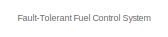
[diagram: root canvas - part 1/2, top left region]
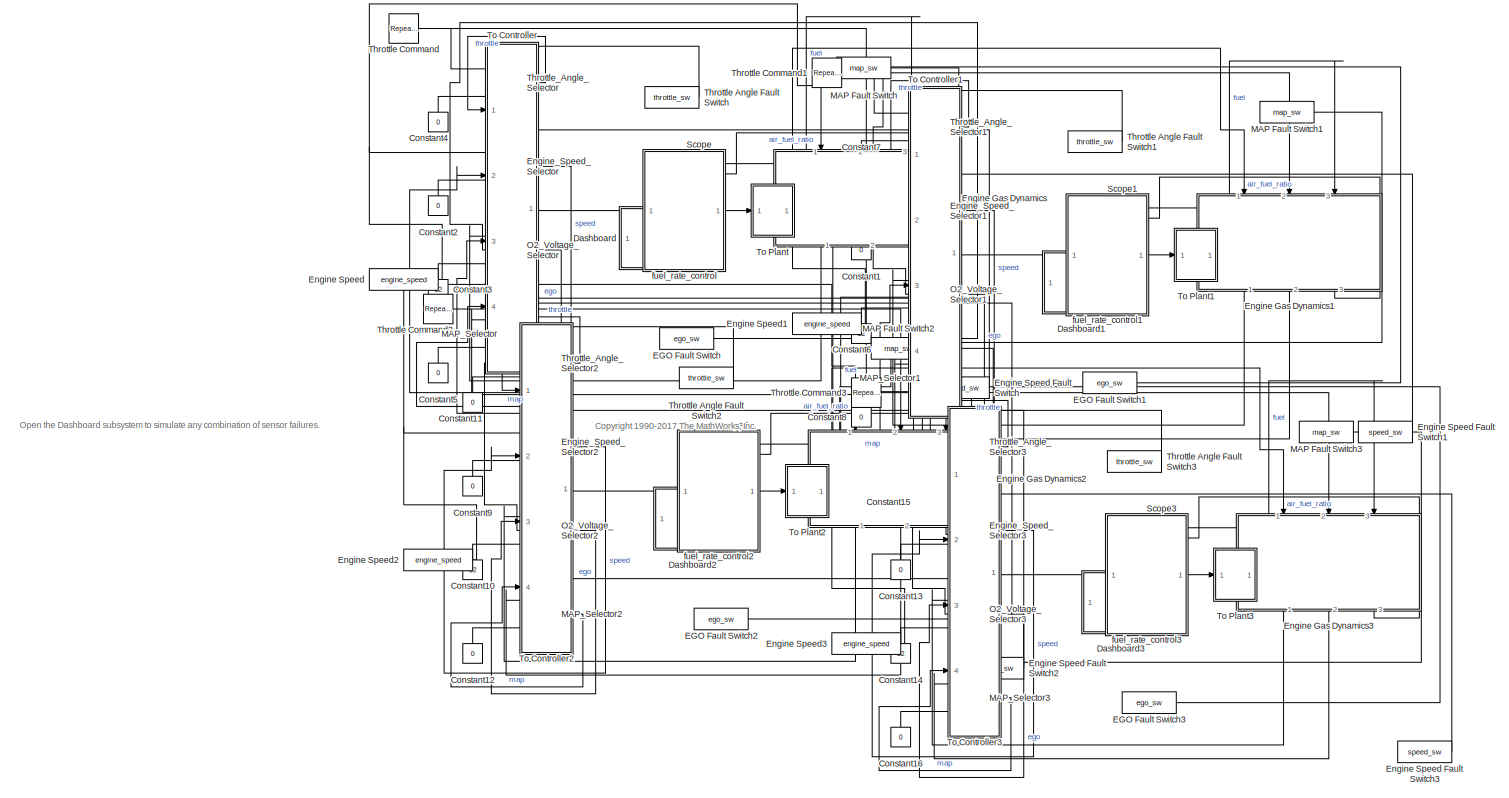
[diagram: root canvas - part 2/2, most of the canvas]
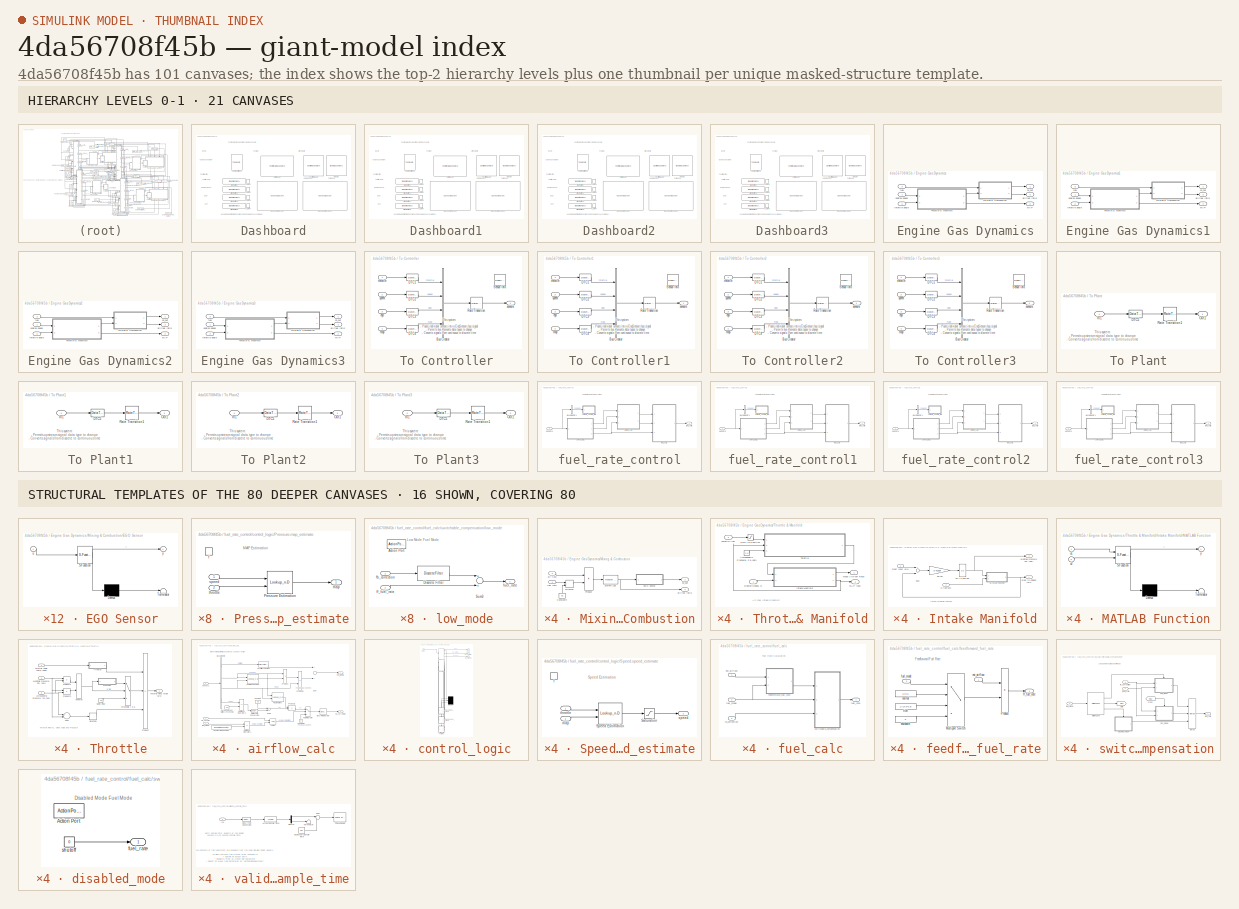
[diagram: thumbnail index - top-2 hierarchy levels (21 canvases) + 16 structural-template representatives of the remaining 80 canvases]
MODEL slx_4da56708f45b
KIND model
CONFIG AbsTol = 1e-6
CONFIG EnableMultiTasking = off
CONFIG FixedStep = 0.001
CONFIG MaxStep = auto
CONFIG MinStep = auto
CONFIG PostLoadFcn = sldemo_fuelsys_data(bdroot,'initialize_data','orig','float');
CONFIG RelTol = 1e-5
CONFIG SampleTimeConstraint = Unconstrained
CONFIG Solver = ode45
CONFIG SolverName = ode45
CONFIG StartTime = 0
CONFIG StopTime = 2000
WORKSPACE source: MAT-file member
WORKSPACE PressEst = [0.806253176324 0.553142316929 0.37151500209 0.277667903103 0.220198954207 0.181288665766 0.153200000489 0.115431020872 0.0913067476324 0.0746519188607 0.0625231108324 0.0533383634277 ... (306 elements, 18x17)]
WORKSPACE PressVect = [0.05 0.1 0.15 0.2 0.25 0.3 0.35 0.4 0.45 0.5 0.55 0.6 ... (19 elements, 1x19)]
BLOCK [Constant] Constant1
  Value = 0
BLOCK [Constant] Constant10
  Value = 12
BLOCK [Constant] Constant11
  Value = 0
BLOCK [Constant] Constant12
  Value = 0
BLOCK [Constant] Constant13
  Value = 0
BLOCK [Constant] Constant14
  Value = 12
BLOCK [Constant] Constant15
  Value = 0
BLOCK [Constant] Constant16
  Value = 0
BLOCK [Constant] Constant2
  Value = 0
BLOCK [Constant] Constant3
  Value = 12
BLOCK [Constant] Constant4
  Value = 0
BLOCK [Constant] Constant5
  Value = 0
BLOCK [Constant] Constant6
  Value = 12
BLOCK [Constant] Constant7
  Value = 0
BLOCK [Constant] Constant8
  Value = 0
BLOCK [Constant] Constant9
  Value = 0
BLOCK [SubSystem] Dashboard
  Ports = []
  RequestExecContextInheritance = off
BLOCK [DashboardScope] Dashboard/Dashboard Scope
  LegendPosition = Hide
  ScaleAtStop = off
  TimeSpan = 500
  WebBlockId = 348
  Ymin = 0
BLOCK [DashboardScope] Dashboard/Dashboard Scope1
  LegendPosition = Hide
  ScaleAtStop = off
  TimeSpan = 500
  WebBlockId = 349
  Ymax = 400
  Ymin = 0
BLOCK [CircularGaugeBlock] Dashboard/Gauge
  LabelPosition = Hide
  ScaleMax = 400
  WebBlockId = 346
BLOCK [SemiCircularGaugeBlock] Dashboard/Half Gauge
  LabelPosition = Hide
  ScaleMax = 3
  WebBlockId = 347
BLOCK [LampBlock] Dashboard/Lamp1
  LabelPosition = Hide
  WebBlockId = 337
BLOCK [LampBlock] Dashboard/Lamp2
  LabelPosition = Hide
  WebBlockId = 338
BLOCK [LampBlock] Dashboard/Lamp3
  LabelPosition = Hide
  WebBlockId = 343
BLOCK [LampBlock] Dashboard/Lamp4
  LabelPosition = Hide
  WebBlockId = 339
BLOCK [QuarterGaugeBlock] Dashboard/Quarter Gauge
  LabelPosition = Hide
  ScaleMax = 20
  WebBlockId = 345
BLOCK [SliderSwitchBlock] Dashboard/Slider Switch
  LabelPosition = Hide
  WebBlockId = 341
BLOCK [SliderSwitchBlock] Dashboard/Slider Switch1
  LabelPosition = Hide
  WebBlockId = 342
BLOCK [SliderSwitchBlock] Dashboard/Slider Switch2
  LabelPosition = Hide
  WebBlockId = 344
BLOCK [SliderSwitchBlock] Dashboard/Slider Switch3
  LabelPosition = Hide
  WebBlockId = 340
BLOCK [ToggleSwitchBlock] Dashboard/Toggle Switch3
  LabelPosition = Hide
  WebBlockId = 336
BLOCK [SubSystem] Dashboard1
  Ports = []
  RequestExecContextInheritance = off
BLOCK [DashboardScope] Dashboard1/Dashboard Scope
  LegendPosition = Hide
  ScaleAtStop = off
  TimeSpan = 500
  WebBlockId = 355
  Ymin = 0
BLOCK [DashboardScope] Dashboard1/Dashboard Scope1
  LegendPosition = Hide
  ScaleAtStop = off
  TimeSpan = 500
  WebBlockId = 356
  Ymax = 400
  Ymin = 0
BLOCK [CircularGaugeBlock] Dashboard1/Gauge
  LabelPosition = Hide
  ScaleMax = 400
  WebBlockId = 357
BLOCK [SemiCircularGaugeBlock] Dashboard1/Half Gauge
  LabelPosition = Hide
  ScaleMax = 3
  WebBlockId = 358
BLOCK [LampBlock] Dashboard1/Lamp1
  LabelPosition = Hide
  WebBlockId = 359
BLOCK [LampBlock] Dashboard1/Lamp2
  LabelPosition = Hide
  WebBlockId = 360
BLOCK [LampBlock] Dashboard1/Lamp3
  LabelPosition = Hide
  WebBlockId = 361
BLOCK [LampBlock] Dashboard1/Lamp4
  LabelPosition = Hide
  WebBlockId = 362
BLOCK [QuarterGaugeBlock] Dashboard1/Quarter Gauge
  LabelPosition = Hide
  ScaleMax = 20
  WebBlockId = 363
BLOCK [SliderSwitchBlock] Dashboard1/Slider Switch
  LabelPosition = Hide
  WebBlockId = 364
BLOCK [SliderSwitchBlock] Dashboard1/Slider Switch1
  LabelPosition = Hide
  WebBlockId = 365
BLOCK [SliderSwitchBlock] Dashboard1/Slider Switch2
  LabelPosition = Hide
  WebBlockId = 366
BLOCK [SliderSwitchBlock] Dashboard1/Slider Switch3
  LabelPosition = Hide
  WebBlockId = 367
BLOCK [ToggleSwitchBlock] Dashboard1/Toggle Switch3
  LabelPosition = Hide
  WebBlockId = 368
BLOCK [SubSystem] Dashboard2
  Ports = []
  RequestExecContextInheritance = off
BLOCK [DashboardScope] Dashboard2/Dashboard Scope
  LegendPosition = Hide
  ScaleAtStop = off
  TimeSpan = 500
  WebBlockId = 551
  Ymin = 0
BLOCK [DashboardScope] Dashboard2/Dashboard Scope1
  LegendPosition = Hide
  ScaleAtStop = off
  TimeSpan = 500
  WebBlockId = 552
  Ymax = 400
  Ymin = 0
BLOCK [CircularGaugeBlock] Dashboard2/Gauge
  LabelPosition = Hide
  ScaleMax = 400
  WebBlockId = 553
BLOCK [SemiCircularGaugeBlock] Dashboard2/Half Gauge
  LabelPosition = Hide
  ScaleMax = 3
  WebBlockId = 554
BLOCK [LampBlock] Dashboard2/Lamp1
  LabelPosition = Hide
  WebBlockId = 555
BLOCK [LampBlock] Dashboard2/Lamp2
  LabelPosition = Hide
  WebBlockId = 556
BLOCK [LampBlock] Dashboard2/Lamp3
  LabelPosition = Hide
  WebBlockId = 557
BLOCK [LampBlock] Dashboard2/Lamp4
  LabelPosition = Hide
  WebBlockId = 558
BLOCK [QuarterGaugeBlock] Dashboard2/Quarter Gauge
  LabelPosition = Hide
  ScaleMax = 20
  WebBlockId = 559
BLOCK [SliderSwitchBlock] Dashboard2/Slider Switch
  LabelPosition = Hide
  WebBlockId = 560
BLOCK [SliderSwitchBlock] Dashboard2/Slider Switch1
  LabelPosition = Hide
  WebBlockId = 561
BLOCK [SliderSwitchBlock] Dashboard2/Slider Switch2
  LabelPosition = Hide
  WebBlockId = 562
BLOCK [SliderSwitchBlock] Dashboard2/Slider Switch3
  LabelPosition = Hide
  WebBlockId = 563
BLOCK [ToggleSwitchBlock] Dashboard2/Toggle Switch3
  LabelPosition = Hide
  WebBlockId = 564
BLOCK [SubSystem] Dashboard3
  Ports = []
  RequestExecContextInheritance = off
BLOCK [DashboardScope] Dashboard3/Dashboard Scope
  LegendPosition = Hide
  ScaleAtStop = off
  TimeSpan = 500
  WebBlockId = 747
  Ymin = 0
BLOCK [DashboardScope] Dashboard3/Dashboard Scope1
  LegendPosition = Hide
  ScaleAtStop = off
  TimeSpan = 500
  WebBlockId = 748
  Ymax = 400
  Ymin = 0
BLOCK [CircularGaugeBlock] Dashboard3/Gauge
  LabelPosition = Hide
  ScaleMax = 400
  WebBlockId = 749
BLOCK [SemiCircularGaugeBlock] Dashboard3/Half Gauge
  LabelPosition = Hide
  ScaleMax = 3
  WebBlockId = 750
BLOCK [LampBlock] Dashboard3/Lamp1
  LabelPosition = Hide
  WebBlockId = 751
BLOCK [LampBlock] Dashboard3/Lamp2
  LabelPosition = Hide
  WebBlockId = 752
BLOCK [LampBlock] Dashboard3/Lamp3
  LabelPosition = Hide
  WebBlockId = 753
BLOCK [LampBlock] Dashboard3/Lamp4
  LabelPosition = Hide
  WebBlockId = 754
BLOCK [QuarterGaugeBlock] Dashboard3/Quarter Gauge
  LabelPosition = Hide
  ScaleMax = 20
  WebBlockId = 755
BLOCK [SliderSwitchBlock] Dashboard3/Slider Switch
  LabelPosition = Hide
  WebBlockId = 756
BLOCK [SliderSwitchBlock] Dashboard3/Slider Switch1
  LabelPosition = Hide
  WebBlockId = 757
BLOCK [SliderSwitchBlock] Dashboard3/Slider Switch2
  LabelPosition = Hide
  WebBlockId = 758
BLOCK [SliderSwitchBlock] Dashboard3/Slider Switch3
  LabelPosition = Hide
  WebBlockId = 759
BLOCK [ToggleSwitchBlock] Dashboard3/Toggle Switch3
  LabelPosition = Hide
  WebBlockId = 760
BLOCK [Constant] EGO Fault Switch
  Value = ego_sw
BLOCK [Constant] EGO Fault Switch1
  Value = ego_sw
BLOCK [Constant] EGO Fault Switch2
  Value = ego_sw
BLOCK [Constant] EGO Fault Switch3
  Value = ego_sw
BLOCK [SubSystem] Engine Gas Dynamics
  Ports = [3, 3]
  RequestExecContextInheritance = off
BLOCK [Outport] Engine Gas Dynamics/MAP
  IconDisplay = Port number
  Port = 2
  Unit = bar
BLOCK [SubSystem] Engine Gas Dynamics/Mixing & Combustion
  Ports = [2, 2]
  RequestExecContextInheritance = off
BLOCK [Constant] Engine Gas Dynamics/Mixing & Combustion/Constant4
  Value = 0.1
BLOCK [SubSystem] Engine Gas Dynamics/Mixing & Combustion/EGO Sensor
  ErrorFcn = Stateflow.Translate.translate
  PermitHierarchicalResolution = ExplicitOnly
  Ports = [1, 1]
  RequestExecContextInheritance = off
  SFBlockType = MATLAB Function
  TreatAsAtomicUnit = on
BLOCK [Demux] Engine Gas Dynamics/Mixing & Combustion/EGO Sensor/ Demux 
  Outputs = 1
  Ports = [1, 1]
BLOCK [S-Function] Engine Gas Dynamics/Mixing & Combustion/EGO Sensor/ SFunction 
  EnableBusSupport = off
  FunctionName = sf_sfun
  PortCounts = [1 2]
  Ports = [1, 2]
  SFcnIsStateOwnerBlock = off
  SFunctionDeploymentMode = off
  Tag = Stateflow S-Function mLarge_MajorAdjust_3 5
BLOCK [Terminator] Engine Gas Dynamics/Mixing & Combustion/EGO Sensor/ Terminator 
BLOCK [Inport] Engine Gas Dynamics/Mixing & Combustion/EGO Sensor/u
  IconDisplay = Port number
BLOCK [Outport] Engine Gas Dynamics/Mixing & Combustion/EGO Sensor/y
  IconDisplay = Port number
BLOCK [MinMax] Engine Gas Dynamics/Mixing & Combustion/MinMax
  Function = max
  Inputs = 2
  Ports = [2, 1]
BLOCK [Product] Engine Gas Dynamics/Mixing & Combustion/Product
  Inputs = */
  Ports = [2, 1]
BLOCK [Reference] Engine Gas Dynamics/Mixing & Combustion/System Lag  REF=simulink_extras/Additional
Linear/Transfer Fcn
(with initial outputs)
  Ports = [1, 1]
  SourceBlock = simulink_extras/Additional\nLinear/Transfer Fcn\n(with initial outputs)
  SourceProductBaseCode = SL
  SourceProductName = Simulink
  SourceType = Transfer Function with Initial Outputs
BLOCK [Inport] Engine Gas Dynamics/Mixing & Combustion/air flow
  IconDisplay = Port number
  Port = 2
  Unit = g/s
BLOCK [Outport] Engine Gas Dynamics/Mixing & Combustion/air//fuel ratio
  IconDisplay = Port number
  Port = 2
  Unit = 1
BLOCK [Inport] Engine Gas Dynamics/Mixing & Combustion/fuel rate
  IconDisplay = Port number
  Unit = g/s
BLOCK [Outport] Engine Gas Dynamics/Mixing & Combustion/o2_out
  IconDisplay = Port number
  Unit = V
BLOCK [SubSystem] Engine Gas Dynamics/Throttle & Manifold
  Ports = [2, 2]
  RequestExecContextInheritance = off
BLOCK [Constant] Engine Gas Dynamics/Throttle & Manifold/Atmospheric Pressure, Pa (bar)
  Value = 1.0
BLOCK [Inport] Engine Gas Dynamics/Throttle & Manifold/Engine Speed, N
  IconDisplay = Port number
  Unit = rad/s
BLOCK [SubSystem] Engine Gas Dynamics/Throttle & Manifold/Intake Manifold
  Ports = [2, 2]
  RequestExecContextInheritance = off
BLOCK [SubSystem] Engine Gas Dynamics/Throttle & Manifold/Intake Manifold/MATLAB Function
  ErrorFcn = Stateflow.Translate.translate
  PermitHierarchicalResolution = ExplicitOnly
  Ports = [2, 1]
  RequestExecContextInheritance = off
  SFBlockType = MATLAB Function
  TreatAsAtomicUnit = on
BLOCK [Demux] Engine Gas Dynamics/Throttle & Manifold/Intake Manifold/MATLAB Function/ Demux 
  Outputs = 1
  Ports = [1, 1]
BLOCK [S-Function] Engine Gas Dynamics/Throttle & Manifold/Intake Manifold/MATLAB Function/ SFunction 
  EnableBusSupport = off
  FunctionName = sf_sfun
  PortCounts = [2 2]
  Ports = [2, 2]
  SFcnIsStateOwnerBlock = off
  SFunctionDeploymentMode = off
  Tag = Stateflow S-Function mLarge_MajorAdjust_3 4
BLOCK [Terminator] Engine Gas Dynamics/Throttle & Manifold/Intake Manifold/MATLAB Function/ Terminator 
BLOCK [Inport] Engine Gas Dynamics/Throttle & Manifold/Intake Manifold/MATLAB Function/u1
  IconDisplay = Port number
BLOCK [Inport] Engine Gas Dynamics/Throttle & Manifold/Intake Manifold/MATLAB Function/u2
  IconDisplay = Port number
  Port = 2
BLOCK [Outport] Engine Gas Dynamics/Throttle & Manifold/Intake Manifold/MATLAB Function/y
  IconDisplay = Port number
BLOCK [Outport] Engine Gas Dynamics/Throttle & Manifold/Intake Manifold/Manifold Pressure, Pm (bar)
  IconDisplay = Port number
  Port = 2
  Unit = bar
BLOCK [Inport] Engine Gas Dynamics/Throttle & Manifold/Intake Manifold/N (rad//sec)
  IconDisplay = Port number
  Port = 2
  Unit = rad/s
BLOCK [Gain] Engine Gas Dynamics/Throttle & Manifold/Intake Manifold/RT//Vm
  Gain = 0.41328
BLOCK [Sum] Engine Gas Dynamics/Throttle & Manifold/Intake Manifold/Sum
  Inputs = +-
  Ports = [2, 1]
BLOCK [Inport] Engine Gas Dynamics/Throttle & Manifold/Intake Manifold/mdot Input (g//s)
  IconDisplay = Port number
  Unit = g/s
BLOCK [Outport] Engine Gas Dynamics/Throttle & Manifold/Intake Manifold/mdot to Cylinder (g//s)
  IconDisplay = Port number
  Unit = g/s
BLOCK [Integrator] Engine Gas Dynamics/Throttle & Manifold/Intake Manifold/p0 = 0.589 bar
  InitialCondition = .589
  Ports = [1, 1]
BLOCK [Saturate] Engine Gas Dynamics/Throttle & Manifold/Limit to Positive
  InputPortMap = u0
  LowerLimit = 0
  Ports = [1, 1]
  UpperLimit = inf
BLOCK [Outport] Engine Gas Dynamics/Throttle & Manifold/MAP (bar)
  IconDisplay = Port number
  Port = 2
  Unit = bar
BLOCK [Outport] Engine Gas Dynamics/Throttle & Manifold/Mass Airflow Rate
  IconDisplay = Port number
  Unit = g/s
BLOCK [SubSystem] Engine Gas Dynamics/Throttle & Manifold/Throttle
  Ports = [3, 1]
  RequestExecContextInheritance = off
BLOCK [Inport] Engine Gas Dynamics/Throttle & Manifold/Throttle Ang.
  IconDisplay = Port number
  Port = 2
  Unit = deg
BLOCK [Inport] Engine Gas Dynamics/Throttle & Manifold/Throttle/Atmospheric Pressure, Pa (bar) 
  IconDisplay = Port number
  Port = 3
  Unit = bar
BLOCK [Inport] Engine Gas Dynamics/Throttle & Manifold/Throttle/Manifold Pressure, Pm (bar)
  IconDisplay = Port number
  Port = 2
  Unit = bar
BLOCK [MinMax] Engine Gas Dynamics/Throttle & Manifold/Throttle/MinMax
  Inputs = 2
  Ports = [2, 1]
BLOCK [Product] Engine Gas Dynamics/Throttle & Manifold/Throttle/Product
  Inputs = 3
  Ports = [3, 1]
BLOCK [Product] Engine Gas Dynamics/Throttle & Manifold/Throttle/Product1
  Inputs = */
  Ports = [2, 1]
BLOCK [Product] Engine Gas Dynamics/Throttle & Manifold/Throttle/Product2
  Inputs = /*
  Ports = [2, 1]
BLOCK [Constant] Engine Gas Dynamics/Throttle & Manifold/Throttle/Sonic Flow 
  Value = 1.0
BLOCK [Sum] Engine Gas Dynamics/Throttle & Manifold/Throttle/Sum
  Inputs = +-
  Ports = [2, 1]
BLOCK [Inport] Engine Gas Dynamics/Throttle & Manifold/Throttle/Throttle Angle, theta (deg)
  IconDisplay = Port number
  Unit = deg
BLOCK [Outport] Engine Gas Dynamics/Throttle & Manifold/Throttle/Throttle Flow, mdot (g//s)
  IconDisplay = Port number
  Unit = g/s
BLOCK [Signum] Engine Gas Dynamics/Throttle & Manifold/Throttle/direction
BLOCK [SubSystem] Engine Gas Dynamics/Throttle & Manifold/Throttle/f(theta)
  ErrorFcn = Stateflow.Translate.translate
  PermitHierarchicalResolution = ExplicitOnly
  Ports = [1, 1]
  RequestExecContextInheritance = off
  SFBlockType = MATLAB Function
  TreatAsAtomicUnit = on
BLOCK [Demux] Engine Gas Dynamics/Throttle & Manifold/Throttle/f(theta)/ Demux 
  Outputs = 1
  Ports = [1, 1]
BLOCK [S-Function] Engine Gas Dynamics/Throttle & Manifold/Throttle/f(theta)/ SFunction 
  EnableBusSupport = off
  FunctionName = sf_sfun
  PortCounts = [1 2]
  Ports = [1, 2]
  SFcnIsStateOwnerBlock = off
  SFunctionDeploymentMode = off
  Tag = Stateflow S-Function mLarge_MajorAdjust_3 2
BLOCK [Terminator] Engine Gas Dynamics/Throttle & Manifold/Throttle/f(theta)/ Terminator 
BLOCK [Inport] Engine Gas Dynamics/Throttle & Manifold/Throttle/f(theta)/u
  IconDisplay = Port number
BLOCK [Outport] Engine Gas Dynamics/Throttle & Manifold/Throttle/f(theta)/y
  IconDisplay = Port number
BLOCK [SubSystem] Engine Gas Dynamics/Throttle & Manifold/Throttle/g(pratio)
  ErrorFcn = Stateflow.Translate.translate
  PermitHierarchicalResolution = ExplicitOnly
  Ports = [1, 1]
  RequestExecContextInheritance = off
  SFBlockType = MATLAB Function
  TreatAsAtomicUnit = on
BLOCK [Demux] Engine Gas Dynamics/Throttle & Manifold/Throttle/g(pratio)/ Demux 
  Outputs = 1
  Ports = [1, 1]
BLOCK [S-Function] Engine Gas Dynamics/Throttle & Manifold/Throttle/g(pratio)/ SFunction 
  EnableBusSupport = off
  FunctionName = sf_sfun
  PortCounts = [1 2]
  Ports = [1, 2]
  SFcnIsStateOwnerBlock = off
  SFunctionDeploymentMode = off
  Tag = Stateflow S-Function mLarge_MajorAdjust_3 3
BLOCK [Terminator] Engine Gas Dynamics/Throttle & Manifold/Throttle/g(pratio)/ Terminator 
BLOCK [Inport] Engine Gas Dynamics/Throttle & Manifold/Throttle/g(pratio)/u
  IconDisplay = Port number
BLOCK [Outport] Engine Gas Dynamics/Throttle & Manifold/Throttle/g(pratio)/y
  IconDisplay = Port number
BLOCK [Switch] Engine Gas Dynamics/Throttle & Manifold/Throttle/threshold = 0.5
  Threshold = 0.5
BLOCK [Outport] Engine Gas Dynamics/air//fuel ratio
  IconDisplay = Port number
  Port = 3
  Unit = 1
BLOCK [Inport] Engine Gas Dynamics/engine speed
  IconDisplay = Port number
  Unit = rad/s
BLOCK [Inport] Engine Gas Dynamics/fuel
  IconDisplay = Port number
  Port = 3
  Unit = g/s
BLOCK [Outport] Engine Gas Dynamics/o2_out
  IconDisplay = Port number
  Unit = V
BLOCK [Inport] Engine Gas Dynamics/throttle angle
  IconDisplay = Port number
  Port = 2
  Unit = deg
BLOCK [SubSystem] Engine Gas Dynamics1
  Ports = [3, 3]
  RequestExecContextInheritance = off
BLOCK [Outport] Engine Gas Dynamics1/MAP
  IconDisplay = Port number
  Port = 2
  Unit = bar
BLOCK [SubSystem] Engine Gas Dynamics1/Mixing & Combustion
  Ports = [2, 2]
  RequestExecContextInheritance = off
BLOCK [Constant] Engine Gas Dynamics1/Mixing & Combustion/Constant4
  Value = 0.1
BLOCK [SubSystem] Engine Gas Dynamics1/Mixing & Combustion/EGO Sensor
  ErrorFcn = Stateflow.Translate.translate
  PermitHierarchicalResolution = ExplicitOnly
  Ports = [1, 1]
  RequestExecContextInheritance = off
  SFBlockType = MATLAB Function
  TreatAsAtomicUnit = on
BLOCK [Demux] Engine Gas Dynamics1/Mixing & Combustion/EGO Sensor/ Demux 
  Outputs = 1
  Ports = [1, 1]
BLOCK [S-Function] Engine Gas Dynamics1/Mixing & Combustion/EGO Sensor/ SFunction 
  EnableBusSupport = off
  FunctionName = sf_sfun
  PortCounts = [1 2]
  Ports = [1, 2]
  SFcnIsStateOwnerBlock = off
  SFunctionDeploymentMode = off
  Tag = Stateflow S-Function mLarge_MajorAdjust_3 6
BLOCK [Terminator] Engine Gas Dynamics1/Mixing & Combustion/EGO Sensor/ Terminator 
BLOCK [Inport] Engine Gas Dynamics1/Mixing & Combustion/EGO Sensor/u
  IconDisplay = Port number
BLOCK [Outport] Engine Gas Dynamics1/Mixing & Combustion/EGO Sensor/y
  IconDisplay = Port number
BLOCK [MinMax] Engine Gas Dynamics1/Mixing & Combustion/MinMax
  Function = max
  Inputs = 2
  Ports = [2, 1]
BLOCK [Product] Engine Gas Dynamics1/Mixing & Combustion/Product
  Inputs = */
  Ports = [2, 1]
BLOCK [Reference] Engine Gas Dynamics1/Mixing & Combustion/System Lag  REF=simulink_extras/Additional
Linear/Transfer Fcn
(with initial outputs)
  Ports = [1, 1]
  SourceBlock = simulink_extras/Additional\nLinear/Transfer Fcn\n(with initial outputs)
  SourceProductBaseCode = SL
  SourceProductName = Simulink
  SourceType = Transfer Function with Initial Outputs
BLOCK [Inport] Engine Gas Dynamics1/Mixing & Combustion/air flow
  IconDisplay = Port number
  Port = 2
  Unit = g/s
BLOCK [Outport] Engine Gas Dynamics1/Mixing & Combustion/air//fuel ratio
  IconDisplay = Port number
  Port = 2
  Unit = 1
BLOCK [Inport] Engine Gas Dynamics1/Mixing & Combustion/fuel rate
  IconDisplay = Port number
  Unit = g/s
BLOCK [Outport] Engine Gas Dynamics1/Mixing & Combustion/o2_out
  IconDisplay = Port number
  Unit = V
BLOCK [SubSystem] Engine Gas Dynamics1/Throttle & Manifold
  Ports = [2, 2]
  RequestExecContextInheritance = off
BLOCK [Constant] Engine Gas Dynamics1/Throttle & Manifold/Atmospheric Pressure, Pa (bar)
  Value = 1.0
BLOCK [Inport] Engine Gas Dynamics1/Throttle & Manifold/Engine Speed, N
  IconDisplay = Port number
  Unit = rad/s
BLOCK [SubSystem] Engine Gas Dynamics1/Throttle & Manifold/Intake Manifold
  Ports = [2, 2]
  RequestExecContextInheritance = off
BLOCK [SubSystem] Engine Gas Dynamics1/Throttle & Manifold/Intake Manifold/MATLAB Function
  ErrorFcn = Stateflow.Translate.translate
  PermitHierarchicalResolution = ExplicitOnly
  Ports = [2, 1]
  RequestExecContextInheritance = off
  SFBlockType = MATLAB Function
  TreatAsAtomicUnit = on
BLOCK [Demux] Engine Gas Dynamics1/Throttle & Manifold/Intake Manifold/MATLAB Function/ Demux 
  Outputs = 1
  Ports = [1, 1]
BLOCK [S-Function] Engine Gas Dynamics1/Throttle & Manifold/Intake Manifold/MATLAB Function/ SFunction 
  EnableBusSupport = off
  FunctionName = sf_sfun
  PortCounts = [2 2]
  Ports = [2, 2]
  SFcnIsStateOwnerBlock = off
  SFunctionDeploymentMode = off
  Tag = Stateflow S-Function mLarge_MajorAdjust_3 7
BLOCK [Terminator] Engine Gas Dynamics1/Throttle & Manifold/Intake Manifold/MATLAB Function/ Terminator 
BLOCK [Inport] Engine Gas Dynamics1/Throttle & Manifold/Intake Manifold/MATLAB Function/u1
  IconDisplay = Port number
BLOCK [Inport] Engine Gas Dynamics1/Throttle & Manifold/Intake Manifold/MATLAB Function/u2
  IconDisplay = Port number
  Port = 2
BLOCK [Outport] Engine Gas Dynamics1/Throttle & Manifold/Intake Manifold/MATLAB Function/y
  IconDisplay = Port number
BLOCK [Outport] Engine Gas Dynamics1/Throttle & Manifold/Intake Manifold/Manifold Pressure, Pm (bar)
  IconDisplay = Port number
  Port = 2
  Unit = bar
BLOCK [Inport] Engine Gas Dynamics1/Throttle & Manifold/Intake Manifold/N (rad//sec)
  IconDisplay = Port number
  Port = 2
  Unit = rad/s
BLOCK [Gain] Engine Gas Dynamics1/Throttle & Manifold/Intake Manifold/RT//Vm
  Gain = 0.41328
BLOCK [Sum] Engine Gas Dynamics1/Throttle & Manifold/Intake Manifold/Sum
  Inputs = +-
  Ports = [2, 1]
BLOCK [Inport] Engine Gas Dynamics1/Throttle & Manifold/Intake Manifold/mdot Input (g//s)
  IconDisplay = Port number
  Unit = g/s
BLOCK [Outport] Engine Gas Dynamics1/Throttle & Manifold/Intake Manifold/mdot to Cylinder (g//s)
  IconDisplay = Port number
  Unit = g/s
BLOCK [Integrator] Engine Gas Dynamics1/Throttle & Manifold/Intake Manifold/p0 = 0.589 bar
  InitialCondition = .589
  Ports = [1, 1]
BLOCK [Saturate] Engine Gas Dynamics1/Throttle & Manifold/Limit to Positive
  InputPortMap = u0
  LowerLimit = 0
  Ports = [1, 1]
  UpperLimit = inf
BLOCK [Outport] Engine Gas Dynamics1/Throttle & Manifold/MAP (bar)
  IconDisplay = Port number
  Port = 2
  Unit = bar
BLOCK [Outport] Engine Gas Dynamics1/Throttle & Manifold/Mass Airflow Rate
  IconDisplay = Port number
  Unit = g/s
BLOCK [SubSystem] Engine Gas Dynamics1/Throttle & Manifold/Throttle
  Ports = [3, 1]
  RequestExecContextInheritance = off
BLOCK [Inport] Engine Gas Dynamics1/Throttle & Manifold/Throttle Ang.
  IconDisplay = Port number
  Port = 2
  Unit = deg
BLOCK [Inport] Engine Gas Dynamics1/Throttle & Manifold/Throttle/Atmospheric Pressure, Pa (bar) 
  IconDisplay = Port number
  Port = 3
  Unit = bar
BLOCK [Inport] Engine Gas Dynamics1/Throttle & Manifold/Throttle/Manifold Pressure, Pm (bar)
  IconDisplay = Port number
  Port = 2
  Unit = bar
BLOCK [MinMax] Engine Gas Dynamics1/Throttle & Manifold/Throttle/MinMax
  Inputs = 2
  Ports = [2, 1]
BLOCK [Product] Engine Gas Dynamics1/Throttle & Manifold/Throttle/Product
  Inputs = 3
  Ports = [3, 1]
BLOCK [Product] Engine Gas Dynamics1/Throttle & Manifold/Throttle/Product1
  Inputs = */
  Ports = [2, 1]
BLOCK [Product] Engine Gas Dynamics1/Throttle & Manifold/Throttle/Product2
  Inputs = /*
  Ports = [2, 1]
BLOCK [Constant] Engine Gas Dynamics1/Throttle & Manifold/Throttle/Sonic Flow 
  Value = 1.0
BLOCK [Sum] Engine Gas Dynamics1/Throttle & Manifold/Throttle/Sum
  Inputs = +-
  Ports = [2, 1]
BLOCK [Inport] Engine Gas Dynamics1/Throttle & Manifold/Throttle/Throttle Angle, theta (deg)
  IconDisplay = Port number
  Unit = deg
BLOCK [Outport] Engine Gas Dynamics1/Throttle & Manifold/Throttle/Throttle Flow, mdot (g//s)
  IconDisplay = Port number
  Unit = g/s
BLOCK [Signum] Engine Gas Dynamics1/Throttle & Manifold/Throttle/direction
BLOCK [SubSystem] Engine Gas Dynamics1/Throttle & Manifold/Throttle/f(theta)
  ErrorFcn = Stateflow.Translate.translate
  PermitHierarchicalResolution = ExplicitOnly
  Ports = [1, 1]
  RequestExecContextInheritance = off
  SFBlockType = MATLAB Function
  TreatAsAtomicUnit = on
BLOCK [Demux] Engine Gas Dynamics1/Throttle & Manifold/Throttle/f(theta)/ Demux 
  Outputs = 1
  Ports = [1, 1]
BLOCK [S-Function] Engine Gas Dynamics1/Throttle & Manifold/Throttle/f(theta)/ SFunction 
  EnableBusSupport = off
  FunctionName = sf_sfun
  PortCounts = [1 2]
  Ports = [1, 2]
  SFcnIsStateOwnerBlock = off
  SFunctionDeploymentMode = off
  Tag = Stateflow S-Function mLarge_MajorAdjust_3 8
BLOCK [Terminator] Engine Gas Dynamics1/Throttle & Manifold/Throttle/f(theta)/ Terminator 
BLOCK [Inport] Engine Gas Dynamics1/Throttle & Manifold/Throttle/f(theta)/u
  IconDisplay = Port number
BLOCK [Outport] Engine Gas Dynamics1/Throttle & Manifold/Throttle/f(theta)/y
  IconDisplay = Port number
BLOCK [SubSystem] Engine Gas Dynamics1/Throttle & Manifold/Throttle/g(pratio)
  ErrorFcn = Stateflow.Translate.translate
  PermitHierarchicalResolution = ExplicitOnly
  Ports = [1, 1]
  RequestExecContextInheritance = off
  SFBlockType = MATLAB Function
  TreatAsAtomicUnit = on
BLOCK [Demux] Engine Gas Dynamics1/Throttle & Manifold/Throttle/g(pratio)/ Demux 
  Outputs = 1
  Ports = [1, 1]
BLOCK [S-Function] Engine Gas Dynamics1/Throttle & Manifold/Throttle/g(pratio)/ SFunction 
  EnableBusSupport = off
  FunctionName = sf_sfun
  PortCounts = [1 2]
  Ports = [1, 2]
  SFcnIsStateOwnerBlock = off
  SFunctionDeploymentMode = off
  Tag = Stateflow S-Function mLarge_MajorAdjust_3 9
BLOCK [Terminator] Engine Gas Dynamics1/Throttle & Manifold/Throttle/g(pratio)/ Terminator 
BLOCK [Inport] Engine Gas Dynamics1/Throttle & Manifold/Throttle/g(pratio)/u
  IconDisplay = Port number
BLOCK [Outport] Engine Gas Dynamics1/Throttle & Manifold/Throttle/g(pratio)/y
  IconDisplay = Port number
BLOCK [Switch] Engine Gas Dynamics1/Throttle & Manifold/Throttle/threshold = 0.5
  Threshold = 0.5
BLOCK [Outport] Engine Gas Dynamics1/air//fuel ratio
  IconDisplay = Port number
  Port = 3
  Unit = 1
BLOCK [Inport] Engine Gas Dynamics1/engine speed
  IconDisplay = Port number
  Unit = rad/s
BLOCK [Inport] Engine Gas Dynamics1/fuel
  IconDisplay = Port number
  Port = 3
  Unit = g/s
BLOCK [Outport] Engine Gas Dynamics1/o2_out
  IconDisplay = Port number
  Unit = V
BLOCK [Inport] Engine Gas Dynamics1/throttle angle
  IconDisplay = Port number
  Port = 2
  Unit = deg
BLOCK [SubSystem] Engine Gas Dynamics2
  Ports = [3, 3]
  RequestExecContextInheritance = off
BLOCK [Outport] Engine Gas Dynamics2/MAP
  IconDisplay = Port number
  Port = 2
  Unit = bar
BLOCK [SubSystem] Engine Gas Dynamics2/Mixing & Combustion
  Ports = [2, 2]
  RequestExecContextInheritance = off
BLOCK [Constant] Engine Gas Dynamics2/Mixing & Combustion/Constant4
  Value = 0.1
BLOCK [SubSystem] Engine Gas Dynamics2/Mixing & Combustion/EGO Sensor
  ErrorFcn = Stateflow.Translate.translate
  PermitHierarchicalResolution = ExplicitOnly
  Ports = [1, 1]
  RequestExecContextInheritance = off
  SFBlockType = MATLAB Function
  TreatAsAtomicUnit = on
BLOCK [Demux] Engine Gas Dynamics2/Mixing & Combustion/EGO Sensor/ Demux 
  Outputs = 1
  Ports = [1, 1]
BLOCK [S-Function] Engine Gas Dynamics2/Mixing & Combustion/EGO Sensor/ SFunction 
  EnableBusSupport = off
  FunctionName = sf_sfun
  PortCounts = [1 2]
  Ports = [1, 2]
  SFcnIsStateOwnerBlock = off
  SFunctionDeploymentMode = off
  Tag = Stateflow S-Function mLarge_MajorAdjust_3 11
BLOCK [Terminator] Engine Gas Dynamics2/Mixing & Combustion/EGO Sensor/ Terminator 
BLOCK [Inport] Engine Gas Dynamics2/Mixing & Combustion/EGO Sensor/u
  IconDisplay = Port number
BLOCK [Outport] Engine Gas Dynamics2/Mixing & Combustion/EGO Sensor/y
  IconDisplay = Port number
BLOCK [MinMax] Engine Gas Dynamics2/Mixing & Combustion/MinMax
  Function = max
  Inputs = 2
  Ports = [2, 1]
BLOCK [Product] Engine Gas Dynamics2/Mixing & Combustion/Product
  Inputs = */
  Ports = [2, 1]
BLOCK [Reference] Engine Gas Dynamics2/Mixing & Combustion/System Lag  REF=simulink_extras/Additional
Linear/Transfer Fcn
(with initial outputs)
  Ports = [1, 1]
  SourceBlock = simulink_extras/Additional\nLinear/Transfer Fcn\n(with initial outputs)
  SourceProductBaseCode = SL
  SourceProductName = Simulink
  SourceType = Transfer Function with Initial Outputs
BLOCK [Inport] Engine Gas Dynamics2/Mixing & Combustion/air flow
  IconDisplay = Port number
  Port = 2
  Unit = g/s
BLOCK [Outport] Engine Gas Dynamics2/Mixing & Combustion/air//fuel ratio
  IconDisplay = Port number
  Port = 2
  Unit = 1
BLOCK [Inport] Engine Gas Dynamics2/Mixing & Combustion/fuel rate
  IconDisplay = Port number
  Unit = g/s
BLOCK [Outport] Engine Gas Dynamics2/Mixing & Combustion/o2_out
  IconDisplay = Port number
  Unit = V
BLOCK [SubSystem] Engine Gas Dynamics2/Throttle & Manifold
  Ports = [2, 2]
  RequestExecContextInheritance = off
BLOCK [Constant] Engine Gas Dynamics2/Throttle & Manifold/Atmospheric Pressure, Pa (bar)
  Value = 1.0
BLOCK [Inport] Engine Gas Dynamics2/Throttle & Manifold/Engine Speed, N
  IconDisplay = Port number
  Unit = rad/s
BLOCK [SubSystem] Engine Gas Dynamics2/Throttle & Manifold/Intake Manifold
  Ports = [2, 2]
  RequestExecContextInheritance = off
BLOCK [SubSystem] Engine Gas Dynamics2/Throttle & Manifold/Intake Manifold/MATLAB Function
  ErrorFcn = Stateflow.Translate.translate
  PermitHierarchicalResolution = ExplicitOnly
  Ports = [2, 1]
  RequestExecContextInheritance = off
  SFBlockType = MATLAB Function
  TreatAsAtomicUnit = on
BLOCK [Demux] Engine Gas Dynamics2/Throttle & Manifold/Intake Manifold/MATLAB Function/ Demux 
  Outputs = 1
  Ports = [1, 1]
BLOCK [S-Function] Engine Gas Dynamics2/Throttle & Manifold/Intake Manifold/MATLAB Function/ SFunction 
  EnableBusSupport = off
  FunctionName = sf_sfun
  PortCounts = [2 2]
  Ports = [2, 2]
  SFcnIsStateOwnerBlock = off
  SFunctionDeploymentMode = off
  Tag = Stateflow S-Function mLarge_MajorAdjust_3 12
BLOCK [Terminator] Engine Gas Dynamics2/Throttle & Manifold/Intake Manifold/MATLAB Function/ Terminator 
BLOCK [Inport] Engine Gas Dynamics2/Throttle & Manifold/Intake Manifold/MATLAB Function/u1
  IconDisplay = Port number
BLOCK [Inport] Engine Gas Dynamics2/Throttle & Manifold/Intake Manifold/MATLAB Function/u2
  IconDisplay = Port number
  Port = 2
BLOCK [Outport] Engine Gas Dynamics2/Throttle & Manifold/Intake Manifold/MATLAB Function/y
  IconDisplay = Port number
BLOCK [Outport] Engine Gas Dynamics2/Throttle & Manifold/Intake Manifold/Manifold Pressure, Pm (bar)
  IconDisplay = Port number
  Port = 2
  Unit = bar
BLOCK [Inport] Engine Gas Dynamics2/Throttle & Manifold/Intake Manifold/N (rad//sec)
  IconDisplay = Port number
  Port = 2
  Unit = rad/s
BLOCK [Gain] Engine Gas Dynamics2/Throttle & Manifold/Intake Manifold/RT//Vm
  Gain = 0.41328
BLOCK [Sum] Engine Gas Dynamics2/Throttle & Manifold/Intake Manifold/Sum
  Inputs = +-
  Ports = [2, 1]
BLOCK [Inport] Engine Gas Dynamics2/Throttle & Manifold/Intake Manifold/mdot Input (g//s)
  IconDisplay = Port number
  Unit = g/s
BLOCK [Outport] Engine Gas Dynamics2/Throttle & Manifold/Intake Manifold/mdot to Cylinder (g//s)
  IconDisplay = Port number
  Unit = g/s
BLOCK [Integrator] Engine Gas Dynamics2/Throttle & Manifold/Intake Manifold/p0 = 0.589 bar
  InitialCondition = .589
  Ports = [1, 1]
BLOCK [Saturate] Engine Gas Dynamics2/Throttle & Manifold/Limit to Positive
  InputPortMap = u0
  LowerLimit = 0
  Ports = [1, 1]
  UpperLimit = inf
BLOCK [Outport] Engine Gas Dynamics2/Throttle & Manifold/MAP (bar)
  IconDisplay = Port number
  Port = 2
  Unit = bar
BLOCK [Outport] Engine Gas Dynamics2/Throttle & Manifold/Mass Airflow Rate
  IconDisplay = Port number
  Unit = g/s
BLOCK [SubSystem] Engine Gas Dynamics2/Throttle & Manifold/Throttle
  Ports = [3, 1]
  RequestExecContextInheritance = off
BLOCK [Inport] Engine Gas Dynamics2/Throttle & Manifold/Throttle Ang.
  IconDisplay = Port number
  Port = 2
  Unit = deg
BLOCK [Inport] Engine Gas Dynamics2/Throttle & Manifold/Throttle/Atmospheric Pressure, Pa (bar) 
  IconDisplay = Port number
  Port = 3
  Unit = bar
BLOCK [Inport] Engine Gas Dynamics2/Throttle & Manifold/Throttle/Manifold Pressure, Pm (bar)
  IconDisplay = Port number
  Port = 2
  Unit = bar
BLOCK [MinMax] Engine Gas Dynamics2/Throttle & Manifold/Throttle/MinMax
  Inputs = 2
  Ports = [2, 1]
BLOCK [Product] Engine Gas Dynamics2/Throttle & Manifold/Throttle/Product
  Inputs = 3
  Ports = [3, 1]
BLOCK [Product] Engine Gas Dynamics2/Throttle & Manifold/Throttle/Product1
  Inputs = */
  Ports = [2, 1]
BLOCK [Product] Engine Gas Dynamics2/Throttle & Manifold/Throttle/Product2
  Inputs = /*
  Ports = [2, 1]
BLOCK [Constant] Engine Gas Dynamics2/Throttle & Manifold/Throttle/Sonic Flow 
  Value = 1.0
BLOCK [Sum] Engine Gas Dynamics2/Throttle & Manifold/Throttle/Sum
  Inputs = +-
  Ports = [2, 1]
BLOCK [Inport] Engine Gas Dynamics2/Throttle & Manifold/Throttle/Throttle Angle, theta (deg)
  IconDisplay = Port number
  Unit = deg
BLOCK [Outport] Engine Gas Dynamics2/Throttle & Manifold/Throttle/Throttle Flow, mdot (g//s)
  IconDisplay = Port number
  Unit = g/s
BLOCK [Signum] Engine Gas Dynamics2/Throttle & Manifold/Throttle/direction
BLOCK [SubSystem] Engine Gas Dynamics2/Throttle & Manifold/Throttle/f(theta)
  ErrorFcn = Stateflow.Translate.translate
  PermitHierarchicalResolution = ExplicitOnly
  Ports = [1, 1]
  RequestExecContextInheritance = off
  SFBlockType = MATLAB Function
  TreatAsAtomicUnit = on
BLOCK [Demux] Engine Gas Dynamics2/Throttle & Manifold/Throttle/f(theta)/ Demux 
  Outputs = 1
  Ports = [1, 1]
BLOCK [S-Function] Engine Gas Dynamics2/Throttle & Manifold/Throttle/f(theta)/ SFunction 
  EnableBusSupport = off
  FunctionName = sf_sfun
  PortCounts = [1 2]
  Ports = [1, 2]
  SFcnIsStateOwnerBlock = off
  SFunctionDeploymentMode = off
  Tag = Stateflow S-Function mLarge_MajorAdjust_3 13
BLOCK [Terminator] Engine Gas Dynamics2/Throttle & Manifold/Throttle/f(theta)/ Terminator 
BLOCK [Inport] Engine Gas Dynamics2/Throttle & Manifold/Throttle/f(theta)/u
  IconDisplay = Port number
BLOCK [Outport] Engine Gas Dynamics2/Throttle & Manifold/Throttle/f(theta)/y
  IconDisplay = Port number
BLOCK [SubSystem] Engine Gas Dynamics2/Throttle & Manifold/Throttle/g(pratio)
  ErrorFcn = Stateflow.Translate.translate
  PermitHierarchicalResolution = ExplicitOnly
  Ports = [1, 1]
  RequestExecContextInheritance = off
  SFBlockType = MATLAB Function
  TreatAsAtomicUnit = on
BLOCK [Demux] Engine Gas Dynamics2/Throttle & Manifold/Throttle/g(pratio)/ Demux 
  Outputs = 1
  Ports = [1, 1]
BLOCK [S-Function] Engine Gas Dynamics2/Throttle & Manifold/Throttle/g(pratio)/ SFunction 
  EnableBusSupport = off
  FunctionName = sf_sfun
  PortCounts = [1 2]
  Ports = [1, 2]
  SFcnIsStateOwnerBlock = off
  SFunctionDeploymentMode = off
  Tag = Stateflow S-Function mLarge_MajorAdjust_3 14
BLOCK [Terminator] Engine Gas Dynamics2/Throttle & Manifold/Throttle/g(pratio)/ Terminator 
BLOCK [Inport] Engine Gas Dynamics2/Throttle & Manifold/Throttle/g(pratio)/u
  IconDisplay = Port number
BLOCK [Outport] Engine Gas Dynamics2/Throttle & Manifold/Throttle/g(pratio)/y
  IconDisplay = Port number
BLOCK [Switch] Engine Gas Dynamics2/Throttle & Manifold/Throttle/threshold = 0.5
  Threshold = 0.5
BLOCK [Outport] Engine Gas Dynamics2/air//fuel ratio
  IconDisplay = Port number
  Port = 3
  Unit = 1
BLOCK [Inport] Engine Gas Dynamics2/engine speed
  IconDisplay = Port number
  Unit = rad/s
BLOCK [Inport] Engine Gas Dynamics2/fuel
  IconDisplay = Port number
  Port = 3
  Unit = g/s
BLOCK [Outport] Engine Gas Dynamics2/o2_out
  IconDisplay = Port number
  Unit = V
BLOCK [Inport] Engine Gas Dynamics2/throttle angle
  IconDisplay = Port number
  Port = 2
  Unit = deg
BLOCK [SubSystem] Engine Gas Dynamics3
  Ports = [3, 3]
  RequestExecContextInheritance = off
BLOCK [Outport] Engine Gas Dynamics3/MAP
  IconDisplay = Port number
  Port = 2
  Unit = bar
BLOCK [SubSystem] Engine Gas Dynamics3/Mixing & Combustion
  Ports = [2, 2]
  RequestExecContextInheritance = off
BLOCK [Constant] Engine Gas Dynamics3/Mixing & Combustion/Constant4
  Value = 0.1
BLOCK [SubSystem] Engine Gas Dynamics3/Mixing & Combustion/EGO Sensor
  ErrorFcn = Stateflow.Translate.translate
  PermitHierarchicalResolution = ExplicitOnly
  Ports = [1, 1]
  RequestExecContextInheritance = off
  SFBlockType = MATLAB Function
  TreatAsAtomicUnit = on
BLOCK [Demux] Engine Gas Dynamics3/Mixing & Combustion/EGO Sensor/ Demux 
  Outputs = 1
  Ports = [1, 1]
BLOCK [S-Function] Engine Gas Dynamics3/Mixing & Combustion/EGO Sensor/ SFunction 
  EnableBusSupport = off
  FunctionName = sf_sfun
  PortCounts = [1 2]
  Ports = [1, 2]
  SFcnIsStateOwnerBlock = off
  SFunctionDeploymentMode = off
  Tag = Stateflow S-Function mLarge_MajorAdjust_3 16
BLOCK [Terminator] Engine Gas Dynamics3/Mixing & Combustion/EGO Sensor/ Terminator 
BLOCK [Inport] Engine Gas Dynamics3/Mixing & Combustion/EGO Sensor/u
  IconDisplay = Port number
BLOCK [Outport] Engine Gas Dynamics3/Mixing & Combustion/EGO Sensor/y
  IconDisplay = Port number
BLOCK [MinMax] Engine Gas Dynamics3/Mixing & Combustion/MinMax
  Function = max
  Inputs = 2
  Ports = [2, 1]
BLOCK [Product] Engine Gas Dynamics3/Mixing & Combustion/Product
  Inputs = */
  Ports = [2, 1]
BLOCK [Reference] Engine Gas Dynamics3/Mixing & Combustion/System Lag  REF=simulink_extras/Additional
Linear/Transfer Fcn
(with initial outputs)
  Ports = [1, 1]
  SourceBlock = simulink_extras/Additional\nLinear/Transfer Fcn\n(with initial outputs)
  SourceProductBaseCode = SL
  SourceProductName = Simulink
  SourceType = Transfer Function with Initial Outputs
BLOCK [Inport] Engine Gas Dynamics3/Mixing & Combustion/air flow
  IconDisplay = Port number
  Port = 2
  Unit = g/s
BLOCK [Outport] Engine Gas Dynamics3/Mixing & Combustion/air//fuel ratio
  IconDisplay = Port number
  Port = 2
  Unit = 1
BLOCK [Inport] Engine Gas Dynamics3/Mixing & Combustion/fuel rate
  IconDisplay = Port number
  Unit = g/s
BLOCK [Outport] Engine Gas Dynamics3/Mixing & Combustion/o2_out
  IconDisplay = Port number
  Unit = V
BLOCK [SubSystem] Engine Gas Dynamics3/Throttle & Manifold
  Ports = [2, 2]
  RequestExecContextInheritance = off
BLOCK [Constant] Engine Gas Dynamics3/Throttle & Manifold/Atmospheric Pressure, Pa (bar)
  Value = 1.0
BLOCK [Inport] Engine Gas Dynamics3/Throttle & Manifold/Engine Speed, N
  IconDisplay = Port number
  Unit = rad/s
BLOCK [SubSystem] Engine Gas Dynamics3/Throttle & Manifold/Intake Manifold
  Ports = [2, 2]
  RequestExecContextInheritance = off
BLOCK [SubSystem] Engine Gas Dynamics3/Throttle & Manifold/Intake Manifold/MATLAB Function
  ErrorFcn = Stateflow.Translate.translate
  PermitHierarchicalResolution = ExplicitOnly
  Ports = [2, 1]
  RequestExecContextInheritance = off
  SFBlockType = MATLAB Function
  TreatAsAtomicUnit = on
BLOCK [Demux] Engine Gas Dynamics3/Throttle & Manifold/Intake Manifold/MATLAB Function/ Demux 
  Outputs = 1
  Ports = [1, 1]
BLOCK [S-Function] Engine Gas Dynamics3/Throttle & Manifold/Intake Manifold/MATLAB Function/ SFunction 
  EnableBusSupport = off
  FunctionName = sf_sfun
  PortCounts = [2 2]
  Ports = [2, 2]
  SFcnIsStateOwnerBlock = off
  SFunctionDeploymentMode = off
  Tag = Stateflow S-Function mLarge_MajorAdjust_3 17
BLOCK [Terminator] Engine Gas Dynamics3/Throttle & Manifold/Intake Manifold/MATLAB Function/ Terminator 
BLOCK [Inport] Engine Gas Dynamics3/Throttle & Manifold/Intake Manifold/MATLAB Function/u1
  IconDisplay = Port number
BLOCK [Inport] Engine Gas Dynamics3/Throttle & Manifold/Intake Manifold/MATLAB Function/u2
  IconDisplay = Port number
  Port = 2
BLOCK [Outport] Engine Gas Dynamics3/Throttle & Manifold/Intake Manifold/MATLAB Function/y
  IconDisplay = Port number
BLOCK [Outport] Engine Gas Dynamics3/Throttle & Manifold/Intake Manifold/Manifold Pressure, Pm (bar)
  IconDisplay = Port number
  Port = 2
  Unit = bar
BLOCK [Inport] Engine Gas Dynamics3/Throttle & Manifold/Intake Manifold/N (rad//sec)
  IconDisplay = Port number
  Port = 2
  Unit = rad/s
BLOCK [Gain] Engine Gas Dynamics3/Throttle & Manifold/Intake Manifold/RT//Vm
  Gain = 0.41328
BLOCK [Sum] Engine Gas Dynamics3/Throttle & Manifold/Intake Manifold/Sum
  Inputs = +-
  Ports = [2, 1]
BLOCK [Inport] Engine Gas Dynamics3/Throttle & Manifold/Intake Manifold/mdot Input (g//s)
  IconDisplay = Port number
  Unit = g/s
BLOCK [Outport] Engine Gas Dynamics3/Throttle & Manifold/Intake Manifold/mdot to Cylinder (g//s)
  IconDisplay = Port number
  Unit = g/s
BLOCK [Integrator] Engine Gas Dynamics3/Throttle & Manifold/Intake Manifold/p0 = 0.589 bar
  InitialCondition = .589
  Ports = [1, 1]
BLOCK [Saturate] Engine Gas Dynamics3/Throttle & Manifold/Limit to Positive
  InputPortMap = u0
  LowerLimit = 0
  Ports = [1, 1]
  UpperLimit = inf
BLOCK [Outport] Engine Gas Dynamics3/Throttle & Manifold/MAP (bar)
  IconDisplay = Port number
  Port = 2
  Unit = bar
BLOCK [Outport] Engine Gas Dynamics3/Throttle & Manifold/Mass Airflow Rate
  IconDisplay = Port number
  Unit = g/s
BLOCK [SubSystem] Engine Gas Dynamics3/Throttle & Manifold/Throttle
  Ports = [3, 1]
  RequestExecContextInheritance = off
BLOCK [Inport] Engine Gas Dynamics3/Throttle & Manifold/Throttle Ang.
  IconDisplay = Port number
  Port = 2
  Unit = deg
BLOCK [Inport] Engine Gas Dynamics3/Throttle & Manifold/Throttle/Atmospheric Pressure, Pa (bar) 
  IconDisplay = Port number
  Port = 3
  Unit = bar
BLOCK [Inport] Engine Gas Dynamics3/Throttle & Manifold/Throttle/Manifold Pressure, Pm (bar)
  IconDisplay = Port number
  Port = 2
  Unit = bar
BLOCK [MinMax] Engine Gas Dynamics3/Throttle & Manifold/Throttle/MinMax
  Inputs = 2
  Ports = [2, 1]
BLOCK [Product] Engine Gas Dynamics3/Throttle & Manifold/Throttle/Product
  Inputs = 3
  Ports = [3, 1]
BLOCK [Product] Engine Gas Dynamics3/Throttle & Manifold/Throttle/Product1
  Inputs = */
  Ports = [2, 1]
BLOCK [Product] Engine Gas Dynamics3/Throttle & Manifold/Throttle/Product2
  Inputs = /*
  Ports = [2, 1]
BLOCK [Constant] Engine Gas Dynamics3/Throttle & Manifold/Throttle/Sonic Flow 
  Value = 1.0
BLOCK [Sum] Engine Gas Dynamics3/Throttle & Manifold/Throttle/Sum
  Inputs = +-
  Ports = [2, 1]
BLOCK [Inport] Engine Gas Dynamics3/Throttle & Manifold/Throttle/Throttle Angle, theta (deg)
  IconDisplay = Port number
  Unit = deg
BLOCK [Outport] Engine Gas Dynamics3/Throttle & Manifold/Throttle/Throttle Flow, mdot (g//s)
  IconDisplay = Port number
  Unit = g/s
BLOCK [Signum] Engine Gas Dynamics3/Throttle & Manifold/Throttle/direction
BLOCK [SubSystem] Engine Gas Dynamics3/Throttle & Manifold/Throttle/f(theta)
  ErrorFcn = Stateflow.Translate.translate
  PermitHierarchicalResolution = ExplicitOnly
  Ports = [1, 1]
  RequestExecContextInheritance = off
  SFBlockType = MATLAB Function
  TreatAsAtomicUnit = on
BLOCK [Demux] Engine Gas Dynamics3/Throttle & Manifold/Throttle/f(theta)/ Demux 
  Outputs = 1
  Ports = [1, 1]
BLOCK [S-Function] Engine Gas Dynamics3/Throttle & Manifold/Throttle/f(theta)/ SFunction 
  EnableBusSupport = off
  FunctionName = sf_sfun
  PortCounts = [1 2]
  Ports = [1, 2]
  SFcnIsStateOwnerBlock = off
  SFunctionDeploymentMode = off
  Tag = Stateflow S-Function mLarge_MajorAdjust_3 18
BLOCK [Terminator] Engine Gas Dynamics3/Throttle & Manifold/Throttle/f(theta)/ Terminator 
BLOCK [Inport] Engine Gas Dynamics3/Throttle & Manifold/Throttle/f(theta)/u
  IconDisplay = Port number
BLOCK [Outport] Engine Gas Dynamics3/Throttle & Manifold/Throttle/f(theta)/y
  IconDisplay = Port number
BLOCK [SubSystem] Engine Gas Dynamics3/Throttle & Manifold/Throttle/g(pratio)
  ErrorFcn = Stateflow.Translate.translate
  PermitHierarchicalResolution = ExplicitOnly
  Ports = [1, 1]
  RequestExecContextInheritance = off
  SFBlockType = MATLAB Function
  TreatAsAtomicUnit = on
BLOCK [Demux] Engine Gas Dynamics3/Throttle & Manifold/Throttle/g(pratio)/ Demux 
  Outputs = 1
  Ports = [1, 1]
BLOCK [S-Function] Engine Gas Dynamics3/Throttle & Manifold/Throttle/g(pratio)/ SFunction 
  EnableBusSupport = off
  FunctionName = sf_sfun
  PortCounts = [1 2]
  Ports = [1, 2]
  SFcnIsStateOwnerBlock = off
  SFunctionDeploymentMode = off
  Tag = Stateflow S-Function mLarge_MajorAdjust_3 19
BLOCK [Terminator] Engine Gas Dynamics3/Throttle & Manifold/Throttle/g(pratio)/ Terminator 
BLOCK [Inport] Engine Gas Dynamics3/Throttle & Manifold/Throttle/g(pratio)/u
  IconDisplay = Port number
BLOCK [Outport] Engine Gas Dynamics3/Throttle & Manifold/Throttle/g(pratio)/y
  IconDisplay = Port number
BLOCK [Switch] Engine Gas Dynamics3/Throttle & Manifold/Throttle/threshold = 0.5
  Threshold = 0.5
BLOCK [Outport] Engine Gas Dynamics3/air//fuel ratio
  IconDisplay = Port number
  Port = 3
  Unit = 1
BLOCK [Inport] Engine Gas Dynamics3/engine speed
  IconDisplay = Port number
  Unit = rad/s
BLOCK [Inport] Engine Gas Dynamics3/fuel
  IconDisplay = Port number
  Port = 3
  Unit = g/s
BLOCK [Outport] Engine Gas Dynamics3/o2_out
  IconDisplay = Port number
  Unit = V
BLOCK [Inport] Engine Gas Dynamics3/throttle angle
  IconDisplay = Port number
  Port = 2
  Unit = deg
BLOCK [Constant] Engine Speed
  SampleTime = [0,1]
  Value = engine_speed
BLOCK [Constant] Engine Speed Fault Switch
  Value = speed_sw
BLOCK [Constant] Engine Speed Fault Switch1
  Value = speed_sw
BLOCK [Constant] Engine Speed Fault Switch2
  Value = speed_sw
BLOCK [Constant] Engine Speed Fault Switch3
  Value = speed_sw
BLOCK [Constant] Engine Speed1
  SampleTime = [0,1]
  Value = engine_speed
BLOCK [Constant] Engine Speed2
  SampleTime = [0,1]
  Value = engine_speed
BLOCK [Constant] Engine Speed3
  SampleTime = [0,1]
  Value = engine_speed
BLOCK [Switch] Engine_Speed_Selector
  Criteria = u2 ~= 0
  InputSameDT = off
  SaturateOnIntegerOverflow = off
  Threshold = 1
BLOCK [Switch] Engine_Speed_Selector1
  Criteria = u2 ~= 0
  InputSameDT = off
  SaturateOnIntegerOverflow = off
  Threshold = 1
BLOCK [Switch] Engine_Speed_Selector2
  Criteria = u2 ~= 0
  InputSameDT = off
  SaturateOnIntegerOverflow = off
  Threshold = 1
BLOCK [Switch] Engine_Speed_Selector3
  Criteria = u2 ~= 0
  InputSameDT = off
  SaturateOnIntegerOverflow = off
  Threshold = 1
BLOCK [Constant] MAP Fault Switch
  Value = map_sw
BLOCK [Constant] MAP Fault Switch1
  Value = map_sw
BLOCK [Constant] MAP Fault Switch2
  Value = map_sw
BLOCK [Constant] MAP Fault Switch3
  Value = map_sw
BLOCK [Switch] MAP_Selector
  Criteria = u2 ~= 0
  InputSameDT = off
  SaturateOnIntegerOverflow = off
  Threshold = 1
BLOCK [Switch] MAP_Selector1
  Criteria = u2 ~= 0
  InputSameDT = off
  SaturateOnIntegerOverflow = off
  Threshold = 1
BLOCK [Switch] MAP_Selector2
  Criteria = u2 ~= 0
  InputSameDT = off
  SaturateOnIntegerOverflow = off
  Threshold = 1
BLOCK [Switch] MAP_Selector3
  Criteria = u2 ~= 0
  InputSameDT = off
  SaturateOnIntegerOverflow = off
  Threshold = 1
BLOCK [Switch] O2_Voltage_Selector
  Criteria = u2 ~= 0
  InputSameDT = off
  SaturateOnIntegerOverflow = off
  Threshold = 1
BLOCK [Switch] O2_Voltage_Selector1
  Criteria = u2 ~= 0
  InputSameDT = off
  SaturateOnIntegerOverflow = off
  Threshold = 1
BLOCK [Switch] O2_Voltage_Selector2
  Criteria = u2 ~= 0
  InputSameDT = off
  SaturateOnIntegerOverflow = off
  Threshold = 1
BLOCK [Switch] O2_Voltage_Selector3
  Criteria = u2 ~= 0
  InputSameDT = off
  SaturateOnIntegerOverflow = off
  Threshold = 1
BLOCK [Scope] Scope
  Floating = off
  NumInputPorts = 2
  Ports = [2]
  ScopeSpecificationString = Simulink.scopes.TimeScopeBlockCfg('CurrentConfiguration', extmgr.ConfigurationSet(extmgr.Configuration('Core','General UI',true),extmgr.Configuration('Core','Source UI',true),extmgr.Configuration('Sources','WiredSimulink',true,'DataLoggingSaveFormat','StructureWithTime','DataLoggingDecimation','1','DataLoggingDecimateData',true,'DataLoggingVariableName','ScopeData1'),extmgr.Configuration('Visuals'...<+2400ch>
BLOCK [Scope] Scope1
  Floating = off
  NumInputPorts = 2
  Ports = [2]
  ScopeSpecificationString = Simulink.scopes.TimeScopeBlockCfg('CurrentConfiguration', extmgr.ConfigurationSet(extmgr.Configuration('Core','General UI',true),extmgr.Configuration('Core','Source UI',true),extmgr.Configuration('Sources','WiredSimulink',true,'DataLoggingSaveFormat','StructureWithTime','DataLoggingDecimation','1','DataLoggingDecimateData',true,'DataLoggingVariableName','ScopeData1'),extmgr.Configuration('Visuals'...<+2400ch>
BLOCK [Scope] Scope2
  Floating = off
  NumInputPorts = 2
  Ports = [2]
  ScopeSpecificationString = Simulink.scopes.TimeScopeBlockCfg('CurrentConfiguration', extmgr.ConfigurationSet(extmgr.Configuration('Core','General UI',true),extmgr.Configuration('Core','Source UI',true),extmgr.Configuration('Sources','WiredSimulink',true,'DataLoggingSaveFormat','StructureWithTime','DataLoggingDecimation','1','DataLoggingDecimateData',true,'DataLoggingVariableName','ScopeData2'),extmgr.Configuration('Visuals'...<+2400ch>
BLOCK [Scope] Scope3
  Floating = off
  NumInputPorts = 2
  Ports = [2]
  ScopeSpecificationString = Simulink.scopes.TimeScopeBlockCfg('CurrentConfiguration', extmgr.ConfigurationSet(extmgr.Configuration('Core','General UI',true),extmgr.Configuration('Core','Source UI',true),extmgr.Configuration('Sources','WiredSimulink',true,'DataLoggingSaveFormat','StructureWithTime','DataLoggingDecimation','1','DataLoggingDecimateData',true,'DataLoggingVariableName','ScopeData3'),extmgr.Configuration('Visuals'...<+2400ch>
BLOCK [Constant] Throttle Angle Fault Switch
  Value = throttle_sw
BLOCK [Constant] Throttle Angle Fault Switch1
  Value = throttle_sw
BLOCK [Constant] Throttle Angle Fault Switch2
  Value = throttle_sw
BLOCK [Constant] Throttle Angle Fault Switch3
  Value = throttle_sw
BLOCK [Reference] Throttle Command  REF=simulink/Sources/Repeating
Sequence
  Ports = [0, 1]
  SourceBlock = simulink/Sources/Repeating\nSequence
  SourceProductBaseCode = SL
  SourceProductName = Simulink
  SourceType = Repeating table
BLOCK [Reference] Throttle Command1  REF=simulink/Sources/Repeating
Sequence
  Ports = [0, 1]
  SourceBlock = simulink/Sources/Repeating\nSequence
  SourceProductBaseCode = SL
  SourceProductName = Simulink
  SourceType = Repeating table
BLOCK [Reference] Throttle Command2  REF=simulink/Sources/Repeating
Sequence
  Ports = [0, 1]
  SourceBlock = simulink/Sources/Repeating\nSequence
  SourceProductBaseCode = SL
  SourceProductName = Simulink
  SourceType = Repeating table
BLOCK [Reference] Throttle Command3  REF=simulink/Sources/Repeating
Sequence
  Ports = [0, 1]
  SourceBlock = simulink/Sources/Repeating\nSequence
  SourceProductBaseCode = SL
  SourceProductName = Simulink
  SourceType = Repeating table
BLOCK [Switch] Throttle_Angle_Selector
  Criteria = u2 ~= 0
  InputSameDT = off
  SaturateOnIntegerOverflow = off
  Threshold = 1
BLOCK [Switch] Throttle_Angle_Selector1
  Criteria = u2 ~= 0
  InputSameDT = off
  SaturateOnIntegerOverflow = off
  Threshold = 1
BLOCK [Switch] Throttle_Angle_Selector2
  Criteria = u2 ~= 0
  InputSameDT = off
  SaturateOnIntegerOverflow = off
  Threshold = 1
BLOCK [Switch] Throttle_Angle_Selector3
  Criteria = u2 ~= 0
  InputSameDT = off
  SaturateOnIntegerOverflow = off
  Threshold = 1
BLOCK [SubSystem] To Controller
  Ports = [4, 1]
  RequestExecContextInheritance = off
BLOCK [BusCreator] To Controller/Bus Creator
  DisplayOption = bar
  InheritFromInputs = on
  Inputs = 4
  NonVirtualBus = on
  OutDataTypeStr = Bus: EngSensors
  Ports = [4, 1]
BLOCK [DataTypeConversion] To Controller/DTC1
  RndMeth = Floor
  SampleTime = [0 1]
  SaturateOnIntegerOverflow = off
BLOCK [DataTypeConversion] To Controller/DTC2
  RndMeth = Floor
  SampleTime = [0 1]
  SaturateOnIntegerOverflow = off
BLOCK [DataTypeConversion] To Controller/DTC3
  RndMeth = Floor
  SampleTime = [0 1]
  SaturateOnIntegerOverflow = off
BLOCK [DataTypeConversion] To Controller/DTC4
  RndMeth = Floor
  SampleTime = [0 1]
  SaturateOnIntegerOverflow = off
BLOCK [RateTransition] To Controller/Rate Transition
  OutPortSampleTime = 0.01
BLOCK [Reference] To Controller/Sensor Info  REF=simulink/Model-Wide
Utilities/DocBlock
  Ports = []
  SourceBlock = simulink/Model-Wide\nUtilities/DocBlock
  SourceProductBaseCode = SL
  SourceProductName = Simulink
  SourceType = DocBlock
  UserDataPersistent = on
BLOCK [Inport] To Controller/ego
  IconDisplay = Port number
  Port = 3
BLOCK [Inport] To Controller/map
  IconDisplay = Port number
  Port = 4
BLOCK [Outport] To Controller/sensors
  IconDisplay = Port number
BLOCK [Inport] To Controller/speed
  IconDisplay = Port number
  Port = 2
BLOCK [Inport] To Controller/throttle
  IconDisplay = Port number
BLOCK [SubSystem] To Controller1
  Ports = [4, 1]
  RequestExecContextInheritance = off
BLOCK [BusCreator] To Controller1/Bus Creator
  DisplayOption = bar
  InheritFromInputs = on
  Inputs = 4
  NonVirtualBus = on
  OutDataTypeStr = Bus: EngSensors
  Ports = [4, 1]
BLOCK [DataTypeConversion] To Controller1/DTC1
  RndMeth = Floor
  SampleTime = [0 1]
  SaturateOnIntegerOverflow = off
BLOCK [DataTypeConversion] To Controller1/DTC2
  RndMeth = Floor
  SampleTime = [0 1]
  SaturateOnIntegerOverflow = off
BLOCK [DataTypeConversion] To Controller1/DTC3
  RndMeth = Floor
  SampleTime = [0 1]
  SaturateOnIntegerOverflow = off
BLOCK [DataTypeConversion] To Controller1/DTC4
  RndMeth = Floor
  SampleTime = [0 1]
  SaturateOnIntegerOverflow = off
BLOCK [RateTransition] To Controller1/Rate Transition
  OutPortSampleTime = 0.01
BLOCK [Reference] To Controller1/Sensor Info  REF=simulink/Model-Wide
Utilities/DocBlock
  Ports = []
  SourceBlock = simulink/Model-Wide\nUtilities/DocBlock
  SourceProductBaseCode = SL
  SourceProductName = Simulink
  SourceType = DocBlock
  UserDataPersistent = on
BLOCK [Inport] To Controller1/ego
  IconDisplay = Port number
  Port = 3
BLOCK [Inport] To Controller1/map
  IconDisplay = Port number
  Port = 4
BLOCK [Outport] To Controller1/sensors
  IconDisplay = Port number
BLOCK [Inport] To Controller1/speed
  IconDisplay = Port number
  Port = 2
BLOCK [Inport] To Controller1/throttle
  IconDisplay = Port number
BLOCK [SubSystem] To Controller2
  Ports = [4, 1]
  RequestExecContextInheritance = off
BLOCK [BusCreator] To Controller2/Bus Creator
  DisplayOption = bar
  InheritFromInputs = on
  Inputs = 4
  NonVirtualBus = on
  OutDataTypeStr = Bus: EngSensors
  Ports = [4, 1]
BLOCK [DataTypeConversion] To Controller2/DTC1
  RndMeth = Floor
  SampleTime = [0 1]
  SaturateOnIntegerOverflow = off
BLOCK [DataTypeConversion] To Controller2/DTC2
  RndMeth = Floor
  SampleTime = [0 1]
  SaturateOnIntegerOverflow = off
BLOCK [DataTypeConversion] To Controller2/DTC3
  RndMeth = Floor
  SampleTime = [0 1]
  SaturateOnIntegerOverflow = off
BLOCK [DataTypeConversion] To Controller2/DTC4
  RndMeth = Floor
  SampleTime = [0 1]
  SaturateOnIntegerOverflow = off
BLOCK [RateTransition] To Controller2/Rate Transition
  OutPortSampleTime = 0.01
BLOCK [Reference] To Controller2/Sensor Info  REF=simulink/Model-Wide
Utilities/DocBlock
  Ports = []
  SourceBlock = simulink/Model-Wide\nUtilities/DocBlock
  SourceProductBaseCode = SL
  SourceProductName = Simulink
  SourceType = DocBlock
  UserDataPersistent = on
BLOCK [Inport] To Controller2/ego
  IconDisplay = Port number
  Port = 3
BLOCK [Inport] To Controller2/map
  IconDisplay = Port number
  Port = 4
BLOCK [Outport] To Controller2/sensors
  IconDisplay = Port number
BLOCK [Inport] To Controller2/speed
  IconDisplay = Port number
  Port = 2
BLOCK [Inport] To Controller2/throttle
  IconDisplay = Port number
BLOCK [SubSystem] To Controller3
  Ports = [4, 1]
  RequestExecContextInheritance = off
BLOCK [BusCreator] To Controller3/Bus Creator
  DisplayOption = bar
  InheritFromInputs = on
  Inputs = 4
  NonVirtualBus = on
  OutDataTypeStr = Bus: EngSensors
  Ports = [4, 1]
BLOCK [DataTypeConversion] To Controller3/DTC1
  RndMeth = Floor
  SampleTime = [0 1]
  SaturateOnIntegerOverflow = off
BLOCK [DataTypeConversion] To Controller3/DTC2
  RndMeth = Floor
  SampleTime = [0 1]
  SaturateOnIntegerOverflow = off
BLOCK [DataTypeConversion] To Controller3/DTC3
  RndMeth = Floor
  SampleTime = [0 1]
  SaturateOnIntegerOverflow = off
BLOCK [DataTypeConversion] To Controller3/DTC4
  RndMeth = Floor
  SampleTime = [0 1]
  SaturateOnIntegerOverflow = off
BLOCK [RateTransition] To Controller3/Rate Transition
  OutPortSampleTime = 0.01
BLOCK [Reference] To Controller3/Sensor Info  REF=simulink/Model-Wide
Utilities/DocBlock
  Ports = []
  SourceBlock = simulink/Model-Wide\nUtilities/DocBlock
  SourceProductBaseCode = SL
  SourceProductName = Simulink
  SourceType = DocBlock
  UserDataPersistent = on
BLOCK [Inport] To Controller3/ego
  IconDisplay = Port number
  Port = 3
BLOCK [Inport] To Controller3/map
  IconDisplay = Port number
  Port = 4
BLOCK [Outport] To Controller3/sensors
  IconDisplay = Port number
BLOCK [Inport] To Controller3/speed
  IconDisplay = Port number
  Port = 2
BLOCK [Inport] To Controller3/throttle
  IconDisplay = Port number
BLOCK [SubSystem] To Plant
  Ports = [1, 1]
  RequestExecContextInheritance = off
BLOCK [DataTypeConversion] To Plant/DTC5
  RndMeth = Floor
  SaturateOnIntegerOverflow = off
BLOCK [Inport] To Plant/In1
  IconDisplay = Port number
BLOCK [Outport] To Plant/Out1
  IconDisplay = Port number
BLOCK [RateTransition] To Plant/Rate Transition1
  InitialCondition = 1.6
  Integrity = off
  OutPortSampleTime = 0
BLOCK [SubSystem] To Plant1
  Ports = [1, 1]
  RequestExecContextInheritance = off
BLOCK [DataTypeConversion] To Plant1/DTC5
  RndMeth = Floor
  SaturateOnIntegerOverflow = off
BLOCK [Inport] To Plant1/In1
  IconDisplay = Port number
BLOCK [Outport] To Plant1/Out1
  IconDisplay = Port number
BLOCK [RateTransition] To Plant1/Rate Transition1
  InitialCondition = 1.6
  Integrity = off
  OutPortSampleTime = 0
BLOCK [SubSystem] To Plant2
  Ports = [1, 1]
  RequestExecContextInheritance = off
BLOCK [DataTypeConversion] To Plant2/DTC5
  RndMeth = Floor
  SaturateOnIntegerOverflow = off
BLOCK [Inport] To Plant2/In1
  IconDisplay = Port number
BLOCK [Outport] To Plant2/Out1
  IconDisplay = Port number
BLOCK [RateTransition] To Plant2/Rate Transition1
  InitialCondition = 1.6
  Integrity = off
  OutPortSampleTime = 0
BLOCK [SubSystem] To Plant3
  Ports = [1, 1]
  RequestExecContextInheritance = off
BLOCK [DataTypeConversion] To Plant3/DTC5
  RndMeth = Floor
  SaturateOnIntegerOverflow = off
BLOCK [Inport] To Plant3/In1
  IconDisplay = Port number
BLOCK [Outport] To Plant3/Out1
  IconDisplay = Port number
BLOCK [RateTransition] To Plant3/Rate Transition1
  InitialCondition = 1.6
  Integrity = off
  OutPortSampleTime = 0
BLOCK [SubSystem] fuel_rate_control
  Ports = [1, 1]
  RequestExecContextInheritance = off
  Tag = FuelRateControl
  TreatAsAtomicUnit = on
BLOCK [BusSelector] fuel_rate_control/Bus Selector1
  OutputAsBus = off
  OutputSignals = speed
  Ports = [1, 1]
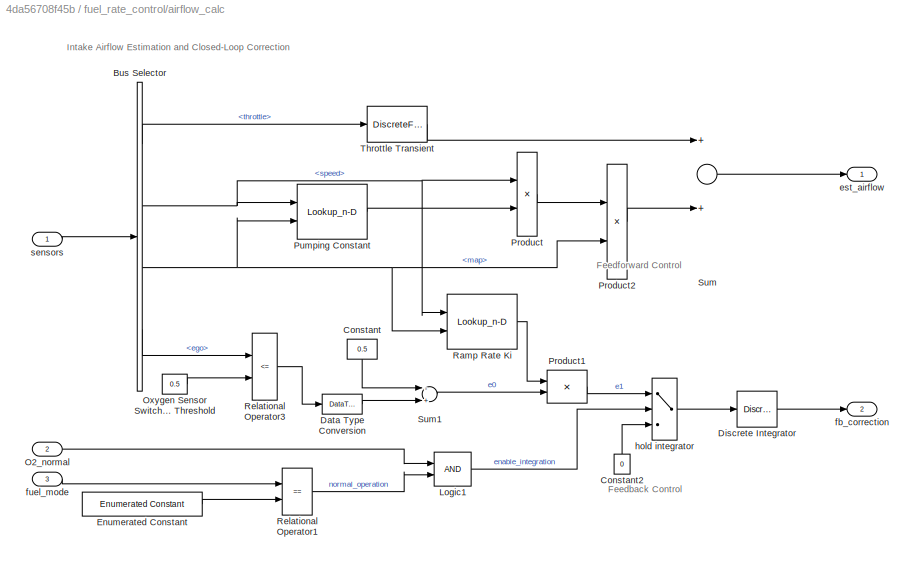
BLOCK [SubSystem] fuel_rate_control/airflow_calc
  Ports = [3, 2]
  RequestExecContextInheritance = off
BLOCK [BusSelector] fuel_rate_control/airflow_calc/Bus Selector
  OutputAsBus = off
  OutputSignals = throttle,speed,map,ego
  Ports = [1, 4]
BLOCK [Constant] fuel_rate_control/airflow_calc/Constant
  OutDataTypeStr = s16En7
  Value = 0.5
BLOCK [Constant] fuel_rate_control/airflow_calc/Constant2
  OutDataTypeStr = uint8
  Value = 0
BLOCK [DataTypeConversion] fuel_rate_control/airflow_calc/Data Type Conversion
  OutDataTypeStr = s16En7
  RndMeth = Simplest
  SaturateOnIntegerOverflow = off
BLOCK [DiscreteIntegrator] fuel_rate_control/airflow_calc/Discrete Integrator
  ICPrevOutput = DiscIntNeverNeededParam
  ICPrevScaledInput = DiscIntNeverNeededParam
  InitialConditionSetting = Auto
  OutDataTypeStr = s16En15
  Ports = [1, 1]
  RndMeth = Simplest
  SampleTime = -1
BLOCK [Reference] fuel_rate_control/airflow_calc/Enumerated Constant  REF=simulink/Sources/Enumerated
Constant
  Ports = [0, 1]
  SourceBlock = simulink/Sources/Enumerated\nConstant
  SourceProductBaseCode = SL
  SourceProductName = Simulink
  SourceType = Enumerated Constant
BLOCK [Logic] fuel_rate_control/airflow_calc/Logic1
  AllPortsSameDT = off
  IconShape = distinctive
  OutDataTypeStr = boolean
  Ports = [2, 1]
BLOCK [Inport] fuel_rate_control/airflow_calc/O2_normal
  IconDisplay = Port number
  Port = 2
BLOCK [Constant] fuel_rate_control/airflow_calc/Oxygen Sensor Switching Threshold
  OutDataTypeStr = s16En7
  Value = 0.5
BLOCK [Product] fuel_rate_control/airflow_calc/Product
  InputSameDT = off
  OutDataTypeStr = s16En7
  Ports = [2, 1]
  RndMeth = Simplest
  SaturateOnIntegerOverflow = off
BLOCK [Product] fuel_rate_control/airflow_calc/Product1
  InputSameDT = off
  OutDataTypeStr = s16En15
  Ports = [2, 1]
  RndMeth = Simplest
  SaturateOnIntegerOverflow = off
BLOCK [Product] fuel_rate_control/airflow_calc/Product2
  InputSameDT = off
  OutDataTypeStr = s16En7
  Ports = [2, 1]
  RndMeth = Simplest
  SaturateOnIntegerOverflow = off
BLOCK [Lookup_n-D] fuel_rate_control/airflow_calc/Pumping Constant
  BreakpointsForDimension1 = SpeedVect
  BreakpointsForDimension2 = PressVect
  ExtrapMethod = Clip
  IndexSearchMethod = Linear search
  InputSameDT = off
  LookupTableObject = ''
  OutDataTypeStr = s16En15
  Ports = [2, 1]
  RndMeth = Simplest
  Table = PumpCon
  UseLastTableValue = on
BLOCK [Lookup_n-D] fuel_rate_control/airflow_calc/Ramp Rate Ki
  BreakpointsForDimension1 = RampRateKiX
  BreakpointsForDimension2 = RampRateKiY
  ExtrapMethod = Clip
  IndexSearchMethod = Linear search
  InputSameDT = off
  LookupTableObject = ''
  OutDataTypeStr = s16En15
  Ports = [2, 1]
  RndMeth = Simplest
  Table = RampRateKiZ
  UseLastTableValue = on
BLOCK [RelationalOperator] fuel_rate_control/airflow_calc/Relational Operator1
  Operator = ==
  OutDataTypeStr = boolean
  Ports = [2, 1]
BLOCK [RelationalOperator] fuel_rate_control/airflow_calc/Relational Operator3
  InputSameDT = off
  Operator = <=
  OutDataTypeStr = boolean
  Ports = [2, 1]
BLOCK [Sum] fuel_rate_control/airflow_calc/Sum
  InputSameDT = off
  Inputs = 2
  OutDataTypeStr = s16En7
  Ports = [2, 1]
  RndMeth = Simplest
  SaturateOnIntegerOverflow = off
BLOCK [Sum] fuel_rate_control/airflow_calc/Sum1
  InputSameDT = off
  Inputs = -+
  OutDataTypeStr = s16En15
  Ports = [2, 1]
  RndMeth = Simplest
  SaturateOnIntegerOverflow = off
BLOCK [DiscreteFilter] fuel_rate_control/airflow_calc/Throttle Transient
  Denominator = [1 -.8]
  InputPortMap = u0
  Numerator = [.01 -.01]
  OutDataTypeStr = s16En7
  Ports = [1, 1]
  RndMeth = Simplest
  a0EqualsOne = on
BLOCK [Outport] fuel_rate_control/airflow_calc/est_airflow
  IconDisplay = Port number
  Unit = g/s
BLOCK [Outport] fuel_rate_control/airflow_calc/fb_correction
  IconDisplay = Port number
  Port = 2
BLOCK [Inport] fuel_rate_control/airflow_calc/fuel_mode
  IconDisplay = Port number
  Port = 3
BLOCK [Switch] fuel_rate_control/airflow_calc/hold integrator
  Criteria = u2 ~= 0
  InputSameDT = off
  OutDataTypeStr = s16En15
  RndMeth = Simplest
  SaturateOnIntegerOverflow = off
  Threshold = 1
BLOCK [Inport] fuel_rate_control/airflow_calc/sensors
  IconDisplay = Port number
BLOCK [SubSystem] fuel_rate_control/control_logic
  Description = Stateflow diagram to determine control system operating mode
  ErrorFcn = Stateflow.Translate.translate
  PermitHierarchicalResolution = ExplicitOnly
  Ports = [1, 3]
  RequestExecContextInheritance = off
  SFBlockType = Chart
  TreatAsAtomicUnit = on
BLOCK [Demux] fuel_rate_control/control_logic/ Demux 
  Outputs = 3
  Ports = [1, 3]
BLOCK [Outport] fuel_rate_control/control_logic/ O2_normal
  IconDisplay = Port number
  Port = 2
BLOCK [S-Function] fuel_rate_control/control_logic/ SFunction 
  EnableBusSupport = off
  FunctionName = sf_sfun
  Parameters = hys,max_ego,max_press,max_speed,max_throt,min_press,min_throt,zero_thresh
  PortCounts = [4 10]
  Ports = [4, 10]
  SFcnIsStateOwnerBlock = off
  SFunctionDeploymentMode = off
  Tag = Stateflow S-Function mLarge_MajorAdjust_3 1
BLOCK [SubSystem] fuel_rate_control/control_logic/Pressure.map_estimate
  Ports = [2, 1, 0, 1]
  PreDeleteFcn = Stateflow.SLINSF.SimulinkMan.removePreDeleteFcn
  RequestExecContextInheritance = off
  UndoDeleteFcn = Stateflow.SLINSF.SimulinkMan.restorePreDeleteFcn
BLOCK [Lookup_n-D] fuel_rate_control/control_logic/Pressure.map_estimate/Pressure Estimation
  BreakpointsForDimension1 = SpeedVect
  BreakpointsForDimension2 = ThrotVect
  ExtrapMethod = Clip
  IndexSearchMethod = Linear search
  InputSameDT = off
  LookupTableObject = ''
  OutDataTypeStr = u8En7
  Ports = [2, 1]
  RndMeth = Simplest
  Table = PressEst
  UseLastTableValue = on
BLOCK [TriggerPort] fuel_rate_control/control_logic/Pressure.map_estimate/f
  CopyFcn = Stateflow.SLINSF.SimulinkMan.removeBlockPreDeleteFcn
  Ports = []
  PreDeleteFcn = Stateflow.SLINSF.SimulinkMan.unsafePredeleteFcn
  StatesWhenEnabling = held
  TriggerType = function-call
  VariantControl = Variant
BLOCK [Outport] fuel_rate_control/control_logic/Pressure.map_estimate/map
  IconDisplay = Port number
BLOCK [Inport] fuel_rate_control/control_logic/Pressure.map_estimate/speed
  IconDisplay = Port number
  OutDataTypeStr = s16En3
BLOCK [Inport] fuel_rate_control/control_logic/Pressure.map_estimate/throttle
  IconDisplay = Port number
  OutDataTypeStr = s16En3
  Port = 2
BLOCK [SubSystem] fuel_rate_control/control_logic/Speed.speed_estimate
  Ports = [2, 1, 0, 1]
  PreDeleteFcn = Stateflow.SLINSF.SimulinkMan.removePreDeleteFcn
  RequestExecContextInheritance = off
  UndoDeleteFcn = Stateflow.SLINSF.SimulinkMan.restorePreDeleteFcn
BLOCK [Saturate] fuel_rate_control/control_logic/Speed.speed_estimate/Saturation
  InputPortMap = u0
  LowerLimit = 0
  OutDataTypeStr = s16En3
  Ports = [1, 1]
  UpperLimit = max_speed
BLOCK [Lookup_n-D] fuel_rate_control/control_logic/Speed.speed_estimate/Speed Estimation
  BreakpointsForDimension1 = ThrotVect
  BreakpointsForDimension2 = PressVect
  ExtrapMethod = Clip
  IndexSearchMethod = Linear search
  InputSameDT = off
  LookupTableObject = ''
  OutDataTypeStr = s16En3
  Ports = [2, 1]
  RndMeth = Simplest
  Table = SpeedEst
  UseLastTableValue = on
BLOCK [TriggerPort] fuel_rate_control/control_logic/Speed.speed_estimate/f
  CopyFcn = Stateflow.SLINSF.SimulinkMan.removeBlockPreDeleteFcn
  Ports = []
  PreDeleteFcn = Stateflow.SLINSF.SimulinkMan.unsafePredeleteFcn
  StatesWhenEnabling = held
  TriggerType = function-call
  VariantControl = Variant
BLOCK [Inport] fuel_rate_control/control_logic/Speed.speed_estimate/map
  IconDisplay = Port number
  OutDataTypeStr = u8En7
  Port = 2
BLOCK [Outport] fuel_rate_control/control_logic/Speed.speed_estimate/speed
  IconDisplay = Port number
BLOCK [Inport] fuel_rate_control/control_logic/Speed.speed_estimate/throttle
  IconDisplay = Port number
  OutDataTypeStr = s16En3
BLOCK [SubSystem] fuel_rate_control/control_logic/Throttle.throttle_estimate
  Ports = [2, 1, 0, 1]
  PreDeleteFcn = Stateflow.SLINSF.SimulinkMan.removePreDeleteFcn
  RequestExecContextInheritance = off
  UndoDeleteFcn = Stateflow.SLINSF.SimulinkMan.restorePreDeleteFcn
BLOCK [Lookup_n-D] fuel_rate_control/control_logic/Throttle.throttle_estimate/Throttle Estimation
  BreakpointsForDimension1 = SpeedVect
  BreakpointsForDimension2 = PressVect
  ExtrapMethod = Clip
  IndexSearchMethod = Linear search
  InputSameDT = off
  LookupTableObject = ''
  OutDataTypeStr = s16En7
  Ports = [2, 1]
  RndMeth = Simplest
  Table = ThrotEst
  UseLastTableValue = on
BLOCK [TriggerPort] fuel_rate_control/control_logic/Throttle.throttle_estimate/f
  CopyFcn = Stateflow.SLINSF.SimulinkMan.removeBlockPreDeleteFcn
  Ports = []
  PreDeleteFcn = Stateflow.SLINSF.SimulinkMan.unsafePredeleteFcn
  StatesWhenEnabling = held
  TriggerType = function-call
  VariantControl = Variant
BLOCK [Inport] fuel_rate_control/control_logic/Throttle.throttle_estimate/map
  IconDisplay = Port number
  OutDataTypeStr = u8En7
  Port = 2
BLOCK [Inport] fuel_rate_control/control_logic/Throttle.throttle_estimate/speed
  IconDisplay = Port number
  OutDataTypeStr = s16En3
BLOCK [Outport] fuel_rate_control/control_logic/Throttle.throttle_estimate/throttle
  IconDisplay = Port number
BLOCK [Inport] fuel_rate_control/control_logic/es_i
  IconDisplay = Port number
BLOCK [Outport] fuel_rate_control/control_logic/es_o
  IconDisplay = Port number
BLOCK [Outport] fuel_rate_control/control_logic/fuel_mode
  IconDisplay = Port number
  Port = 3
BLOCK [SubSystem] fuel_rate_control/fuel_calc
  Ports = [3, 1]
  RequestExecContextInheritance = off
BLOCK [Inport] fuel_rate_control/fuel_calc/est_airflow
  IconDisplay = Port number
  Unit = g/s
BLOCK [Inport] fuel_rate_control/fuel_calc/fb_correction
  IconDisplay = Port number
  Port = 2
BLOCK [SubSystem] fuel_rate_control/fuel_calc/feedforward_fuel_rate
  Ports = [2, 1]
  RequestExecContextInheritance = off
BLOCK [MultiPortSwitch] fuel_rate_control/fuel_calc/feedforward_fuel_rate/Multiport Switch
  DataPortIndices = {sld_FuelModes.LOW, sld_FuelModes.RICH, sld_FuelModes.DISABLED}
  DataPortOrder = Specify indices
  InputSameDT = off
  OutDataTypeStr = s16En7
  Ports = [4, 1]
  RndMeth = Simplest
  SaturateOnIntegerOverflow = off
BLOCK [Product] fuel_rate_control/fuel_calc/feedforward_fuel_rate/Product
  InputSameDT = off
  OutDataTypeStr = s16En7
  Ports = [2, 1]
  RndMeth = Simplest
  SaturateOnIntegerOverflow = off
BLOCK [Inport] fuel_rate_control/fuel_calc/feedforward_fuel_rate/est_airflow
  IconDisplay = Port number
BLOCK [Outport] fuel_rate_control/fuel_calc/feedforward_fuel_rate/ff_fuel_rate
  IconDisplay = Port number
BLOCK [Inport] fuel_rate_control/fuel_calc/feedforward_fuel_rate/fuel_mode
  IconDisplay = Port number
  Port = 2
BLOCK [Constant] fuel_rate_control/fuel_calc/feedforward_fuel_rate/normal
  OutDataTypeStr = s16En7
  Value = 1/14.6
BLOCK [Constant] fuel_rate_control/fuel_calc/feedforward_fuel_rate/rich
  OutDataTypeStr = s16En7
  Value = 1/(14.6*0.8)
BLOCK [Constant] fuel_rate_control/fuel_calc/feedforward_fuel_rate/shutdown
  OutDataTypeStr = s16En7
  Value = 0
BLOCK [Inport] fuel_rate_control/fuel_calc/fuel_mode
  IconDisplay = Port number
  Port = 3
BLOCK [Outport] fuel_rate_control/fuel_calc/fuel_rate
  IconDisplay = Port number
  Unit = g/s
BLOCK [SubSystem] fuel_rate_control/fuel_calc/switchable_compensation
  Ports = [3, 1]
  RequestExecContextInheritance = off
BLOCK [From] fuel_rate_control/fuel_calc/switchable_compensation/From
  GotoTag = RICH
BLOCK [Goto] fuel_rate_control/fuel_calc/switchable_compensation/Goto
  GotoTag = RICH
BLOCK [Merge] fuel_rate_control/fuel_calc/switchable_compensation/Merge
  Inputs = 3
  Ports = [3, 1]
BLOCK [SwitchCase] fuel_rate_control/fuel_calc/switchable_compensation/Switch Case
  CaseConditions = {sld_FuelModes.LOW, sld_FuelModes.RICH}
  Ports = [1, 3]
BLOCK [SubSystem] fuel_rate_control/fuel_calc/switchable_compensation/disabled_mode
  Ports = [0, 1, 0, 0, 0, 0, 0, 1]
  RequestExecContextInheritance = off
  TreatAsAtomicUnit = on
BLOCK [ActionPort] fuel_rate_control/fuel_calc/switchable_compensation/disabled_mode/Action Port
  ActionType = default
BLOCK [Outport] fuel_rate_control/fuel_calc/switchable_compensation/disabled_mode/fuel_rate
  IconDisplay = Port number
  InitialOutput = 0
BLOCK [Constant] fuel_rate_control/fuel_calc/switchable_compensation/disabled_mode/shutoff
  OutDataTypeStr = Inherit: Inherit via back propagation
  Value = 0
BLOCK [Inport] fuel_rate_control/fuel_calc/switchable_compensation/fb_correction
  IconDisplay = Port number
  Port = 3
BLOCK [Inport] fuel_rate_control/fuel_calc/switchable_compensation/ff_fuel_rate
  IconDisplay = Port number
BLOCK [Inport] fuel_rate_control/fuel_calc/switchable_compensation/fuel_mode
  IconDisplay = Port number
  Port = 2
BLOCK [Outport] fuel_rate_control/fuel_calc/switchable_compensation/fuel_rate
  IconDisplay = Port number
BLOCK [SubSystem] fuel_rate_control/fuel_calc/switchable_compensation/low_mode
  Ports = [2, 1, 0, 0, 0, 0, 0, 1]
  RequestExecContextInheritance = off
  TreatAsAtomicUnit = on
BLOCK [ActionPort] fuel_rate_control/fuel_calc/switchable_compensation/low_mode/Action Port
  ActionType = case
BLOCK [DiscreteFilter] fuel_rate_control/fuel_calc/switchable_compensation/low_mode/Discrete Filter
  Denominator = [1 -0.7408]
  InputPortMap = u0
  Numerator = [8.7696 -8.5104]
  OutDataTypeStr = Inherit: Same as input
  Ports = [1, 1]
  RndMeth = Simplest
  a0EqualsOne = on
BLOCK [Sum] fuel_rate_control/fuel_calc/switchable_compensation/low_mode/Sum3
  InputSameDT = off
  OutDataTypeStr = s16En7
  Ports = [2, 1]
  RndMeth = Simplest
  SaturateOnIntegerOverflow = off
BLOCK [Inport] fuel_rate_control/fuel_calc/switchable_compensation/low_mode/fb_correction
  IconDisplay = Port number
BLOCK [Inport] fuel_rate_control/fuel_calc/switchable_compensation/low_mode/ff_fuel_rate
  IconDisplay = Port number
  Port = 2
BLOCK [Outport] fuel_rate_control/fuel_calc/switchable_compensation/low_mode/fuel_rate
  IconDisplay = Port number
  InitialOutput = 0
BLOCK [SubSystem] fuel_rate_control/fuel_calc/switchable_compensation/rich_mode
  Ports = [2, 1, 0, 0, 0, 0, 0, 1]
  RequestExecContextInheritance = off
  TreatAsAtomicUnit = on
BLOCK [ActionPort] fuel_rate_control/fuel_calc/switchable_compensation/rich_mode/Action Port
  ActionType = case
BLOCK [DiscreteFilter] fuel_rate_control/fuel_calc/switchable_compensation/rich_mode/Discrete Filter
  Denominator = [1 -0.7408]
  InputPortMap = u0
  Numerator = [0 0.2592]
  OutDataTypeStr = Inherit: Same as input
  Ports = [1, 1]
  RndMeth = Simplest
  a0EqualsOne = on
BLOCK [Sum] fuel_rate_control/fuel_calc/switchable_compensation/rich_mode/Sum2
  InputSameDT = off
  OutDataTypeStr = s16En7
  Ports = [2, 1]
  RndMeth = Simplest
  SaturateOnIntegerOverflow = off
BLOCK [Inport] fuel_rate_control/fuel_calc/switchable_compensation/rich_mode/fb_correction
  IconDisplay = Port number
  Port = 2
BLOCK [Inport] fuel_rate_control/fuel_calc/switchable_compensation/rich_mode/ff_fuel_rate
  IconDisplay = Port number
BLOCK [Outport] fuel_rate_control/fuel_calc/switchable_compensation/rich_mode/fuel_rate
  IconDisplay = Port number
  InitialOutput = 0
BLOCK [Outport] fuel_rate_control/fuel_rate
  IconDisplay = Port number
  Unit = g/s
BLOCK [Inport] fuel_rate_control/sensors
  IconDisplay = Port number
  OutDataTypeStr = Bus: EngSensors
BLOCK [SubSystem] fuel_rate_control/validate_sample_time
  CopyFcn = sldvsubsys('copy');
  DisableCoverage = on
  LoadFcn = sldvsubsys('check')
  OpenFcn = open_system(gcb,'force');
  Ports = [1]
  PreSaveFcn = set_param(gcb,'SimViewingDevice','on');\nsldvsubsys('check');
  RequestExecContextInheritance = off
  SimViewingDevice = on
  Tag = VerificationSubsystem
  TreatAsAtomicUnit = on
BLOCK [Probe] fuel_rate_control/validate_sample_time/Actual Sample Time
  Ports = [1, 1]
  ProbeComplexSignal = off
  ProbeSampleTimeDataType = Same as input
  ProbeWidth = off
BLOCK [Reference] fuel_rate_control/validate_sample_time/CheckRange  REF=simulink/Model
Verification/Check 
Static Range
  Description = -st_range < u < st_range
  Ports = [1]
  SourceBlock = simulink/Model\nVerification/Check \nStatic Range
  SourceProductBaseCode = SL
  SourceProductName = Simulink
  SourceType = Checks_SRange
BLOCK [DataTypeConversion] fuel_rate_control/validate_sample_time/Data Type Conversion
  OutDataTypeStr = s16En15
  RndMeth = Floor
  SaturateOnIntegerOverflow = off
BLOCK [Demux] fuel_rate_control/validate_sample_time/Demux
  DisplayOption = bar
  Outputs = 2
  Ports = [1, 2]
BLOCK [Constant] fuel_rate_control/validate_sample_time/Expected Sample Time
  OutDataTypeStr = s16En15
  Value = 0.01
BLOCK [Inport] fuel_rate_control/validate_sample_time/In1
  IconDisplay = Port number
BLOCK [Sum] fuel_rate_control/validate_sample_time/Sum
  IconShape = round
  InputSameDT = off
  Inputs = |+-
  Ports = [2, 1]
  SaturateOnIntegerOverflow = off
BLOCK [Terminator] fuel_rate_control/validate_sample_time/Terminator
BLOCK [SubSystem] fuel_rate_control1
  Ports = [1, 1]
  RequestExecContextInheritance = off
  Tag = FuelRateControl
  TreatAsAtomicUnit = on
BLOCK [BusSelector] fuel_rate_control1/Bus Selector1
  OutputAsBus = off
  OutputSignals = speed
  Ports = [1, 1]
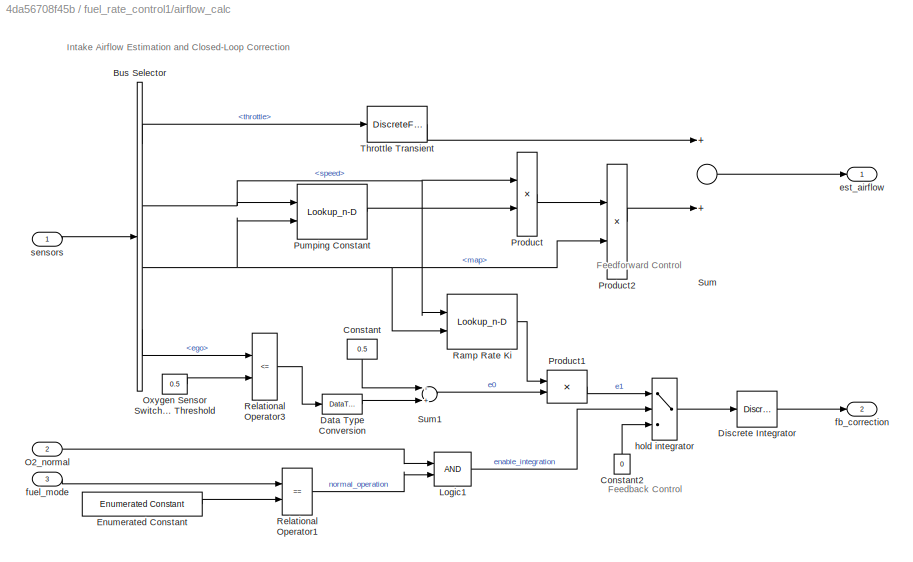
BLOCK [SubSystem] fuel_rate_control1/airflow_calc
  Ports = [3, 2]
  RequestExecContextInheritance = off
BLOCK [BusSelector] fuel_rate_control1/airflow_calc/Bus Selector
  OutputAsBus = off
  OutputSignals = throttle,speed,map,ego
  Ports = [1, 4]
BLOCK [Constant] fuel_rate_control1/airflow_calc/Constant
  OutDataTypeStr = s16En7
  Value = 0.5
BLOCK [Constant] fuel_rate_control1/airflow_calc/Constant2
  OutDataTypeStr = uint8
  Value = 0
BLOCK [DataTypeConversion] fuel_rate_control1/airflow_calc/Data Type Conversion
  OutDataTypeStr = s16En7
  RndMeth = Simplest
  SaturateOnIntegerOverflow = off
BLOCK [DiscreteIntegrator] fuel_rate_control1/airflow_calc/Discrete Integrator
  ICPrevOutput = DiscIntNeverNeededParam
  ICPrevScaledInput = DiscIntNeverNeededParam
  InitialConditionSetting = Auto
  OutDataTypeStr = s16En15
  Ports = [1, 1]
  RndMeth = Simplest
  SampleTime = -1
BLOCK [Reference] fuel_rate_control1/airflow_calc/Enumerated Constant  REF=simulink/Sources/Enumerated
Constant
  Ports = [0, 1]
  SourceBlock = simulink/Sources/Enumerated\nConstant
  SourceProductBaseCode = SL
  SourceProductName = Simulink
  SourceType = Enumerated Constant
BLOCK [Logic] fuel_rate_control1/airflow_calc/Logic1
  AllPortsSameDT = off
  IconShape = distinctive
  OutDataTypeStr = boolean
  Ports = [2, 1]
BLOCK [Inport] fuel_rate_control1/airflow_calc/O2_normal
  IconDisplay = Port number
  Port = 2
BLOCK [Constant] fuel_rate_control1/airflow_calc/Oxygen Sensor Switching Threshold
  OutDataTypeStr = s16En7
  Value = 0.5
BLOCK [Product] fuel_rate_control1/airflow_calc/Product
  InputSameDT = off
  OutDataTypeStr = s16En7
  Ports = [2, 1]
  RndMeth = Simplest
  SaturateOnIntegerOverflow = off
BLOCK [Product] fuel_rate_control1/airflow_calc/Product1
  InputSameDT = off
  OutDataTypeStr = s16En15
  Ports = [2, 1]
  RndMeth = Simplest
  SaturateOnIntegerOverflow = off
BLOCK [Product] fuel_rate_control1/airflow_calc/Product2
  InputSameDT = off
  OutDataTypeStr = s16En7
  Ports = [2, 1]
  RndMeth = Simplest
  SaturateOnIntegerOverflow = off
BLOCK [Lookup_n-D] fuel_rate_control1/airflow_calc/Pumping Constant
  BreakpointsForDimension1 = SpeedVect
  BreakpointsForDimension2 = PressVect
  ExtrapMethod = Clip
  IndexSearchMethod = Linear search
  InputSameDT = off
  LookupTableObject = ''
  OutDataTypeStr = s16En15
  Ports = [2, 1]
  RndMeth = Simplest
  Table = PumpCon
  UseLastTableValue = on
BLOCK [Lookup_n-D] fuel_rate_control1/airflow_calc/Ramp Rate Ki
  BreakpointsForDimension1 = RampRateKiX
  BreakpointsForDimension2 = RampRateKiY
  ExtrapMethod = Clip
  IndexSearchMethod = Linear search
  InputSameDT = off
  LookupTableObject = ''
  OutDataTypeStr = s16En15
  Ports = [2, 1]
  RndMeth = Simplest
  Table = RampRateKiZ
  UseLastTableValue = on
BLOCK [RelationalOperator] fuel_rate_control1/airflow_calc/Relational Operator1
  Operator = ==
  OutDataTypeStr = boolean
  Ports = [2, 1]
BLOCK [RelationalOperator] fuel_rate_control1/airflow_calc/Relational Operator3
  InputSameDT = off
  Operator = <=
  OutDataTypeStr = boolean
  Ports = [2, 1]
BLOCK [Sum] fuel_rate_control1/airflow_calc/Sum
  InputSameDT = off
  Inputs = 2
  OutDataTypeStr = s16En7
  Ports = [2, 1]
  RndMeth = Simplest
  SaturateOnIntegerOverflow = off
BLOCK [Sum] fuel_rate_control1/airflow_calc/Sum1
  InputSameDT = off
  Inputs = -+
  OutDataTypeStr = s16En15
  Ports = [2, 1]
  RndMeth = Simplest
  SaturateOnIntegerOverflow = off
BLOCK [DiscreteFilter] fuel_rate_control1/airflow_calc/Throttle Transient
  Denominator = [1 -.8]
  InputPortMap = u0
  Numerator = [.01 -.01]
  OutDataTypeStr = s16En7
  Ports = [1, 1]
  RndMeth = Simplest
  a0EqualsOne = on
BLOCK [Outport] fuel_rate_control1/airflow_calc/est_airflow
  IconDisplay = Port number
  Unit = g/s
BLOCK [Outport] fuel_rate_control1/airflow_calc/fb_correction
  IconDisplay = Port number
  Port = 2
BLOCK [Inport] fuel_rate_control1/airflow_calc/fuel_mode
  IconDisplay = Port number
  Port = 3
BLOCK [Switch] fuel_rate_control1/airflow_calc/hold integrator
  Criteria = u2 ~= 0
  InputSameDT = off
  OutDataTypeStr = s16En15
  RndMeth = Simplest
  SaturateOnIntegerOverflow = off
  Threshold = 1
BLOCK [Inport] fuel_rate_control1/airflow_calc/sensors
  IconDisplay = Port number
BLOCK [SubSystem] fuel_rate_control1/control_logic
  Description = Stateflow diagram to determine control system operating mode
  ErrorFcn = Stateflow.Translate.translate
  PermitHierarchicalResolution = ExplicitOnly
  Ports = [1, 3]
  RequestExecContextInheritance = off
  SFBlockType = Chart
  TreatAsAtomicUnit = on
BLOCK [Demux] fuel_rate_control1/control_logic/ Demux 
  Outputs = 3
  Ports = [1, 3]
BLOCK [Outport] fuel_rate_control1/control_logic/ O2_normal
  IconDisplay = Port number
  Port = 2
BLOCK [S-Function] fuel_rate_control1/control_logic/ SFunction 
  EnableBusSupport = off
  FunctionName = sf_sfun
  Parameters = hys,max_ego,max_press,max_speed,max_throt,min_press,min_throt,zero_thresh
  PortCounts = [4 10]
  Ports = [4, 10]
  SFcnIsStateOwnerBlock = off
  SFunctionDeploymentMode = off
  Tag = Stateflow S-Function mLarge_MajorAdjust_3 10
BLOCK [SubSystem] fuel_rate_control1/control_logic/Pressure.map_estimate
  Ports = [2, 1, 0, 1]
  PreDeleteFcn = Stateflow.SLINSF.SimulinkMan.removePreDeleteFcn
  RequestExecContextInheritance = off
  UndoDeleteFcn = Stateflow.SLINSF.SimulinkMan.restorePreDeleteFcn
BLOCK [Lookup_n-D] fuel_rate_control1/control_logic/Pressure.map_estimate/Pressure Estimation
  BreakpointsForDimension1 = SpeedVect
  BreakpointsForDimension2 = ThrotVect
  ExtrapMethod = Clip
  IndexSearchMethod = Linear search
  InputSameDT = off
  LookupTableObject = ''
  OutDataTypeStr = u8En7
  Ports = [2, 1]
  RndMeth = Simplest
  Table = PressEst
  UseLastTableValue = on
BLOCK [TriggerPort] fuel_rate_control1/control_logic/Pressure.map_estimate/f
  CopyFcn = Stateflow.SLINSF.SimulinkMan.removeBlockPreDeleteFcn
  Ports = []
  PreDeleteFcn = Stateflow.SLINSF.SimulinkMan.unsafePredeleteFcn
  StatesWhenEnabling = held
  TriggerType = function-call
  VariantControl = Variant
BLOCK [Outport] fuel_rate_control1/control_logic/Pressure.map_estimate/map
  IconDisplay = Port number
BLOCK [Inport] fuel_rate_control1/control_logic/Pressure.map_estimate/speed
  IconDisplay = Port number
  OutDataTypeStr = s16En3
BLOCK [Inport] fuel_rate_control1/control_logic/Pressure.map_estimate/throttle
  IconDisplay = Port number
  OutDataTypeStr = s16En3
  Port = 2
BLOCK [SubSystem] fuel_rate_control1/control_logic/Speed.speed_estimate
  Ports = [2, 1, 0, 1]
  PreDeleteFcn = Stateflow.SLINSF.SimulinkMan.removePreDeleteFcn
  RequestExecContextInheritance = off
  UndoDeleteFcn = Stateflow.SLINSF.SimulinkMan.restorePreDeleteFcn
BLOCK [Saturate] fuel_rate_control1/control_logic/Speed.speed_estimate/Saturation
  InputPortMap = u0
  LowerLimit = 0
  OutDataTypeStr = s16En3
  Ports = [1, 1]
  UpperLimit = max_speed
BLOCK [Lookup_n-D] fuel_rate_control1/control_logic/Speed.speed_estimate/Speed Estimation
  BreakpointsForDimension1 = ThrotVect
  BreakpointsForDimension2 = PressVect
  ExtrapMethod = Clip
  IndexSearchMethod = Linear search
  InputSameDT = off
  LookupTableObject = ''
  OutDataTypeStr = s16En3
  Ports = [2, 1]
  RndMeth = Simplest
  Table = SpeedEst
  UseLastTableValue = on
BLOCK [TriggerPort] fuel_rate_control1/control_logic/Speed.speed_estimate/f
  CopyFcn = Stateflow.SLINSF.SimulinkMan.removeBlockPreDeleteFcn
  Ports = []
  PreDeleteFcn = Stateflow.SLINSF.SimulinkMan.unsafePredeleteFcn
  StatesWhenEnabling = held
  TriggerType = function-call
  VariantControl = Variant
BLOCK [Inport] fuel_rate_control1/control_logic/Speed.speed_estimate/map
  IconDisplay = Port number
  OutDataTypeStr = u8En7
  Port = 2
BLOCK [Outport] fuel_rate_control1/control_logic/Speed.speed_estimate/speed
  IconDisplay = Port number
BLOCK [Inport] fuel_rate_control1/control_logic/Speed.speed_estimate/throttle
  IconDisplay = Port number
  OutDataTypeStr = s16En3
BLOCK [SubSystem] fuel_rate_control1/control_logic/Throttle.throttle_estimate
  Ports = [2, 1, 0, 1]
  PreDeleteFcn = Stateflow.SLINSF.SimulinkMan.removePreDeleteFcn
  RequestExecContextInheritance = off
  UndoDeleteFcn = Stateflow.SLINSF.SimulinkMan.restorePreDeleteFcn
BLOCK [Lookup_n-D] fuel_rate_control1/control_logic/Throttle.throttle_estimate/Throttle Estimation
  BreakpointsForDimension1 = SpeedVect
  BreakpointsForDimension2 = PressVect
  ExtrapMethod = Clip
  IndexSearchMethod = Linear search
  InputSameDT = off
  LookupTableObject = ''
  OutDataTypeStr = s16En7
  Ports = [2, 1]
  RndMeth = Simplest
  Table = ThrotEst
  UseLastTableValue = on
BLOCK [TriggerPort] fuel_rate_control1/control_logic/Throttle.throttle_estimate/f
  CopyFcn = Stateflow.SLINSF.SimulinkMan.removeBlockPreDeleteFcn
  Ports = []
  PreDeleteFcn = Stateflow.SLINSF.SimulinkMan.unsafePredeleteFcn
  StatesWhenEnabling = held
  TriggerType = function-call
  VariantControl = Variant
BLOCK [Inport] fuel_rate_control1/control_logic/Throttle.throttle_estimate/map
  IconDisplay = Port number
  OutDataTypeStr = u8En7
  Port = 2
BLOCK [Inport] fuel_rate_control1/control_logic/Throttle.throttle_estimate/speed
  IconDisplay = Port number
  OutDataTypeStr = s16En3
BLOCK [Outport] fuel_rate_control1/control_logic/Throttle.throttle_estimate/throttle
  IconDisplay = Port number
BLOCK [Inport] fuel_rate_control1/control_logic/es_i
  IconDisplay = Port number
BLOCK [Outport] fuel_rate_control1/control_logic/es_o
  IconDisplay = Port number
BLOCK [Outport] fuel_rate_control1/control_logic/fuel_mode
  IconDisplay = Port number
  Port = 3
BLOCK [SubSystem] fuel_rate_control1/fuel_calc
  Ports = [3, 1]
  RequestExecContextInheritance = off
BLOCK [Inport] fuel_rate_control1/fuel_calc/est_airflow
  IconDisplay = Port number
  Unit = g/s
BLOCK [Inport] fuel_rate_control1/fuel_calc/fb_correction
  IconDisplay = Port number
  Port = 2
BLOCK [SubSystem] fuel_rate_control1/fuel_calc/feedforward_fuel_rate
  Ports = [2, 1]
  RequestExecContextInheritance = off
BLOCK [MultiPortSwitch] fuel_rate_control1/fuel_calc/feedforward_fuel_rate/Multiport Switch
  DataPortIndices = {sld_FuelModes.LOW, sld_FuelModes.RICH, sld_FuelModes.DISABLED}
  DataPortOrder = Specify indices
  InputSameDT = off
  OutDataTypeStr = s16En7
  Ports = [4, 1]
  RndMeth = Simplest
  SaturateOnIntegerOverflow = off
BLOCK [Product] fuel_rate_control1/fuel_calc/feedforward_fuel_rate/Product
  InputSameDT = off
  OutDataTypeStr = s16En7
  Ports = [2, 1]
  RndMeth = Simplest
  SaturateOnIntegerOverflow = off
BLOCK [Inport] fuel_rate_control1/fuel_calc/feedforward_fuel_rate/est_airflow
  IconDisplay = Port number
BLOCK [Outport] fuel_rate_control1/fuel_calc/feedforward_fuel_rate/ff_fuel_rate
  IconDisplay = Port number
BLOCK [Inport] fuel_rate_control1/fuel_calc/feedforward_fuel_rate/fuel_mode
  IconDisplay = Port number
  Port = 2
BLOCK [Constant] fuel_rate_control1/fuel_calc/feedforward_fuel_rate/normal
  OutDataTypeStr = s16En7
  Value = 1/14.6
BLOCK [Constant] fuel_rate_control1/fuel_calc/feedforward_fuel_rate/rich
  OutDataTypeStr = s16En7
  Value = 1/(14.6*0.8)
BLOCK [Constant] fuel_rate_control1/fuel_calc/feedforward_fuel_rate/shutdown
  OutDataTypeStr = s16En7
  Value = 0
BLOCK [Inport] fuel_rate_control1/fuel_calc/fuel_mode
  IconDisplay = Port number
  Port = 3
BLOCK [Outport] fuel_rate_control1/fuel_calc/fuel_rate
  IconDisplay = Port number
  Unit = g/s
BLOCK [SubSystem] fuel_rate_control1/fuel_calc/switchable_compensation
  Ports = [3, 1]
  RequestExecContextInheritance = off
BLOCK [From] fuel_rate_control1/fuel_calc/switchable_compensation/From
  GotoTag = RICH
BLOCK [Goto] fuel_rate_control1/fuel_calc/switchable_compensation/Goto
  GotoTag = RICH
BLOCK [Merge] fuel_rate_control1/fuel_calc/switchable_compensation/Merge
  Inputs = 3
  Ports = [3, 1]
BLOCK [SwitchCase] fuel_rate_control1/fuel_calc/switchable_compensation/Switch Case
  CaseConditions = {sld_FuelModes.LOW, sld_FuelModes.RICH}
  Ports = [1, 3]
BLOCK [SubSystem] fuel_rate_control1/fuel_calc/switchable_compensation/disabled_mode
  Ports = [0, 1, 0, 0, 0, 0, 0, 1]
  RequestExecContextInheritance = off
  TreatAsAtomicUnit = on
BLOCK [ActionPort] fuel_rate_control1/fuel_calc/switchable_compensation/disabled_mode/Action Port
BLOCK [Outport] fuel_rate_control1/fuel_calc/switchable_compensation/disabled_mode/fuel_rate
  IconDisplay = Port number
  InitialOutput = 0
BLOCK [Constant] fuel_rate_control1/fuel_calc/switchable_compensation/disabled_mode/shutoff
  OutDataTypeStr = Inherit: Inherit via back propagation
  Value = 0
BLOCK [Inport] fuel_rate_control1/fuel_calc/switchable_compensation/fb_correction
  IconDisplay = Port number
  Port = 3
BLOCK [Inport] fuel_rate_control1/fuel_calc/switchable_compensation/ff_fuel_rate
  IconDisplay = Port number
BLOCK [Inport] fuel_rate_control1/fuel_calc/switchable_compensation/fuel_mode
  IconDisplay = Port number
  Port = 2
BLOCK [Outport] fuel_rate_control1/fuel_calc/switchable_compensation/fuel_rate
  IconDisplay = Port number
BLOCK [SubSystem] fuel_rate_control1/fuel_calc/switchable_compensation/low_mode
  Ports = [2, 1, 0, 0, 0, 0, 0, 1]
  RequestExecContextInheritance = off
  TreatAsAtomicUnit = on
BLOCK [ActionPort] fuel_rate_control1/fuel_calc/switchable_compensation/low_mode/Action Port
BLOCK [DiscreteFilter] fuel_rate_control1/fuel_calc/switchable_compensation/low_mode/Discrete Filter
  Denominator = [1 -0.7408]
  InputPortMap = u0
  Numerator = [8.7696 -8.5104]
  OutDataTypeStr = Inherit: Same as input
  Ports = [1, 1]
  RndMeth = Simplest
  a0EqualsOne = on
BLOCK [Sum] fuel_rate_control1/fuel_calc/switchable_compensation/low_mode/Sum3
  InputSameDT = off
  OutDataTypeStr = s16En7
  Ports = [2, 1]
  RndMeth = Simplest
  SaturateOnIntegerOverflow = off
BLOCK [Inport] fuel_rate_control1/fuel_calc/switchable_compensation/low_mode/fb_correction
  IconDisplay = Port number
BLOCK [Inport] fuel_rate_control1/fuel_calc/switchable_compensation/low_mode/ff_fuel_rate
  IconDisplay = Port number
  Port = 2
BLOCK [Outport] fuel_rate_control1/fuel_calc/switchable_compensation/low_mode/fuel_rate
  IconDisplay = Port number
  InitialOutput = 0
BLOCK [SubSystem] fuel_rate_control1/fuel_calc/switchable_compensation/rich_mode
  Ports = [2, 1, 0, 0, 0, 0, 0, 1]
  RequestExecContextInheritance = off
  TreatAsAtomicUnit = on
BLOCK [ActionPort] fuel_rate_control1/fuel_calc/switchable_compensation/rich_mode/Action Port
BLOCK [DiscreteFilter] fuel_rate_control1/fuel_calc/switchable_compensation/rich_mode/Discrete Filter
  Denominator = [1 -0.7408]
  InputPortMap = u0
  Numerator = [0 0.2592]
  OutDataTypeStr = Inherit: Same as input
  Ports = [1, 1]
  RndMeth = Simplest
  a0EqualsOne = on
BLOCK [Sum] fuel_rate_control1/fuel_calc/switchable_compensation/rich_mode/Sum2
  InputSameDT = off
  OutDataTypeStr = s16En7
  Ports = [2, 1]
  RndMeth = Simplest
  SaturateOnIntegerOverflow = off
BLOCK [Inport] fuel_rate_control1/fuel_calc/switchable_compensation/rich_mode/fb_correction
  IconDisplay = Port number
  Port = 2
BLOCK [Inport] fuel_rate_control1/fuel_calc/switchable_compensation/rich_mode/ff_fuel_rate
  IconDisplay = Port number
BLOCK [Outport] fuel_rate_control1/fuel_calc/switchable_compensation/rich_mode/fuel_rate
  IconDisplay = Port number
  InitialOutput = 0
BLOCK [Outport] fuel_rate_control1/fuel_rate
  IconDisplay = Port number
  Unit = g/s
BLOCK [Inport] fuel_rate_control1/sensors
  IconDisplay = Port number
  OutDataTypeStr = Bus: EngSensors
BLOCK [SubSystem] fuel_rate_control1/validate_sample_time
  CopyFcn = sldvsubsys('copy');
  DisableCoverage = on
  LoadFcn = sldvsubsys('check')
  OpenFcn = open_system(gcb,'force');
  Ports = [1]
  PreSaveFcn = set_param(gcb,'SimViewingDevice','on');\nsldvsubsys('check');
  RequestExecContextInheritance = off
  SimViewingDevice = on
  Tag = VerificationSubsystem
  TreatAsAtomicUnit = on
BLOCK [Probe] fuel_rate_control1/validate_sample_time/Actual Sample Time
  Ports = [1, 1]
  ProbeComplexSignal = off
  ProbeSampleTimeDataType = Same as input
  ProbeWidth = off
BLOCK [Reference] fuel_rate_control1/validate_sample_time/CheckRange  REF=simulink/Model
Verification/Check 
Static Range
  Description = -st_range < u < st_range
  Ports = [1]
  SourceBlock = simulink/Model\nVerification/Check \nStatic Range
  SourceProductBaseCode = SL
  SourceProductName = Simulink
  SourceType = Checks_SRange
BLOCK [DataTypeConversion] fuel_rate_control1/validate_sample_time/Data Type Conversion
  OutDataTypeStr = s16En15
  RndMeth = Floor
  SaturateOnIntegerOverflow = off
BLOCK [Demux] fuel_rate_control1/validate_sample_time/Demux
  DisplayOption = bar
  Outputs = 2
  Ports = [1, 2]
BLOCK [Constant] fuel_rate_control1/validate_sample_time/Expected Sample Time
  OutDataTypeStr = s16En15
  Value = 0.01
BLOCK [Inport] fuel_rate_control1/validate_sample_time/In1
  IconDisplay = Port number
BLOCK [Sum] fuel_rate_control1/validate_sample_time/Sum
  IconShape = round
  InputSameDT = off
  Inputs = |+-
  Ports = [2, 1]
  SaturateOnIntegerOverflow = off
BLOCK [Terminator] fuel_rate_control1/validate_sample_time/Terminator
BLOCK [SubSystem] fuel_rate_control2
  Ports = [1, 1]
  RequestExecContextInheritance = off
  Tag = FuelRateControl
  TreatAsAtomicUnit = on
BLOCK [BusSelector] fuel_rate_control2/Bus Selector1
  OutputAsBus = off
  OutputSignals = speed
  Ports = [1, 1]
BLOCK [SubSystem] fuel_rate_control2/airflow_calc
  Ports = [3, 2]
  RequestExecContextInheritance = off
BLOCK [BusSelector] fuel_rate_control2/airflow_calc/Bus Selector
  OutputAsBus = off
  OutputSignals = throttle,speed,map,ego
  Ports = [1, 4]
BLOCK [Constant] fuel_rate_control2/airflow_calc/Constant
  OutDataTypeStr = s16En7
  Value = 0.5
BLOCK [Constant] fuel_rate_control2/airflow_calc/Constant2
  OutDataTypeStr = uint8
  Value = 0
BLOCK [DataTypeConversion] fuel_rate_control2/airflow_calc/Data Type Conversion
  OutDataTypeStr = s16En7
  RndMeth = Simplest
  SaturateOnIntegerOverflow = off
BLOCK [DiscreteIntegrator] fuel_rate_control2/airflow_calc/Discrete Integrator
  ICPrevOutput = DiscIntNeverNeededParam
  ICPrevScaledInput = DiscIntNeverNeededParam
  InitialConditionSetting = Auto
  OutDataTypeStr = s16En15
  Ports = [1, 1]
  RndMeth = Simplest
  SampleTime = -1
BLOCK [Reference] fuel_rate_control2/airflow_calc/Enumerated Constant  REF=simulink/Sources/Enumerated
Constant
  Ports = [0, 1]
  SourceBlock = simulink/Sources/Enumerated\nConstant
  SourceProductBaseCode = SL
  SourceProductName = Simulink
  SourceType = Enumerated Constant
BLOCK [Logic] fuel_rate_control2/airflow_calc/Logic1
  AllPortsSameDT = off
  IconShape = distinctive
  OutDataTypeStr = boolean
  Ports = [2, 1]
BLOCK [Inport] fuel_rate_control2/airflow_calc/O2_normal
  IconDisplay = Port number
  Port = 2
BLOCK [Constant] fuel_rate_control2/airflow_calc/Oxygen Sensor Switching Threshold
  OutDataTypeStr = s16En7
  Value = 0.5
BLOCK [Product] fuel_rate_control2/airflow_calc/Product
  InputSameDT = off
  OutDataTypeStr = s16En7
  Ports = [2, 1]
  RndMeth = Simplest
  SaturateOnIntegerOverflow = off
BLOCK [Product] fuel_rate_control2/airflow_calc/Product1
  InputSameDT = off
  OutDataTypeStr = s16En15
  Ports = [2, 1]
  RndMeth = Simplest
  SaturateOnIntegerOverflow = off
BLOCK [Product] fuel_rate_control2/airflow_calc/Product2
  InputSameDT = off
  OutDataTypeStr = s16En7
  Ports = [2, 1]
  RndMeth = Simplest
  SaturateOnIntegerOverflow = off
BLOCK [Lookup_n-D] fuel_rate_control2/airflow_calc/Pumping Constant
  BreakpointsForDimension1 = SpeedVect
  BreakpointsForDimension2 = PressVect
  ExtrapMethod = Clip
  IndexSearchMethod = Linear search
  InputSameDT = off
  LookupTableObject = ''
  OutDataTypeStr = s16En15
  Ports = [2, 1]
  RndMeth = Simplest
  Table = PumpCon
  UseLastTableValue = on
BLOCK [Lookup_n-D] fuel_rate_control2/airflow_calc/Ramp Rate Ki
  BreakpointsForDimension1 = RampRateKiX
  BreakpointsForDimension2 = RampRateKiY
  ExtrapMethod = Clip
  IndexSearchMethod = Linear search
  InputSameDT = off
  LookupTableObject = ''
  OutDataTypeStr = s16En15
  Ports = [2, 1]
  RndMeth = Simplest
  Table = RampRateKiZ
  UseLastTableValue = on
BLOCK [RelationalOperator] fuel_rate_control2/airflow_calc/Relational Operator1
  Operator = ==
  OutDataTypeStr = boolean
  Ports = [2, 1]
BLOCK [RelationalOperator] fuel_rate_control2/airflow_calc/Relational Operator3
  InputSameDT = off
  Operator = <=
  OutDataTypeStr = boolean
  Ports = [2, 1]
BLOCK [Sum] fuel_rate_control2/airflow_calc/Sum
  InputSameDT = off
  Inputs = 2
  OutDataTypeStr = s16En7
  Ports = [2, 1]
  RndMeth = Simplest
  SaturateOnIntegerOverflow = off
BLOCK [Sum] fuel_rate_control2/airflow_calc/Sum1
  InputSameDT = off
  Inputs = -+
  OutDataTypeStr = s16En15
  Ports = [2, 1]
  RndMeth = Simplest
  SaturateOnIntegerOverflow = off
BLOCK [DiscreteFilter] fuel_rate_control2/airflow_calc/Throttle Transient
  Denominator = [1 -.8]
  InputPortMap = u0
  Numerator = [.01 -.01]
  OutDataTypeStr = s16En7
  Ports = [1, 1]
  RndMeth = Simplest
  a0EqualsOne = on
BLOCK [Outport] fuel_rate_control2/airflow_calc/est_airflow
  IconDisplay = Port number
  Unit = g/s
BLOCK [Outport] fuel_rate_control2/airflow_calc/fb_correction
  IconDisplay = Port number
  Port = 2
BLOCK [Inport] fuel_rate_control2/airflow_calc/fuel_mode
  IconDisplay = Port number
  Port = 3
BLOCK [Switch] fuel_rate_control2/airflow_calc/hold integrator
  Criteria = u2 ~= 0
  InputSameDT = off
  OutDataTypeStr = s16En15
  RndMeth = Simplest
  SaturateOnIntegerOverflow = off
  Threshold = 1
BLOCK [Inport] fuel_rate_control2/airflow_calc/sensors
  IconDisplay = Port number
BLOCK [SubSystem] fuel_rate_control2/control_logic
  Description = Stateflow diagram to determine control system operating mode
  ErrorFcn = Stateflow.Translate.translate
  PermitHierarchicalResolution = ExplicitOnly
  Ports = [1, 3]
  RequestExecContextInheritance = off
  SFBlockType = Chart
  TreatAsAtomicUnit = on
BLOCK [Demux] fuel_rate_control2/control_logic/ Demux 
  Outputs = 3
  Ports = [1, 3]
BLOCK [Outport] fuel_rate_control2/control_logic/ O2_normal
  IconDisplay = Port number
  Port = 2
BLOCK [S-Function] fuel_rate_control2/control_logic/ SFunction 
  EnableBusSupport = off
  FunctionName = sf_sfun
  Parameters = hys,max_ego,max_press,max_speed,max_throt,min_press,min_throt,zero_thresh
  PortCounts = [4 10]
  Ports = [4, 10]
  SFcnIsStateOwnerBlock = off
  SFunctionDeploymentMode = off
  Tag = Stateflow S-Function mLarge_MajorAdjust_3 15
BLOCK [SubSystem] fuel_rate_control2/control_logic/Pressure.map_estimate
  Ports = [2, 1, 0, 1]
  PreDeleteFcn = Stateflow.SLINSF.SimulinkMan.removePreDeleteFcn
  RequestExecContextInheritance = off
  UndoDeleteFcn = Stateflow.SLINSF.SimulinkMan.restorePreDeleteFcn
BLOCK [Lookup_n-D] fuel_rate_control2/control_logic/Pressure.map_estimate/Pressure Estimation
  BreakpointsForDimension1 = SpeedVect
  BreakpointsForDimension2 = ThrotVect
  ExtrapMethod = Clip
  IndexSearchMethod = Linear search
  InputSameDT = off
  LookupTableObject = ''
  OutDataTypeStr = u8En7
  Ports = [2, 1]
  RndMeth = Simplest
  Table = PressEst
  UseLastTableValue = on
BLOCK [TriggerPort] fuel_rate_control2/control_logic/Pressure.map_estimate/f
  CopyFcn = Stateflow.SLINSF.SimulinkMan.removeBlockPreDeleteFcn
  Ports = []
  PreDeleteFcn = Stateflow.SLINSF.SimulinkMan.unsafePredeleteFcn
  StatesWhenEnabling = held
  TriggerType = function-call
  VariantControl = Variant
BLOCK [Outport] fuel_rate_control2/control_logic/Pressure.map_estimate/map
  IconDisplay = Port number
BLOCK [Inport] fuel_rate_control2/control_logic/Pressure.map_estimate/speed
  IconDisplay = Port number
  OutDataTypeStr = s16En3
BLOCK [Inport] fuel_rate_control2/control_logic/Pressure.map_estimate/throttle
  IconDisplay = Port number
  OutDataTypeStr = s16En3
  Port = 2
BLOCK [SubSystem] fuel_rate_control2/control_logic/Speed.speed_estimate
  Ports = [2, 1, 0, 1]
  PreDeleteFcn = Stateflow.SLINSF.SimulinkMan.removePreDeleteFcn
  RequestExecContextInheritance = off
  UndoDeleteFcn = Stateflow.SLINSF.SimulinkMan.restorePreDeleteFcn
BLOCK [Saturate] fuel_rate_control2/control_logic/Speed.speed_estimate/Saturation
  InputPortMap = u0
  LowerLimit = 0
  OutDataTypeStr = s16En3
  Ports = [1, 1]
  UpperLimit = max_speed
BLOCK [Lookup_n-D] fuel_rate_control2/control_logic/Speed.speed_estimate/Speed Estimation
  BreakpointsForDimension1 = ThrotVect
  BreakpointsForDimension2 = PressVect
  ExtrapMethod = Clip
  IndexSearchMethod = Linear search
  InputSameDT = off
  LookupTableObject = ''
  OutDataTypeStr = s16En3
  Ports = [2, 1]
  RndMeth = Simplest
  Table = SpeedEst
  UseLastTableValue = on
BLOCK [TriggerPort] fuel_rate_control2/control_logic/Speed.speed_estimate/f
  CopyFcn = Stateflow.SLINSF.SimulinkMan.removeBlockPreDeleteFcn
  Ports = []
  PreDeleteFcn = Stateflow.SLINSF.SimulinkMan.unsafePredeleteFcn
  StatesWhenEnabling = held
  TriggerType = function-call
  VariantControl = Variant
BLOCK [Inport] fuel_rate_control2/control_logic/Speed.speed_estimate/map
  IconDisplay = Port number
  OutDataTypeStr = u8En7
  Port = 2
BLOCK [Outport] fuel_rate_control2/control_logic/Speed.speed_estimate/speed
  IconDisplay = Port number
BLOCK [Inport] fuel_rate_control2/control_logic/Speed.speed_estimate/throttle
  IconDisplay = Port number
  OutDataTypeStr = s16En3
BLOCK [SubSystem] fuel_rate_control2/control_logic/Throttle.throttle_estimate
  Ports = [2, 1, 0, 1]
  PreDeleteFcn = Stateflow.SLINSF.SimulinkMan.removePreDeleteFcn
  RequestExecContextInheritance = off
  UndoDeleteFcn = Stateflow.SLINSF.SimulinkMan.restorePreDeleteFcn
BLOCK [Lookup_n-D] fuel_rate_control2/control_logic/Throttle.throttle_estimate/Throttle Estimation
  BreakpointsForDimension1 = SpeedVect
  BreakpointsForDimension2 = PressVect
  ExtrapMethod = Clip
  IndexSearchMethod = Linear search
  InputSameDT = off
  LookupTableObject = ''
  OutDataTypeStr = s16En7
  Ports = [2, 1]
  RndMeth = Simplest
  Table = ThrotEst
  UseLastTableValue = on
BLOCK [TriggerPort] fuel_rate_control2/control_logic/Throttle.throttle_estimate/f
  CopyFcn = Stateflow.SLINSF.SimulinkMan.removeBlockPreDeleteFcn
  Ports = []
  PreDeleteFcn = Stateflow.SLINSF.SimulinkMan.unsafePredeleteFcn
  StatesWhenEnabling = held
  TriggerType = function-call
  VariantControl = Variant
BLOCK [Inport] fuel_rate_control2/control_logic/Throttle.throttle_estimate/map
  IconDisplay = Port number
  OutDataTypeStr = u8En7
  Port = 2
BLOCK [Inport] fuel_rate_control2/control_logic/Throttle.throttle_estimate/speed
  IconDisplay = Port number
  OutDataTypeStr = s16En3
BLOCK [Outport] fuel_rate_control2/control_logic/Throttle.throttle_estimate/throttle
  IconDisplay = Port number
BLOCK [Inport] fuel_rate_control2/control_logic/es_i
  IconDisplay = Port number
BLOCK [Outport] fuel_rate_control2/control_logic/es_o
  IconDisplay = Port number
BLOCK [Outport] fuel_rate_control2/control_logic/fuel_mode
  IconDisplay = Port number
  Port = 3
BLOCK [SubSystem] fuel_rate_control2/fuel_calc
  Ports = [3, 1]
  RequestExecContextInheritance = off
BLOCK [Inport] fuel_rate_control2/fuel_calc/est_airflow
  IconDisplay = Port number
  Unit = g/s
BLOCK [Inport] fuel_rate_control2/fuel_calc/fb_correction
  IconDisplay = Port number
  Port = 2
BLOCK [SubSystem] fuel_rate_control2/fuel_calc/feedforward_fuel_rate
  Ports = [2, 1]
  RequestExecContextInheritance = off
BLOCK [MultiPortSwitch] fuel_rate_control2/fuel_calc/feedforward_fuel_rate/Multiport Switch
  DataPortIndices = {sld_FuelModes.LOW, sld_FuelModes.RICH, sld_FuelModes.DISABLED}
  DataPortOrder = Specify indices
  InputSameDT = off
  OutDataTypeStr = s16En7
  Ports = [4, 1]
  RndMeth = Simplest
  SaturateOnIntegerOverflow = off
BLOCK [Product] fuel_rate_control2/fuel_calc/feedforward_fuel_rate/Product
  InputSameDT = off
  OutDataTypeStr = s16En7
  Ports = [2, 1]
  RndMeth = Simplest
  SaturateOnIntegerOverflow = off
BLOCK [Inport] fuel_rate_control2/fuel_calc/feedforward_fuel_rate/est_airflow
  IconDisplay = Port number
BLOCK [Outport] fuel_rate_control2/fuel_calc/feedforward_fuel_rate/ff_fuel_rate
  IconDisplay = Port number
BLOCK [Inport] fuel_rate_control2/fuel_calc/feedforward_fuel_rate/fuel_mode
  IconDisplay = Port number
  Port = 2
BLOCK [Constant] fuel_rate_control2/fuel_calc/feedforward_fuel_rate/normal
  OutDataTypeStr = s16En7
  Value = 1/14.6
BLOCK [Constant] fuel_rate_control2/fuel_calc/feedforward_fuel_rate/rich
  OutDataTypeStr = s16En7
  Value = 1/(14.6*0.8)
BLOCK [Constant] fuel_rate_control2/fuel_calc/feedforward_fuel_rate/shutdown
  OutDataTypeStr = s16En7
  Value = 0
BLOCK [Inport] fuel_rate_control2/fuel_calc/fuel_mode
  IconDisplay = Port number
  Port = 3
BLOCK [Outport] fuel_rate_control2/fuel_calc/fuel_rate
  IconDisplay = Port number
  Unit = g/s
BLOCK [SubSystem] fuel_rate_control2/fuel_calc/switchable_compensation
  Ports = [3, 1]
  RequestExecContextInheritance = off
BLOCK [From] fuel_rate_control2/fuel_calc/switchable_compensation/From
  GotoTag = RICH
BLOCK [Goto] fuel_rate_control2/fuel_calc/switchable_compensation/Goto
  GotoTag = RICH
BLOCK [Merge] fuel_rate_control2/fuel_calc/switchable_compensation/Merge
  Inputs = 3
  Ports = [3, 1]
BLOCK [SwitchCase] fuel_rate_control2/fuel_calc/switchable_compensation/Switch Case
  CaseConditions = {sld_FuelModes.LOW, sld_FuelModes.RICH}
  Ports = [1, 3]
BLOCK [SubSystem] fuel_rate_control2/fuel_calc/switchable_compensation/disabled_mode
  Ports = [0, 1, 0, 0, 0, 0, 0, 1]
  RequestExecContextInheritance = off
  TreatAsAtomicUnit = on
BLOCK [ActionPort] fuel_rate_control2/fuel_calc/switchable_compensation/disabled_mode/Action Port
BLOCK [Outport] fuel_rate_control2/fuel_calc/switchable_compensation/disabled_mode/fuel_rate
  IconDisplay = Port number
  InitialOutput = 0
BLOCK [Constant] fuel_rate_control2/fuel_calc/switchable_compensation/disabled_mode/shutoff
  OutDataTypeStr = Inherit: Inherit via back propagation
  Value = 0
BLOCK [Inport] fuel_rate_control2/fuel_calc/switchable_compensation/fb_correction
  IconDisplay = Port number
  Port = 3
BLOCK [Inport] fuel_rate_control2/fuel_calc/switchable_compensation/ff_fuel_rate
  IconDisplay = Port number
BLOCK [Inport] fuel_rate_control2/fuel_calc/switchable_compensation/fuel_mode
  IconDisplay = Port number
  Port = 2
BLOCK [Outport] fuel_rate_control2/fuel_calc/switchable_compensation/fuel_rate
  IconDisplay = Port number
BLOCK [SubSystem] fuel_rate_control2/fuel_calc/switchable_compensation/low_mode
  Ports = [2, 1, 0, 0, 0, 0, 0, 1]
  RequestExecContextInheritance = off
  TreatAsAtomicUnit = on
BLOCK [ActionPort] fuel_rate_control2/fuel_calc/switchable_compensation/low_mode/Action Port
BLOCK [DiscreteFilter] fuel_rate_control2/fuel_calc/switchable_compensation/low_mode/Discrete Filter
  Denominator = [1 -0.7408]
  InputPortMap = u0
  Numerator = [8.7696 -8.5104]
  OutDataTypeStr = Inherit: Same as input
  Ports = [1, 1]
  RndMeth = Simplest
  a0EqualsOne = on
BLOCK [Sum] fuel_rate_control2/fuel_calc/switchable_compensation/low_mode/Sum3
  InputSameDT = off
  OutDataTypeStr = s16En7
  Ports = [2, 1]
  RndMeth = Simplest
  SaturateOnIntegerOverflow = off
BLOCK [Inport] fuel_rate_control2/fuel_calc/switchable_compensation/low_mode/fb_correction
  IconDisplay = Port number
BLOCK [Inport] fuel_rate_control2/fuel_calc/switchable_compensation/low_mode/ff_fuel_rate
  IconDisplay = Port number
  Port = 2
BLOCK [Outport] fuel_rate_control2/fuel_calc/switchable_compensation/low_mode/fuel_rate
  IconDisplay = Port number
  InitialOutput = 0
BLOCK [SubSystem] fuel_rate_control2/fuel_calc/switchable_compensation/rich_mode
  Ports = [2, 1, 0, 0, 0, 0, 0, 1]
  RequestExecContextInheritance = off
  TreatAsAtomicUnit = on
BLOCK [ActionPort] fuel_rate_control2/fuel_calc/switchable_compensation/rich_mode/Action Port
BLOCK [DiscreteFilter] fuel_rate_control2/fuel_calc/switchable_compensation/rich_mode/Discrete Filter
  Denominator = [1 -0.7408]
  InputPortMap = u0
  Numerator = [0 0.2592]
  OutDataTypeStr = Inherit: Same as input
  Ports = [1, 1]
  RndMeth = Simplest
  a0EqualsOne = on
BLOCK [Sum] fuel_rate_control2/fuel_calc/switchable_compensation/rich_mode/Sum2
  InputSameDT = off
  OutDataTypeStr = s16En7
  Ports = [2, 1]
  RndMeth = Simplest
  SaturateOnIntegerOverflow = off
BLOCK [Inport] fuel_rate_control2/fuel_calc/switchable_compensation/rich_mode/fb_correction
  IconDisplay = Port number
  Port = 2
BLOCK [Inport] fuel_rate_control2/fuel_calc/switchable_compensation/rich_mode/ff_fuel_rate
  IconDisplay = Port number
BLOCK [Outport] fuel_rate_control2/fuel_calc/switchable_compensation/rich_mode/fuel_rate
  IconDisplay = Port number
  InitialOutput = 0
BLOCK [Outport] fuel_rate_control2/fuel_rate
  IconDisplay = Port number
  Unit = g/s
BLOCK [Inport] fuel_rate_control2/sensors
  IconDisplay = Port number
  OutDataTypeStr = Bus: EngSensors
BLOCK [SubSystem] fuel_rate_control2/validate_sample_time
  CopyFcn = sldvsubsys('copy');
  DisableCoverage = on
  LoadFcn = sldvsubsys('check')
  OpenFcn = open_system(gcb,'force');
  Ports = [1]
  PreSaveFcn = set_param(gcb,'SimViewingDevice','on');\nsldvsubsys('check');
  RequestExecContextInheritance = off
  SimViewingDevice = on
  Tag = VerificationSubsystem
  TreatAsAtomicUnit = on
BLOCK [Probe] fuel_rate_control2/validate_sample_time/Actual Sample Time
  Ports = [1, 1]
  ProbeComplexSignal = off
  ProbeSampleTimeDataType = Same as input
  ProbeWidth = off
BLOCK [Reference] fuel_rate_control2/validate_sample_time/CheckRange  REF=simulink/Model
Verification/Check 
Static Range
  Description = -st_range < u < st_range
  Ports = [1]
  SourceBlock = simulink/Model\nVerification/Check \nStatic Range
  SourceProductBaseCode = SL
  SourceProductName = Simulink
  SourceType = Checks_SRange
BLOCK [DataTypeConversion] fuel_rate_control2/validate_sample_time/Data Type Conversion
  OutDataTypeStr = s16En15
  RndMeth = Floor
  SaturateOnIntegerOverflow = off
BLOCK [Demux] fuel_rate_control2/validate_sample_time/Demux
  DisplayOption = bar
  Outputs = 2
  Ports = [1, 2]
BLOCK [Constant] fuel_rate_control2/validate_sample_time/Expected Sample Time
  OutDataTypeStr = s16En15
  Value = 0.01
BLOCK [Inport] fuel_rate_control2/validate_sample_time/In1
  IconDisplay = Port number
BLOCK [Sum] fuel_rate_control2/validate_sample_time/Sum
  IconShape = round
  InputSameDT = off
  Inputs = |+-
  Ports = [2, 1]
  SaturateOnIntegerOverflow = off
BLOCK [Terminator] fuel_rate_control2/validate_sample_time/Terminator
BLOCK [SubSystem] fuel_rate_control3
  Ports = [1, 1]
  RequestExecContextInheritance = off
  Tag = FuelRateControl
  TreatAsAtomicUnit = on
BLOCK [BusSelector] fuel_rate_control3/Bus Selector1
  OutputAsBus = off
  OutputSignals = speed
  Ports = [1, 1]
BLOCK [SubSystem] fuel_rate_control3/airflow_calc
  Ports = [3, 2]
  RequestExecContextInheritance = off
BLOCK [BusSelector] fuel_rate_control3/airflow_calc/Bus Selector
  OutputAsBus = off
  OutputSignals = throttle,speed,map,ego
  Ports = [1, 4]
BLOCK [Constant] fuel_rate_control3/airflow_calc/Constant
  OutDataTypeStr = s16En7
  Value = 0.5
BLOCK [Constant] fuel_rate_control3/airflow_calc/Constant2
  OutDataTypeStr = uint8
  Value = 0
BLOCK [DataTypeConversion] fuel_rate_control3/airflow_calc/Data Type Conversion
  OutDataTypeStr = s16En7
  RndMeth = Simplest
  SaturateOnIntegerOverflow = off
BLOCK [DiscreteIntegrator] fuel_rate_control3/airflow_calc/Discrete Integrator
  ICPrevOutput = DiscIntNeverNeededParam
  ICPrevScaledInput = DiscIntNeverNeededParam
  InitialConditionSetting = Auto
  OutDataTypeStr = s16En15
  Ports = [1, 1]
  RndMeth = Simplest
  SampleTime = -1
BLOCK [Reference] fuel_rate_control3/airflow_calc/Enumerated Constant  REF=simulink/Sources/Enumerated
Constant
  Ports = [0, 1]
  SourceBlock = simulink/Sources/Enumerated\nConstant
  SourceProductBaseCode = SL
  SourceProductName = Simulink
  SourceType = Enumerated Constant
BLOCK [Logic] fuel_rate_control3/airflow_calc/Logic1
  AllPortsSameDT = off
  IconShape = distinctive
  OutDataTypeStr = boolean
  Ports = [2, 1]
BLOCK [Inport] fuel_rate_control3/airflow_calc/O2_normal
  IconDisplay = Port number
  Port = 2
BLOCK [Constant] fuel_rate_control3/airflow_calc/Oxygen Sensor Switching Threshold
  OutDataTypeStr = s16En7
  Value = 0.5
BLOCK [Product] fuel_rate_control3/airflow_calc/Product
  InputSameDT = off
  OutDataTypeStr = s16En7
  Ports = [2, 1]
  RndMeth = Simplest
  SaturateOnIntegerOverflow = off
BLOCK [Product] fuel_rate_control3/airflow_calc/Product1
  InputSameDT = off
  OutDataTypeStr = s16En15
  Ports = [2, 1]
  RndMeth = Simplest
  SaturateOnIntegerOverflow = off
BLOCK [Product] fuel_rate_control3/airflow_calc/Product2
  InputSameDT = off
  OutDataTypeStr = s16En7
  Ports = [2, 1]
  RndMeth = Simplest
  SaturateOnIntegerOverflow = off
BLOCK [Lookup_n-D] fuel_rate_control3/airflow_calc/Pumping Constant
  BreakpointsForDimension1 = SpeedVect
  BreakpointsForDimension2 = PressVect
  ExtrapMethod = Clip
  IndexSearchMethod = Linear search
  InputSameDT = off
  LookupTableObject = ''
  OutDataTypeStr = s16En15
  Ports = [2, 1]
  RndMeth = Simplest
  Table = PumpCon
  UseLastTableValue = on
BLOCK [Lookup_n-D] fuel_rate_control3/airflow_calc/Ramp Rate Ki
  BreakpointsForDimension1 = RampRateKiX
  BreakpointsForDimension2 = RampRateKiY
  ExtrapMethod = Clip
  IndexSearchMethod = Linear search
  InputSameDT = off
  LookupTableObject = ''
  OutDataTypeStr = s16En15
  Ports = [2, 1]
  RndMeth = Simplest
  Table = RampRateKiZ
  UseLastTableValue = on
BLOCK [RelationalOperator] fuel_rate_control3/airflow_calc/Relational Operator1
  Operator = ==
  OutDataTypeStr = boolean
  Ports = [2, 1]
BLOCK [RelationalOperator] fuel_rate_control3/airflow_calc/Relational Operator3
  InputSameDT = off
  Operator = <=
  OutDataTypeStr = boolean
  Ports = [2, 1]
BLOCK [Sum] fuel_rate_control3/airflow_calc/Sum
  InputSameDT = off
  Inputs = 2
  OutDataTypeStr = s16En7
  Ports = [2, 1]
  RndMeth = Simplest
  SaturateOnIntegerOverflow = off
BLOCK [Sum] fuel_rate_control3/airflow_calc/Sum1
  InputSameDT = off
  Inputs = -+
  OutDataTypeStr = s16En15
  Ports = [2, 1]
  RndMeth = Simplest
  SaturateOnIntegerOverflow = off
BLOCK [DiscreteFilter] fuel_rate_control3/airflow_calc/Throttle Transient
  Denominator = [1 -.8]
  InputPortMap = u0
  Numerator = [.01 -.01]
  OutDataTypeStr = s16En7
  Ports = [1, 1]
  RndMeth = Simplest
  a0EqualsOne = on
BLOCK [Outport] fuel_rate_control3/airflow_calc/est_airflow
  IconDisplay = Port number
  Unit = g/s
BLOCK [Outport] fuel_rate_control3/airflow_calc/fb_correction
  IconDisplay = Port number
  Port = 2
BLOCK [Inport] fuel_rate_control3/airflow_calc/fuel_mode
  IconDisplay = Port number
  Port = 3
BLOCK [Switch] fuel_rate_control3/airflow_calc/hold integrator
  Criteria = u2 ~= 0
  InputSameDT = off
  OutDataTypeStr = s16En15
  RndMeth = Simplest
  SaturateOnIntegerOverflow = off
  Threshold = 1
BLOCK [Inport] fuel_rate_control3/airflow_calc/sensors
  IconDisplay = Port number
BLOCK [SubSystem] fuel_rate_control3/control_logic
  Description = Stateflow diagram to determine control system operating mode
  ErrorFcn = Stateflow.Translate.translate
  PermitHierarchicalResolution = ExplicitOnly
  Ports = [1, 3]
  RequestExecContextInheritance = off
  SFBlockType = Chart
  TreatAsAtomicUnit = on
BLOCK [Demux] fuel_rate_control3/control_logic/ Demux 
  Outputs = 3
  Ports = [1, 3]
BLOCK [Outport] fuel_rate_control3/control_logic/ O2_normal
  IconDisplay = Port number
  Port = 2
BLOCK [S-Function] fuel_rate_control3/control_logic/ SFunction 
  EnableBusSupport = off
  FunctionName = sf_sfun
  Parameters = hys,max_ego,max_press,max_speed,max_throt,min_press,min_throt,zero_thresh
  PortCounts = [4 10]
  Ports = [4, 10]
  SFcnIsStateOwnerBlock = off
  SFunctionDeploymentMode = off
  Tag = Stateflow S-Function mLarge_MajorAdjust_3 20
BLOCK [SubSystem] fuel_rate_control3/control_logic/Pressure.map_estimate
  Ports = [2, 1, 0, 1]
  PreDeleteFcn = Stateflow.SLINSF.SimulinkMan.removePreDeleteFcn
  RequestExecContextInheritance = off
  UndoDeleteFcn = Stateflow.SLINSF.SimulinkMan.restorePreDeleteFcn
BLOCK [Lookup_n-D] fuel_rate_control3/control_logic/Pressure.map_estimate/Pressure Estimation
  BreakpointsForDimension1 = SpeedVect
  BreakpointsForDimension2 = ThrotVect
  ExtrapMethod = Clip
  IndexSearchMethod = Linear search
  InputSameDT = off
  LookupTableObject = ''
  OutDataTypeStr = u8En7
  Ports = [2, 1]
  RndMeth = Simplest
  Table = PressEst
  UseLastTableValue = on
BLOCK [TriggerPort] fuel_rate_control3/control_logic/Pressure.map_estimate/f
  CopyFcn = Stateflow.SLINSF.SimulinkMan.removeBlockPreDeleteFcn
  Ports = []
  PreDeleteFcn = Stateflow.SLINSF.SimulinkMan.unsafePredeleteFcn
  StatesWhenEnabling = held
  TriggerType = function-call
  VariantControl = Variant
BLOCK [Outport] fuel_rate_control3/control_logic/Pressure.map_estimate/map
  IconDisplay = Port number
BLOCK [Inport] fuel_rate_control3/control_logic/Pressure.map_estimate/speed
  IconDisplay = Port number
  OutDataTypeStr = s16En3
BLOCK [Inport] fuel_rate_control3/control_logic/Pressure.map_estimate/throttle
  IconDisplay = Port number
  OutDataTypeStr = s16En3
  Port = 2
BLOCK [SubSystem] fuel_rate_control3/control_logic/Speed.speed_estimate
  Ports = [2, 1, 0, 1]
  PreDeleteFcn = Stateflow.SLINSF.SimulinkMan.removePreDeleteFcn
  RequestExecContextInheritance = off
  UndoDeleteFcn = Stateflow.SLINSF.SimulinkMan.restorePreDeleteFcn
BLOCK [Saturate] fuel_rate_control3/control_logic/Speed.speed_estimate/Saturation
  InputPortMap = u0
  LowerLimit = 0
  OutDataTypeStr = s16En3
  Ports = [1, 1]
  UpperLimit = max_speed
BLOCK [Lookup_n-D] fuel_rate_control3/control_logic/Speed.speed_estimate/Speed Estimation
  BreakpointsForDimension1 = ThrotVect
  BreakpointsForDimension2 = PressVect
  ExtrapMethod = Clip
  IndexSearchMethod = Linear search
  InputSameDT = off
  LookupTableObject = ''
  OutDataTypeStr = s16En3
  Ports = [2, 1]
  RndMeth = Simplest
  Table = SpeedEst
  UseLastTableValue = on
BLOCK [TriggerPort] fuel_rate_control3/control_logic/Speed.speed_estimate/f
  CopyFcn = Stateflow.SLINSF.SimulinkMan.removeBlockPreDeleteFcn
  Ports = []
  PreDeleteFcn = Stateflow.SLINSF.SimulinkMan.unsafePredeleteFcn
  StatesWhenEnabling = held
  TriggerType = function-call
  VariantControl = Variant
BLOCK [Inport] fuel_rate_control3/control_logic/Speed.speed_estimate/map
  IconDisplay = Port number
  OutDataTypeStr = u8En7
  Port = 2
BLOCK [Outport] fuel_rate_control3/control_logic/Speed.speed_estimate/speed
  IconDisplay = Port number
BLOCK [Inport] fuel_rate_control3/control_logic/Speed.speed_estimate/throttle
  IconDisplay = Port number
  OutDataTypeStr = s16En3
BLOCK [SubSystem] fuel_rate_control3/control_logic/Throttle.throttle_estimate
  Ports = [2, 1, 0, 1]
  PreDeleteFcn = Stateflow.SLINSF.SimulinkMan.removePreDeleteFcn
  RequestExecContextInheritance = off
  UndoDeleteFcn = Stateflow.SLINSF.SimulinkMan.restorePreDeleteFcn
BLOCK [Lookup_n-D] fuel_rate_control3/control_logic/Throttle.throttle_estimate/Throttle Estimation
  BreakpointsForDimension1 = SpeedVect
  BreakpointsForDimension2 = PressVect
  ExtrapMethod = Clip
  IndexSearchMethod = Linear search
  InputSameDT = off
  LookupTableObject = ''
  OutDataTypeStr = s16En7
  Ports = [2, 1]
  RndMeth = Simplest
  Table = ThrotEst
  UseLastTableValue = on
BLOCK [TriggerPort] fuel_rate_control3/control_logic/Throttle.throttle_estimate/f
  CopyFcn = Stateflow.SLINSF.SimulinkMan.removeBlockPreDeleteFcn
  Ports = []
  PreDeleteFcn = Stateflow.SLINSF.SimulinkMan.unsafePredeleteFcn
  StatesWhenEnabling = held
  TriggerType = function-call
  VariantControl = Variant
BLOCK [Inport] fuel_rate_control3/control_logic/Throttle.throttle_estimate/map
  IconDisplay = Port number
  OutDataTypeStr = u8En7
  Port = 2
BLOCK [Inport] fuel_rate_control3/control_logic/Throttle.throttle_estimate/speed
  IconDisplay = Port number
  OutDataTypeStr = s16En3
BLOCK [Outport] fuel_rate_control3/control_logic/Throttle.throttle_estimate/throttle
  IconDisplay = Port number
BLOCK [Inport] fuel_rate_control3/control_logic/es_i
  IconDisplay = Port number
BLOCK [Outport] fuel_rate_control3/control_logic/es_o
  IconDisplay = Port number
BLOCK [Outport] fuel_rate_control3/control_logic/fuel_mode
  IconDisplay = Port number
  Port = 3
BLOCK [SubSystem] fuel_rate_control3/fuel_calc
  Ports = [3, 1]
  RequestExecContextInheritance = off
BLOCK [Inport] fuel_rate_control3/fuel_calc/est_airflow
  IconDisplay = Port number
  Unit = g/s
BLOCK [Inport] fuel_rate_control3/fuel_calc/fb_correction
  IconDisplay = Port number
  Port = 2
BLOCK [SubSystem] fuel_rate_control3/fuel_calc/feedforward_fuel_rate
  Ports = [2, 1]
  RequestExecContextInheritance = off
BLOCK [MultiPortSwitch] fuel_rate_control3/fuel_calc/feedforward_fuel_rate/Multiport Switch
  DataPortIndices = {sld_FuelModes.LOW, sld_FuelModes.RICH, sld_FuelModes.DISABLED}
  DataPortOrder = Specify indices
  InputSameDT = off
  OutDataTypeStr = s16En7
  Ports = [4, 1]
  RndMeth = Simplest
  SaturateOnIntegerOverflow = off
BLOCK [Product] fuel_rate_control3/fuel_calc/feedforward_fuel_rate/Product
  InputSameDT = off
  OutDataTypeStr = s16En7
  Ports = [2, 1]
  RndMeth = Simplest
  SaturateOnIntegerOverflow = off
BLOCK [Inport] fuel_rate_control3/fuel_calc/feedforward_fuel_rate/est_airflow
  IconDisplay = Port number
BLOCK [Outport] fuel_rate_control3/fuel_calc/feedforward_fuel_rate/ff_fuel_rate
  IconDisplay = Port number
BLOCK [Inport] fuel_rate_control3/fuel_calc/feedforward_fuel_rate/fuel_mode
  IconDisplay = Port number
  Port = 2
BLOCK [Constant] fuel_rate_control3/fuel_calc/feedforward_fuel_rate/normal
  OutDataTypeStr = s16En7
  Value = 1/14.6
BLOCK [Constant] fuel_rate_control3/fuel_calc/feedforward_fuel_rate/rich
  OutDataTypeStr = s16En7
  Value = 1/(14.6*0.8)
BLOCK [Constant] fuel_rate_control3/fuel_calc/feedforward_fuel_rate/shutdown
  OutDataTypeStr = s16En7
  Value = 0
BLOCK [Inport] fuel_rate_control3/fuel_calc/fuel_mode
  IconDisplay = Port number
  Port = 3
BLOCK [Outport] fuel_rate_control3/fuel_calc/fuel_rate
  IconDisplay = Port number
  Unit = g/s
BLOCK [SubSystem] fuel_rate_control3/fuel_calc/switchable_compensation
  Ports = [3, 1]
  RequestExecContextInheritance = off
BLOCK [From] fuel_rate_control3/fuel_calc/switchable_compensation/From
  GotoTag = RICH
BLOCK [Goto] fuel_rate_control3/fuel_calc/switchable_compensation/Goto
  GotoTag = RICH
BLOCK [Merge] fuel_rate_control3/fuel_calc/switchable_compensation/Merge
  Inputs = 3
  Ports = [3, 1]
BLOCK [SwitchCase] fuel_rate_control3/fuel_calc/switchable_compensation/Switch Case
  CaseConditions = {sld_FuelModes.LOW, sld_FuelModes.RICH}
  Ports = [1, 3]
BLOCK [SubSystem] fuel_rate_control3/fuel_calc/switchable_compensation/disabled_mode
  Ports = [0, 1, 0, 0, 0, 0, 0, 1]
  RequestExecContextInheritance = off
  TreatAsAtomicUnit = on
BLOCK [ActionPort] fuel_rate_control3/fuel_calc/switchable_compensation/disabled_mode/Action Port
BLOCK [Outport] fuel_rate_control3/fuel_calc/switchable_compensation/disabled_mode/fuel_rate
  IconDisplay = Port number
  InitialOutput = 0
BLOCK [Constant] fuel_rate_control3/fuel_calc/switchable_compensation/disabled_mode/shutoff
  OutDataTypeStr = Inherit: Inherit via back propagation
  Value = 0
BLOCK [Inport] fuel_rate_control3/fuel_calc/switchable_compensation/fb_correction
  IconDisplay = Port number
  Port = 3
BLOCK [Inport] fuel_rate_control3/fuel_calc/switchable_compensation/ff_fuel_rate
  IconDisplay = Port number
BLOCK [Inport] fuel_rate_control3/fuel_calc/switchable_compensation/fuel_mode
  IconDisplay = Port number
  Port = 2
BLOCK [Outport] fuel_rate_control3/fuel_calc/switchable_compensation/fuel_rate
  IconDisplay = Port number
BLOCK [SubSystem] fuel_rate_control3/fuel_calc/switchable_compensation/low_mode
  Ports = [2, 1, 0, 0, 0, 0, 0, 1]
  RequestExecContextInheritance = off
  TreatAsAtomicUnit = on
BLOCK [ActionPort] fuel_rate_control3/fuel_calc/switchable_compensation/low_mode/Action Port
BLOCK [DiscreteFilter] fuel_rate_control3/fuel_calc/switchable_compensation/low_mode/Discrete Filter
  Denominator = [1 -0.7408]
  InputPortMap = u0
  Numerator = [8.7696 -8.5104]
  OutDataTypeStr = Inherit: Same as input
  Ports = [1, 1]
  RndMeth = Simplest
  a0EqualsOne = on
BLOCK [Sum] fuel_rate_control3/fuel_calc/switchable_compensation/low_mode/Sum3
  InputSameDT = off
  OutDataTypeStr = s16En7
  Ports = [2, 1]
  RndMeth = Simplest
  SaturateOnIntegerOverflow = off
BLOCK [Inport] fuel_rate_control3/fuel_calc/switchable_compensation/low_mode/fb_correction
  IconDisplay = Port number
BLOCK [Inport] fuel_rate_control3/fuel_calc/switchable_compensation/low_mode/ff_fuel_rate
  IconDisplay = Port number
  Port = 2
BLOCK [Outport] fuel_rate_control3/fuel_calc/switchable_compensation/low_mode/fuel_rate
  IconDisplay = Port number
  InitialOutput = 0
BLOCK [SubSystem] fuel_rate_control3/fuel_calc/switchable_compensation/rich_mode
  Ports = [2, 1, 0, 0, 0, 0, 0, 1]
  RequestExecContextInheritance = off
  TreatAsAtomicUnit = on
BLOCK [ActionPort] fuel_rate_control3/fuel_calc/switchable_compensation/rich_mode/Action Port
BLOCK [DiscreteFilter] fuel_rate_control3/fuel_calc/switchable_compensation/rich_mode/Discrete Filter
  Denominator = [1 -0.7408]
  InputPortMap = u0
  Numerator = [0 0.2592]
  OutDataTypeStr = Inherit: Same as input
  Ports = [1, 1]
  RndMeth = Simplest
  a0EqualsOne = on
BLOCK [Sum] fuel_rate_control3/fuel_calc/switchable_compensation/rich_mode/Sum2
  InputSameDT = off
  OutDataTypeStr = s16En7
  Ports = [2, 1]
  RndMeth = Simplest
  SaturateOnIntegerOverflow = off
BLOCK [Inport] fuel_rate_control3/fuel_calc/switchable_compensation/rich_mode/fb_correction
  IconDisplay = Port number
  Port = 2
BLOCK [Inport] fuel_rate_control3/fuel_calc/switchable_compensation/rich_mode/ff_fuel_rate
  IconDisplay = Port number
BLOCK [Outport] fuel_rate_control3/fuel_calc/switchable_compensation/rich_mode/fuel_rate
  IconDisplay = Port number
  InitialOutput = 0
BLOCK [Outport] fuel_rate_control3/fuel_rate
  IconDisplay = Port number
  Unit = g/s
BLOCK [Inport] fuel_rate_control3/sensors
  IconDisplay = Port number
  OutDataTypeStr = Bus: EngSensors
BLOCK [SubSystem] fuel_rate_control3/validate_sample_time
  CopyFcn = sldvsubsys('copy');
  DisableCoverage = on
  LoadFcn = sldvsubsys('check')
  OpenFcn = open_system(gcb,'force');
  Ports = [1]
  PreSaveFcn = set_param(gcb,'SimViewingDevice','on');\nsldvsubsys('check');
  RequestExecContextInheritance = off
  SimViewingDevice = on
  Tag = VerificationSubsystem
  TreatAsAtomicUnit = on
BLOCK [Probe] fuel_rate_control3/validate_sample_time/Actual Sample Time
  Ports = [1, 1]
  ProbeComplexSignal = off
  ProbeSampleTimeDataType = Same as input
  ProbeWidth = off
BLOCK [Reference] fuel_rate_control3/validate_sample_time/CheckRange  REF=simulink/Model
Verification/Check 
Static Range
  Description = -st_range < u < st_range
  Ports = [1]
  SourceBlock = simulink/Model\nVerification/Check \nStatic Range
  SourceProductBaseCode = SL
  SourceProductName = Simulink
  SourceType = Checks_SRange
BLOCK [DataTypeConversion] fuel_rate_control3/validate_sample_time/Data Type Conversion
  OutDataTypeStr = s16En15
  RndMeth = Floor
  SaturateOnIntegerOverflow = off
BLOCK [Demux] fuel_rate_control3/validate_sample_time/Demux
  DisplayOption = bar
  Outputs = 2
  Ports = [1, 2]
BLOCK [Constant] fuel_rate_control3/validate_sample_time/Expected Sample Time
  OutDataTypeStr = s16En15
  Value = 0.01
BLOCK [Inport] fuel_rate_control3/validate_sample_time/In1
  IconDisplay = Port number
BLOCK [Sum] fuel_rate_control3/validate_sample_time/Sum
  IconShape = round
  InputSameDT = off
  Inputs = |+-
  Ports = [2, 1]
  SaturateOnIntegerOverflow = off
BLOCK [Terminator] fuel_rate_control3/validate_sample_time/Terminator
ANNOTATION (root): Open the Dashboard subsystem to simulate any combination of sensor failures.
ANNOTATION (root): <copyright redacted>
ANNOTATION (root): Fault-Tolerant Fuel Control System
ANNOTATION Dashboard: Full Range
ANNOTATION Dashboard: Normal Range
ANNOTATION Dashboard: EGO
ANNOTATION Dashboard: Engine Speed (rpm)
ANNOTATION Dashboard: Engine Speed
ANNOTATION Dashboard: MAP
ANNOTATION Dashboard: Throttle Angle
ANNOTATION Dashboard: Update Diagram (Ctrl+D) to bind switches to model workspace variables.
ANNOTATION Dashboard: Fault-Tolerant Fuel Control System Dashboard
ANNOTATION Dashboard: Air/Fuel Ratio
ANNOTATION Dashboard: Fault Injection
ANNOTATION Dashboard: Fuel (g/s)
ANNOTATION Dashboard: Inputs
ANNOTATION Dashboard1: Full Range
ANNOTATION Dashboard1: Normal Range
ANNOTATION Dashboard1: EGO
ANNOTATION Dashboard1: Engine Speed (rpm)
ANNOTATION Dashboard1: Engine Speed
ANNOTATION Dashboard1: MAP
ANNOTATION Dashboard1: Throttle Angle
ANNOTATION Dashboard1: Update Diagram (Ctrl+D) to bind switches to model workspace variables.
ANNOTATION Dashboard1: Fault-Tolerant Fuel Control System Dashboard
ANNOTATION Dashboard1: Air/Fuel Ratio
ANNOTATION Dashboard1: Fault Injection
ANNOTATION Dashboard1: Fuel (g/s)
ANNOTATION Dashboard1: Inputs
ANNOTATION Dashboard2: Full Range
ANNOTATION Dashboard2: Normal Range
ANNOTATION Dashboard2: EGO
ANNOTATION Dashboard2: Engine Speed (rpm)
ANNOTATION Dashboard2: Engine Speed
ANNOTATION Dashboard2: MAP
ANNOTATION Dashboard2: Throttle Angle
ANNOTATION Dashboard2: Update Diagram (Ctrl+D) to bind switches to model workspace variables.
ANNOTATION Dashboard2: Fault-Tolerant Fuel Control System Dashboard
ANNOTATION Dashboard2: Air/Fuel Ratio
ANNOTATION Dashboard2: Fault Injection
ANNOTATION Dashboard2: Fuel (g/s)
ANNOTATION Dashboard2: Inputs
ANNOTATION Dashboard3: Full Range
ANNOTATION Dashboard3: Normal Range
ANNOTATION Dashboard3: EGO
ANNOTATION Dashboard3: Engine Speed (rpm)
ANNOTATION Dashboard3: Engine Speed
ANNOTATION Dashboard3: MAP
ANNOTATION Dashboard3: Throttle Angle
ANNOTATION Dashboard3: Update Diagram (Ctrl+D) to bind switches to model workspace variables.
ANNOTATION Dashboard3: Fault-Tolerant Fuel Control System Dashboard
ANNOTATION Dashboard3: Air/Fuel Ratio
ANNOTATION Dashboard3: Fault Injection
ANNOTATION Dashboard3: Fuel (g/s)
ANNOTATION Dashboard3: Inputs
ANNOTATION Engine Gas Dynamics/Throttle & Manifold: Air-Fuel Intake Dynamics
ANNOTATION Engine Gas Dynamics/Throttle & Manifold/Intake Manifold: Intake Manifold Vacuum
ANNOTATION Engine Gas Dynamics/Throttle & Manifold/Throttle: Throttle Flow vs. Valve Angle and Pressure
ANNOTATION Engine Gas Dynamics1/Throttle & Manifold: Air-Fuel Intake Dynamics
ANNOTATION Engine Gas Dynamics1/Throttle & Manifold/Intake Manifold: Intake Manifold Vacuum
ANNOTATION Engine Gas Dynamics1/Throttle & Manifold/Throttle: Throttle Flow vs. Valve Angle and Pressure
ANNOTATION Engine Gas Dynamics2/Throttle & Manifold: Air-Fuel Intake Dynamics
ANNOTATION Engine Gas Dynamics2/Throttle & Manifold/Intake Manifold: Intake Manifold Vacuum
ANNOTATION Engine Gas Dynamics2/Throttle & Manifold/Throttle: Throttle Flow vs. Valve Angle and Pressure
ANNOTATION Engine Gas Dynamics3/Throttle & Manifold: Air-Fuel Intake Dynamics
ANNOTATION Engine Gas Dynamics3/Throttle & Manifold/Intake Manifold: Intake Manifold Vacuum
ANNOTATION Engine Gas Dynamics3/Throttle & Manifold/Throttle: Throttle Flow vs. Valve Angle and Pressure
ANNOTATION To Controller: This system: - Packs individual sensors into a EngSensors bus signal - Permits bus elements data types to change - Converts signals from continuous to discrete time
ANNOTATION To Controller1: This system: - Packs individual sensors into a EngSensors bus signal - Permits bus elements data types to change - Converts signals from continuous to discrete time
ANNOTATION To Controller2: This system: - Packs individual sensors into a EngSensors bus signal - Permits bus elements data types to change - Converts signals from continuous to discrete time
ANNOTATION To Controller3: This system: - Packs individual sensors into a EngSensors bus signal - Permits bus elements data types to change - Converts signals from continuous to discrete time
ANNOTATION To Plant: This system: - Permits upstream signal data type to change - Converts signals from discrete to continuous time
ANNOTATION To Plant1: This system: - Permits upstream signal data type to change - Converts signals from discrete to continuous time
ANNOTATION To Plant2: This system: - Permits upstream signal data type to change - Converts signals from discrete to continuous time
ANNOTATION To Plant3: This system: - Permits upstream signal data type to change - Converts signals from discrete to continuous time
ANNOTATION fuel_rate_control: Fuel Rate Control Subsystem
ANNOTATION fuel_rate_control/airflow_calc: Feedback Control
ANNOTATION fuel_rate_control/airflow_calc: Feedforward Control
ANNOTATION fuel_rate_control/airflow_calc: Intake Airflow Estimation and Closed-Loop Correction
ANNOTATION fuel_rate_control/control_logic/Pressure.map_estimate: MAP Estimation
ANNOTATION fuel_rate_control/control_logic/Speed.speed_estimate: Speed Estimation
ANNOTATION fuel_rate_control/control_logic/Throttle.throttle_estimate: Throttle Estimation
ANNOTATION fuel_rate_control/fuel_calc: Fuel Rate Calculation
ANNOTATION fuel_rate_control/fuel_calc/feedforward_fuel_rate: Feedforward Fuel Rate
ANNOTATION fuel_rate_control/fuel_calc/switchable_compensation: Loop Compensation and Filtering
ANNOTATION fuel_rate_control/fuel_calc/switchable_compensation/disabled_mode: Disabled Mode Fuel Mode
ANNOTATION fuel_rate_control/fuel_calc/switchable_compensation/low_mode: Low Mode Fuel Mode
ANNOTATION fuel_rate_control/fuel_calc/switchable_compensation/rich_mode: Rich Mode Fuel Mode
ANNOTATION fuel_rate_control/validate_sample_time: The contents of this subsystem are excluded from the code Simulink Coder generates. To work correctly this system must continue to * Contain no output ports * Enable its 'Treat as Atomic Unit' parameter * Specify its 'Mask type' parameter as "VerificationSubsystem"
ANNOTATION fuel_rate_control/validate_sample_time: Verify sample time: aspects of the design assume a 0.01 second sample time.
ANNOTATION fuel_rate_control1: Fuel Rate Control Subsystem
ANNOTATION fuel_rate_control1/airflow_calc: Feedback Control
ANNOTATION fuel_rate_control1/airflow_calc: Feedforward Control
ANNOTATION fuel_rate_control1/airflow_calc: Intake Airflow Estimation and Closed-Loop Correction
ANNOTATION fuel_rate_control1/control_logic/Pressure.map_estimate: MAP Estimation
ANNOTATION fuel_rate_control1/control_logic/Speed.speed_estimate: Speed Estimation
ANNOTATION fuel_rate_control1/control_logic/Throttle.throttle_estimate: Throttle Estimation
ANNOTATION fuel_rate_control1/fuel_calc: Fuel Rate Calculation
ANNOTATION fuel_rate_control1/fuel_calc/feedforward_fuel_rate: Feedforward Fuel Rate
ANNOTATION fuel_rate_control1/fuel_calc/switchable_compensation: Loop Compensation and Filtering
ANNOTATION fuel_rate_control1/fuel_calc/switchable_compensation/disabled_mode: Disabled Mode Fuel Mode
ANNOTATION fuel_rate_control1/fuel_calc/switchable_compensation/low_mode: Low Mode Fuel Mode
ANNOTATION fuel_rate_control1/fuel_calc/switchable_compensation/rich_mode: Rich Mode Fuel Mode
ANNOTATION fuel_rate_control1/validate_sample_time: The contents of this subsystem are excluded from the code Simulink Coder generates. To work correctly this system must continue to * Contain no output ports * Enable its 'Treat as Atomic Unit' parameter * Specify its 'Mask type' parameter as "VerificationSubsystem"
ANNOTATION fuel_rate_control1/validate_sample_time: Verify sample time: aspects of the design assume a 0.01 second sample time.
ANNOTATION fuel_rate_control2: Fuel Rate Control Subsystem
ANNOTATION fuel_rate_control2/airflow_calc: Feedback Control
ANNOTATION fuel_rate_control2/airflow_calc: Feedforward Control
ANNOTATION fuel_rate_control2/airflow_calc: Intake Airflow Estimation and Closed-Loop Correction
ANNOTATION fuel_rate_control2/control_logic/Pressure.map_estimate: MAP Estimation
ANNOTATION fuel_rate_control2/control_logic/Speed.speed_estimate: Speed Estimation
ANNOTATION fuel_rate_control2/control_logic/Throttle.throttle_estimate: Throttle Estimation
ANNOTATION fuel_rate_control2/fuel_calc: Fuel Rate Calculation
ANNOTATION fuel_rate_control2/fuel_calc/feedforward_fuel_rate: Feedforward Fuel Rate
ANNOTATION fuel_rate_control2/fuel_calc/switchable_compensation: Loop Compensation and Filtering
ANNOTATION fuel_rate_control2/fuel_calc/switchable_compensation/disabled_mode: Disabled Mode Fuel Mode
ANNOTATION fuel_rate_control2/fuel_calc/switchable_compensation/low_mode: Low Mode Fuel Mode
ANNOTATION fuel_rate_control2/fuel_calc/switchable_compensation/rich_mode: Rich Mode Fuel Mode
ANNOTATION fuel_rate_control2/validate_sample_time: The contents of this subsystem are excluded from the code Simulink Coder generates. To work correctly this system must continue to * Contain no output ports * Enable its 'Treat as Atomic Unit' parameter * Specify its 'Mask type' parameter as "VerificationSubsystem"
ANNOTATION fuel_rate_control2/validate_sample_time: Verify sample time: aspects of the design assume a 0.01 second sample time.
ANNOTATION fuel_rate_control3: Fuel Rate Control Subsystem
ANNOTATION fuel_rate_control3/airflow_calc: Feedback Control
ANNOTATION fuel_rate_control3/airflow_calc: Feedforward Control
ANNOTATION fuel_rate_control3/airflow_calc: Intake Airflow Estimation and Closed-Loop Correction
ANNOTATION fuel_rate_control3/control_logic/Pressure.map_estimate: MAP Estimation
ANNOTATION fuel_rate_control3/control_logic/Speed.speed_estimate: Speed Estimation
ANNOTATION fuel_rate_control3/control_logic/Throttle.throttle_estimate: Throttle Estimation
ANNOTATION fuel_rate_control3/fuel_calc: Fuel Rate Calculation
ANNOTATION fuel_rate_control3/fuel_calc/feedforward_fuel_rate: Feedforward Fuel Rate
ANNOTATION fuel_rate_control3/fuel_calc/switchable_compensation: Loop Compensation and Filtering
ANNOTATION fuel_rate_control3/fuel_calc/switchable_compensation/disabled_mode: Disabled Mode Fuel Mode
ANNOTATION fuel_rate_control3/fuel_calc/switchable_compensation/low_mode: Low Mode Fuel Mode
ANNOTATION fuel_rate_control3/fuel_calc/switchable_compensation/rich_mode: Rich Mode Fuel Mode
ANNOTATION fuel_rate_control3/validate_sample_time: The contents of this subsystem are excluded from the code Simulink Coder generates. To work correctly this system must continue to * Contain no output ports * Enable its 'Treat as Atomic Unit' parameter * Specify its 'Mask type' parameter as "VerificationSubsystem"
ANNOTATION fuel_rate_control3/validate_sample_time: Verify sample time: aspects of the design assume a 0.01 second sample time.
LINE Constant10:1 -> O2_Voltage_Selector2:3
LINE Constant11:1 -> Throttle_Angle_Selector2:3
LINE Constant12:1 -> MAP_Selector2:3
LINE Constant13:1 -> Engine_Speed_Selector3:3
LINE Constant14:1 -> O2_Voltage_Selector3:3
LINE Constant15:1 -> Throttle_Angle_Selector3:3
LINE Constant16:1 -> MAP_Selector3:3
LINE Constant1:1 -> Engine_Speed_Selector1:3
LINE Constant2:1 -> Engine_Speed_Selector:3
LINE Constant3:1 -> O2_Voltage_Selector:3
LINE Constant4:1 -> Throttle_Angle_Selector:3
LINE Constant5:1 -> MAP_Selector:3
LINE Constant6:1 -> O2_Voltage_Selector1:3
LINE Constant7:1 -> Throttle_Angle_Selector1:3
LINE Constant8:1 -> MAP_Selector1:3
LINE Constant9:1 -> Engine_Speed_Selector2:3
LINE EGO Fault Switch1:1 -> O2_Voltage_Selector1:2
LINE EGO Fault Switch2:1 -> O2_Voltage_Selector2:2
LINE EGO Fault Switch3:1 -> O2_Voltage_Selector3:2
LINE EGO Fault Switch:1 -> O2_Voltage_Selector:2
LINE Engine Gas Dynamics/Mixing & Combustion/Constant4:1 -> Engine Gas Dynamics/Mixing & Combustion/MinMax:2
LINE Engine Gas Dynamics/Mixing & Combustion/EGO Sensor:1 -> Engine Gas Dynamics/Mixing & Combustion/o2_out:1
LINE Engine Gas Dynamics/Mixing & Combustion/MinMax:1 -> Engine Gas Dynamics/Mixing & Combustion/Product:2
LINE Engine Gas Dynamics/Mixing & Combustion/Product:1 -> Engine Gas Dynamics/Mixing & Combustion/System Lag:1
NET Engine Gas Dynamics/Mixing & Combustion/System Lag:1 -> Engine Gas Dynamics/Mixing & Combustion/EGO Sensor:1, Engine Gas Dynamics/Mixing & Combustion/air//fuel ratio:1
LINE Engine Gas Dynamics/Mixing & Combustion/air flow:1 -> Engine Gas Dynamics/Mixing & Combustion/Product:1
LINE Engine Gas Dynamics/Mixing & Combustion/fuel rate:1 -> Engine Gas Dynamics/Mixing & Combustion/MinMax:1
LINE Engine Gas Dynamics/Mixing & Combustion:1 -> Engine Gas Dynamics/o2_out:1
LINE Engine Gas Dynamics/Mixing & Combustion:2 -> Engine Gas Dynamics/air//fuel ratio:1
LINE Engine Gas Dynamics/Throttle & Manifold/Atmospheric Pressure, Pa (bar):1 -> Engine Gas Dynamics/Throttle & Manifold/Throttle:3
LINE Engine Gas Dynamics/Throttle & Manifold/Engine Speed, N:1 -> Engine Gas Dynamics/Throttle & Manifold/Intake Manifold:2
NET Engine Gas Dynamics/Throttle & Manifold/Intake Manifold/MATLAB Function:1 -> Engine Gas Dynamics/Throttle & Manifold/Intake Manifold/Sum:2, Engine Gas Dynamics/Throttle & Manifold/Intake Manifold/mdot to Cylinder (g//s):1
LINE Engine Gas Dynamics/Throttle & Manifold/Intake Manifold/N (rad//sec):1 -> Engine Gas Dynamics/Throttle & Manifold/Intake Manifold/MATLAB Function:2
LINE Engine Gas Dynamics/Throttle & Manifold/Intake Manifold/RT//Vm:1 -> Engine Gas Dynamics/Throttle & Manifold/Intake Manifold/p0 = 0.589 bar:1
LINE Engine Gas Dynamics/Throttle & Manifold/Intake Manifold/Sum:1 -> Engine Gas Dynamics/Throttle & Manifold/Intake Manifold/RT//Vm:1
LINE Engine Gas Dynamics/Throttle & Manifold/Intake Manifold/mdot Input (g//s):1 -> Engine Gas Dynamics/Throttle & Manifold/Intake Manifold/Sum:1
NET Engine Gas Dynamics/Throttle & Manifold/Intake Manifold/p0 = 0.589 bar:1 -> Engine Gas Dynamics/Throttle & Manifold/Intake Manifold/MATLAB Function:1, Engine Gas Dynamics/Throttle & Manifold/Intake Manifold/Manifold Pressure, Pm (bar):1
LINE Engine Gas Dynamics/Throttle & Manifold/Intake Manifold:1 -> Engine Gas Dynamics/Throttle & Manifold/Mass Airflow Rate:1
NET Engine Gas Dynamics/Throttle & Manifold/Intake Manifold:2 -> Engine Gas Dynamics/Throttle & Manifold/MAP (bar):1, Engine Gas Dynamics/Throttle & Manifold/Throttle:2
LINE Engine Gas Dynamics/Throttle & Manifold/Limit to Positive:1 -> Engine Gas Dynamics/Throttle & Manifold/Throttle:1
LINE Engine Gas Dynamics/Throttle & Manifold/Throttle Ang.:1 -> Engine Gas Dynamics/Throttle & Manifold/Limit to Positive:1
NET Engine Gas Dynamics/Throttle & Manifold/Throttle/Atmospheric Pressure, Pa (bar) :1 -> Engine Gas Dynamics/Throttle & Manifold/Throttle/Product1:2, Engine Gas Dynamics/Throttle & Manifold/Throttle/Product2:2, Engine Gas Dynamics/Throttle & Manifold/Throttle/Sum:1
NET Engine Gas Dynamics/Throttle & Manifold/Throttle/Manifold Pressure, Pm (bar):1 -> Engine Gas Dynamics/Throttle & Manifold/Throttle/Product1:1, Engine Gas Dynamics/Throttle & Manifold/Throttle/Product2:1, Engine Gas Dynamics/Throttle & Manifold/Throttle/Sum:2
NET Engine Gas Dynamics/Throttle & Manifold/Throttle/MinMax:1 -> Engine Gas Dynamics/Throttle & Manifold/Throttle/g(pratio):1, Engine Gas Dynamics/Throttle & Manifold/Throttle/threshold = 0.5:2
LINE Engine Gas Dynamics/Throttle & Manifold/Throttle/Product1:1 -> Engine Gas Dynamics/Throttle & Manifold/Throttle/MinMax:1
LINE Engine Gas Dynamics/Throttle & Manifold/Throttle/Product2:1 -> Engine Gas Dynamics/Throttle & Manifold/Throttle/MinMax:2
LINE Engine Gas Dynamics/Throttle & Manifold/Throttle/Product:1 -> Engine Gas Dynamics/Throttle & Manifold/Throttle/Throttle Flow, mdot (g//s):1
LINE Engine Gas Dynamics/Throttle & Manifold/Throttle/Sonic Flow :1 -> Engine Gas Dynamics/Throttle & Manifold/Throttle/threshold = 0.5:3
LINE Engine Gas Dynamics/Throttle & Manifold/Throttle/Sum:1 -> Engine Gas Dynamics/Throttle & Manifold/Throttle/direction:1
LINE Engine Gas Dynamics/Throttle & Manifold/Throttle/Throttle Angle, theta (deg):1 -> Engine Gas Dynamics/Throttle & Manifold/Throttle/f(theta):1
LINE Engine Gas Dynamics/Throttle & Manifold/Throttle/direction:1 -> Engine Gas Dynamics/Throttle & Manifold/Throttle/Product:3
LINE Engine Gas Dynamics/Throttle & Manifold/Throttle/f(theta):1 -> Engine Gas Dynamics/Throttle & Manifold/Throttle/Product:1
LINE Engine Gas Dynamics/Throttle & Manifold/Throttle/g(pratio):1 -> Engine Gas Dynamics/Throttle & Manifold/Throttle/threshold = 0.5:1
LINE Engine Gas Dynamics/Throttle & Manifold/Throttle/threshold = 0.5:1 -> Engine Gas Dynamics/Throttle & Manifold/Throttle/Product:2
LINE Engine Gas Dynamics/Throttle & Manifold/Throttle:1 -> Engine Gas Dynamics/Throttle & Manifold/Intake Manifold:1
LINE Engine Gas Dynamics/Throttle & Manifold:1 -> Engine Gas Dynamics/Mixing & Combustion:2
LINE Engine Gas Dynamics/Throttle & Manifold:2 -> Engine Gas Dynamics/MAP:1
LINE Engine Gas Dynamics/engine speed:1 -> Engine Gas Dynamics/Throttle & Manifold:1
LINE Engine Gas Dynamics/fuel:1 -> Engine Gas Dynamics/Mixing & Combustion:1
LINE Engine Gas Dynamics/throttle angle:1 -> Engine Gas Dynamics/Throttle & Manifold:2
LINE Engine Gas Dynamics1/Mixing & Combustion/Constant4:1 -> Engine Gas Dynamics1/Mixing & Combustion/MinMax:2
LINE Engine Gas Dynamics1/Mixing & Combustion/EGO Sensor:1 -> Engine Gas Dynamics1/Mixing & Combustion/o2_out:1
LINE Engine Gas Dynamics1/Mixing & Combustion/MinMax:1 -> Engine Gas Dynamics1/Mixing & Combustion/Product:2
LINE Engine Gas Dynamics1/Mixing & Combustion/Product:1 -> Engine Gas Dynamics1/Mixing & Combustion/System Lag:1
NET Engine Gas Dynamics1/Mixing & Combustion/System Lag:1 -> Engine Gas Dynamics1/Mixing & Combustion/EGO Sensor:1, Engine Gas Dynamics1/Mixing & Combustion/air//fuel ratio:1
LINE Engine Gas Dynamics1/Mixing & Combustion/air flow:1 -> Engine Gas Dynamics1/Mixing & Combustion/Product:1
LINE Engine Gas Dynamics1/Mixing & Combustion/fuel rate:1 -> Engine Gas Dynamics1/Mixing & Combustion/MinMax:1
LINE Engine Gas Dynamics1/Mixing & Combustion:1 -> Engine Gas Dynamics1/o2_out:1
LINE Engine Gas Dynamics1/Mixing & Combustion:2 -> Engine Gas Dynamics1/air//fuel ratio:1
LINE Engine Gas Dynamics1/Throttle & Manifold/Atmospheric Pressure, Pa (bar):1 -> Engine Gas Dynamics1/Throttle & Manifold/Throttle:3
LINE Engine Gas Dynamics1/Throttle & Manifold/Engine Speed, N:1 -> Engine Gas Dynamics1/Throttle & Manifold/Intake Manifold:2
NET Engine Gas Dynamics1/Throttle & Manifold/Intake Manifold/MATLAB Function:1 -> Engine Gas Dynamics1/Throttle & Manifold/Intake Manifold/Sum:2, Engine Gas Dynamics1/Throttle & Manifold/Intake Manifold/mdot to Cylinder (g//s):1
LINE Engine Gas Dynamics1/Throttle & Manifold/Intake Manifold/N (rad//sec):1 -> Engine Gas Dynamics1/Throttle & Manifold/Intake Manifold/MATLAB Function:2
LINE Engine Gas Dynamics1/Throttle & Manifold/Intake Manifold/RT//Vm:1 -> Engine Gas Dynamics1/Throttle & Manifold/Intake Manifold/p0 = 0.589 bar:1
LINE Engine Gas Dynamics1/Throttle & Manifold/Intake Manifold/Sum:1 -> Engine Gas Dynamics1/Throttle & Manifold/Intake Manifold/RT//Vm:1
LINE Engine Gas Dynamics1/Throttle & Manifold/Intake Manifold/mdot Input (g//s):1 -> Engine Gas Dynamics1/Throttle & Manifold/Intake Manifold/Sum:1
NET Engine Gas Dynamics1/Throttle & Manifold/Intake Manifold/p0 = 0.589 bar:1 -> Engine Gas Dynamics1/Throttle & Manifold/Intake Manifold/MATLAB Function:1, Engine Gas Dynamics1/Throttle & Manifold/Intake Manifold/Manifold Pressure, Pm (bar):1
LINE Engine Gas Dynamics1/Throttle & Manifold/Intake Manifold:1 -> Engine Gas Dynamics1/Throttle & Manifold/Mass Airflow Rate:1
NET Engine Gas Dynamics1/Throttle & Manifold/Intake Manifold:2 -> Engine Gas Dynamics1/Throttle & Manifold/MAP (bar):1, Engine Gas Dynamics1/Throttle & Manifold/Throttle:2
LINE Engine Gas Dynamics1/Throttle & Manifold/Limit to Positive:1 -> Engine Gas Dynamics1/Throttle & Manifold/Throttle:1
LINE Engine Gas Dynamics1/Throttle & Manifold/Throttle Ang.:1 -> Engine Gas Dynamics1/Throttle & Manifold/Limit to Positive:1
NET Engine Gas Dynamics1/Throttle & Manifold/Throttle/Atmospheric Pressure, Pa (bar) :1 -> Engine Gas Dynamics1/Throttle & Manifold/Throttle/Product1:2, Engine Gas Dynamics1/Throttle & Manifold/Throttle/Product2:2, Engine Gas Dynamics1/Throttle & Manifold/Throttle/Sum:1
NET Engine Gas Dynamics1/Throttle & Manifold/Throttle/Manifold Pressure, Pm (bar):1 -> Engine Gas Dynamics1/Throttle & Manifold/Throttle/Product1:1, Engine Gas Dynamics1/Throttle & Manifold/Throttle/Product2:1, Engine Gas Dynamics1/Throttle & Manifold/Throttle/Sum:2
NET Engine Gas Dynamics1/Throttle & Manifold/Throttle/MinMax:1 -> Engine Gas Dynamics1/Throttle & Manifold/Throttle/g(pratio):1, Engine Gas Dynamics1/Throttle & Manifold/Throttle/threshold = 0.5:2
LINE Engine Gas Dynamics1/Throttle & Manifold/Throttle/Product1:1 -> Engine Gas Dynamics1/Throttle & Manifold/Throttle/MinMax:1
LINE Engine Gas Dynamics1/Throttle & Manifold/Throttle/Product2:1 -> Engine Gas Dynamics1/Throttle & Manifold/Throttle/MinMax:2
LINE Engine Gas Dynamics1/Throttle & Manifold/Throttle/Product:1 -> Engine Gas Dynamics1/Throttle & Manifold/Throttle/Throttle Flow, mdot (g//s):1
LINE Engine Gas Dynamics1/Throttle & Manifold/Throttle/Sonic Flow :1 -> Engine Gas Dynamics1/Throttle & Manifold/Throttle/threshold = 0.5:3
LINE Engine Gas Dynamics1/Throttle & Manifold/Throttle/Sum:1 -> Engine Gas Dynamics1/Throttle & Manifold/Throttle/direction:1
LINE Engine Gas Dynamics1/Throttle & Manifold/Throttle/Throttle Angle, theta (deg):1 -> Engine Gas Dynamics1/Throttle & Manifold/Throttle/f(theta):1
LINE Engine Gas Dynamics1/Throttle & Manifold/Throttle/direction:1 -> Engine Gas Dynamics1/Throttle & Manifold/Throttle/Product:3
LINE Engine Gas Dynamics1/Throttle & Manifold/Throttle/f(theta):1 -> Engine Gas Dynamics1/Throttle & Manifold/Throttle/Product:1
LINE Engine Gas Dynamics1/Throttle & Manifold/Throttle/g(pratio):1 -> Engine Gas Dynamics1/Throttle & Manifold/Throttle/threshold = 0.5:1
LINE Engine Gas Dynamics1/Throttle & Manifold/Throttle/threshold = 0.5:1 -> Engine Gas Dynamics1/Throttle & Manifold/Throttle/Product:2
LINE Engine Gas Dynamics1/Throttle & Manifold/Throttle:1 -> Engine Gas Dynamics1/Throttle & Manifold/Intake Manifold:1
LINE Engine Gas Dynamics1/Throttle & Manifold:1 -> Engine Gas Dynamics1/Mixing & Combustion:2
LINE Engine Gas Dynamics1/Throttle & Manifold:2 -> Engine Gas Dynamics1/MAP:1
LINE Engine Gas Dynamics1/engine speed:1 -> Engine Gas Dynamics1/Throttle & Manifold:1
LINE Engine Gas Dynamics1/fuel:1 -> Engine Gas Dynamics1/Mixing & Combustion:1
LINE Engine Gas Dynamics1/throttle angle:1 -> Engine Gas Dynamics1/Throttle & Manifold:2
LINE Engine Gas Dynamics1:1 -> O2_Voltage_Selector1:1
LINE Engine Gas Dynamics1:2 -> MAP_Selector1:1
LINE Engine Gas Dynamics1:3 -> Scope1:2
LINE Engine Gas Dynamics2/Mixing & Combustion/Constant4:1 -> Engine Gas Dynamics2/Mixing & Combustion/MinMax:2
LINE Engine Gas Dynamics2/Mixing & Combustion/EGO Sensor:1 -> Engine Gas Dynamics2/Mixing & Combustion/o2_out:1
LINE Engine Gas Dynamics2/Mixing & Combustion/MinMax:1 -> Engine Gas Dynamics2/Mixing & Combustion/Product:2
LINE Engine Gas Dynamics2/Mixing & Combustion/Product:1 -> Engine Gas Dynamics2/Mixing & Combustion/System Lag:1
NET Engine Gas Dynamics2/Mixing & Combustion/System Lag:1 -> Engine Gas Dynamics2/Mixing & Combustion/EGO Sensor:1, Engine Gas Dynamics2/Mixing & Combustion/air//fuel ratio:1
LINE Engine Gas Dynamics2/Mixing & Combustion/air flow:1 -> Engine Gas Dynamics2/Mixing & Combustion/Product:1
LINE Engine Gas Dynamics2/Mixing & Combustion/fuel rate:1 -> Engine Gas Dynamics2/Mixing & Combustion/MinMax:1
LINE Engine Gas Dynamics2/Mixing & Combustion:1 -> Engine Gas Dynamics2/o2_out:1
LINE Engine Gas Dynamics2/Mixing & Combustion:2 -> Engine Gas Dynamics2/air//fuel ratio:1
LINE Engine Gas Dynamics2/Throttle & Manifold/Atmospheric Pressure, Pa (bar):1 -> Engine Gas Dynamics2/Throttle & Manifold/Throttle:3
LINE Engine Gas Dynamics2/Throttle & Manifold/Engine Speed, N:1 -> Engine Gas Dynamics2/Throttle & Manifold/Intake Manifold:2
NET Engine Gas Dynamics2/Throttle & Manifold/Intake Manifold/MATLAB Function:1 -> Engine Gas Dynamics2/Throttle & Manifold/Intake Manifold/Sum:2, Engine Gas Dynamics2/Throttle & Manifold/Intake Manifold/mdot to Cylinder (g//s):1
LINE Engine Gas Dynamics2/Throttle & Manifold/Intake Manifold/N (rad//sec):1 -> Engine Gas Dynamics2/Throttle & Manifold/Intake Manifold/MATLAB Function:2
LINE Engine Gas Dynamics2/Throttle & Manifold/Intake Manifold/RT//Vm:1 -> Engine Gas Dynamics2/Throttle & Manifold/Intake Manifold/p0 = 0.589 bar:1
LINE Engine Gas Dynamics2/Throttle & Manifold/Intake Manifold/Sum:1 -> Engine Gas Dynamics2/Throttle & Manifold/Intake Manifold/RT//Vm:1
LINE Engine Gas Dynamics2/Throttle & Manifold/Intake Manifold/mdot Input (g//s):1 -> Engine Gas Dynamics2/Throttle & Manifold/Intake Manifold/Sum:1
NET Engine Gas Dynamics2/Throttle & Manifold/Intake Manifold/p0 = 0.589 bar:1 -> Engine Gas Dynamics2/Throttle & Manifold/Intake Manifold/MATLAB Function:1, Engine Gas Dynamics2/Throttle & Manifold/Intake Manifold/Manifold Pressure, Pm (bar):1
LINE Engine Gas Dynamics2/Throttle & Manifold/Intake Manifold:1 -> Engine Gas Dynamics2/Throttle & Manifold/Mass Airflow Rate:1
NET Engine Gas Dynamics2/Throttle & Manifold/Intake Manifold:2 -> Engine Gas Dynamics2/Throttle & Manifold/MAP (bar):1, Engine Gas Dynamics2/Throttle & Manifold/Throttle:2
LINE Engine Gas Dynamics2/Throttle & Manifold/Limit to Positive:1 -> Engine Gas Dynamics2/Throttle & Manifold/Throttle:1
LINE Engine Gas Dynamics2/Throttle & Manifold/Throttle Ang.:1 -> Engine Gas Dynamics2/Throttle & Manifold/Limit to Positive:1
NET Engine Gas Dynamics2/Throttle & Manifold/Throttle/Atmospheric Pressure, Pa (bar) :1 -> Engine Gas Dynamics2/Throttle & Manifold/Throttle/Product1:2, Engine Gas Dynamics2/Throttle & Manifold/Throttle/Product2:2, Engine Gas Dynamics2/Throttle & Manifold/Throttle/Sum:1
NET Engine Gas Dynamics2/Throttle & Manifold/Throttle/Manifold Pressure, Pm (bar):1 -> Engine Gas Dynamics2/Throttle & Manifold/Throttle/Product1:1, Engine Gas Dynamics2/Throttle & Manifold/Throttle/Product2:1, Engine Gas Dynamics2/Throttle & Manifold/Throttle/Sum:2
NET Engine Gas Dynamics2/Throttle & Manifold/Throttle/MinMax:1 -> Engine Gas Dynamics2/Throttle & Manifold/Throttle/g(pratio):1, Engine Gas Dynamics2/Throttle & Manifold/Throttle/threshold = 0.5:2
LINE Engine Gas Dynamics2/Throttle & Manifold/Throttle/Product1:1 -> Engine Gas Dynamics2/Throttle & Manifold/Throttle/MinMax:1
LINE Engine Gas Dynamics2/Throttle & Manifold/Throttle/Product2:1 -> Engine Gas Dynamics2/Throttle & Manifold/Throttle/MinMax:2
LINE Engine Gas Dynamics2/Throttle & Manifold/Throttle/Product:1 -> Engine Gas Dynamics2/Throttle & Manifold/Throttle/Throttle Flow, mdot (g//s):1
LINE Engine Gas Dynamics2/Throttle & Manifold/Throttle/Sonic Flow :1 -> Engine Gas Dynamics2/Throttle & Manifold/Throttle/threshold = 0.5:3
LINE Engine Gas Dynamics2/Throttle & Manifold/Throttle/Sum:1 -> Engine Gas Dynamics2/Throttle & Manifold/Throttle/direction:1
LINE Engine Gas Dynamics2/Throttle & Manifold/Throttle/Throttle Angle, theta (deg):1 -> Engine Gas Dynamics2/Throttle & Manifold/Throttle/f(theta):1
LINE Engine Gas Dynamics2/Throttle & Manifold/Throttle/direction:1 -> Engine Gas Dynamics2/Throttle & Manifold/Throttle/Product:3
LINE Engine Gas Dynamics2/Throttle & Manifold/Throttle/f(theta):1 -> Engine Gas Dynamics2/Throttle & Manifold/Throttle/Product:1
LINE Engine Gas Dynamics2/Throttle & Manifold/Throttle/g(pratio):1 -> Engine Gas Dynamics2/Throttle & Manifold/Throttle/threshold = 0.5:1
LINE Engine Gas Dynamics2/Throttle & Manifold/Throttle/threshold = 0.5:1 -> Engine Gas Dynamics2/Throttle & Manifold/Throttle/Product:2
LINE Engine Gas Dynamics2/Throttle & Manifold/Throttle:1 -> Engine Gas Dynamics2/Throttle & Manifold/Intake Manifold:1
LINE Engine Gas Dynamics2/Throttle & Manifold:1 -> Engine Gas Dynamics2/Mixing & Combustion:2
LINE Engine Gas Dynamics2/Throttle & Manifold:2 -> Engine Gas Dynamics2/MAP:1
LINE Engine Gas Dynamics2/engine speed:1 -> Engine Gas Dynamics2/Throttle & Manifold:1
LINE Engine Gas Dynamics2/fuel:1 -> Engine Gas Dynamics2/Mixing & Combustion:1
LINE Engine Gas Dynamics2/throttle angle:1 -> Engine Gas Dynamics2/Throttle & Manifold:2
LINE Engine Gas Dynamics2:1 -> O2_Voltage_Selector2:1
LINE Engine Gas Dynamics2:2 -> MAP_Selector2:1
LINE Engine Gas Dynamics2:3 -> Scope2:2
LINE Engine Gas Dynamics3/Mixing & Combustion/Constant4:1 -> Engine Gas Dynamics3/Mixing & Combustion/MinMax:2
LINE Engine Gas Dynamics3/Mixing & Combustion/EGO Sensor:1 -> Engine Gas Dynamics3/Mixing & Combustion/o2_out:1
LINE Engine Gas Dynamics3/Mixing & Combustion/MinMax:1 -> Engine Gas Dynamics3/Mixing & Combustion/Product:2
LINE Engine Gas Dynamics3/Mixing & Combustion/Product:1 -> Engine Gas Dynamics3/Mixing & Combustion/System Lag:1
NET Engine Gas Dynamics3/Mixing & Combustion/System Lag:1 -> Engine Gas Dynamics3/Mixing & Combustion/EGO Sensor:1, Engine Gas Dynamics3/Mixing & Combustion/air//fuel ratio:1
LINE Engine Gas Dynamics3/Mixing & Combustion/air flow:1 -> Engine Gas Dynamics3/Mixing & Combustion/Product:1
LINE Engine Gas Dynamics3/Mixing & Combustion/fuel rate:1 -> Engine Gas Dynamics3/Mixing & Combustion/MinMax:1
LINE Engine Gas Dynamics3/Mixing & Combustion:1 -> Engine Gas Dynamics3/o2_out:1
LINE Engine Gas Dynamics3/Mixing & Combustion:2 -> Engine Gas Dynamics3/air//fuel ratio:1
LINE Engine Gas Dynamics3/Throttle & Manifold/Atmospheric Pressure, Pa (bar):1 -> Engine Gas Dynamics3/Throttle & Manifold/Throttle:3
LINE Engine Gas Dynamics3/Throttle & Manifold/Engine Speed, N:1 -> Engine Gas Dynamics3/Throttle & Manifold/Intake Manifold:2
NET Engine Gas Dynamics3/Throttle & Manifold/Intake Manifold/MATLAB Function:1 -> Engine Gas Dynamics3/Throttle & Manifold/Intake Manifold/Sum:2, Engine Gas Dynamics3/Throttle & Manifold/Intake Manifold/mdot to Cylinder (g//s):1
LINE Engine Gas Dynamics3/Throttle & Manifold/Intake Manifold/N (rad//sec):1 -> Engine Gas Dynamics3/Throttle & Manifold/Intake Manifold/MATLAB Function:2
LINE Engine Gas Dynamics3/Throttle & Manifold/Intake Manifold/RT//Vm:1 -> Engine Gas Dynamics3/Throttle & Manifold/Intake Manifold/p0 = 0.589 bar:1
LINE Engine Gas Dynamics3/Throttle & Manifold/Intake Manifold/Sum:1 -> Engine Gas Dynamics3/Throttle & Manifold/Intake Manifold/RT//Vm:1
LINE Engine Gas Dynamics3/Throttle & Manifold/Intake Manifold/mdot Input (g//s):1 -> Engine Gas Dynamics3/Throttle & Manifold/Intake Manifold/Sum:1
NET Engine Gas Dynamics3/Throttle & Manifold/Intake Manifold/p0 = 0.589 bar:1 -> Engine Gas Dynamics3/Throttle & Manifold/Intake Manifold/MATLAB Function:1, Engine Gas Dynamics3/Throttle & Manifold/Intake Manifold/Manifold Pressure, Pm (bar):1
LINE Engine Gas Dynamics3/Throttle & Manifold/Intake Manifold:1 -> Engine Gas Dynamics3/Throttle & Manifold/Mass Airflow Rate:1
NET Engine Gas Dynamics3/Throttle & Manifold/Intake Manifold:2 -> Engine Gas Dynamics3/Throttle & Manifold/MAP (bar):1, Engine Gas Dynamics3/Throttle & Manifold/Throttle:2
LINE Engine Gas Dynamics3/Throttle & Manifold/Limit to Positive:1 -> Engine Gas Dynamics3/Throttle & Manifold/Throttle:1
LINE Engine Gas Dynamics3/Throttle & Manifold/Throttle Ang.:1 -> Engine Gas Dynamics3/Throttle & Manifold/Limit to Positive:1
NET Engine Gas Dynamics3/Throttle & Manifold/Throttle/Atmospheric Pressure, Pa (bar) :1 -> Engine Gas Dynamics3/Throttle & Manifold/Throttle/Product1:2, Engine Gas Dynamics3/Throttle & Manifold/Throttle/Product2:2, Engine Gas Dynamics3/Throttle & Manifold/Throttle/Sum:1
NET Engine Gas Dynamics3/Throttle & Manifold/Throttle/Manifold Pressure, Pm (bar):1 -> Engine Gas Dynamics3/Throttle & Manifold/Throttle/Product1:1, Engine Gas Dynamics3/Throttle & Manifold/Throttle/Product2:1, Engine Gas Dynamics3/Throttle & Manifold/Throttle/Sum:2
NET Engine Gas Dynamics3/Throttle & Manifold/Throttle/MinMax:1 -> Engine Gas Dynamics3/Throttle & Manifold/Throttle/g(pratio):1, Engine Gas Dynamics3/Throttle & Manifold/Throttle/threshold = 0.5:2
LINE Engine Gas Dynamics3/Throttle & Manifold/Throttle/Product1:1 -> Engine Gas Dynamics3/Throttle & Manifold/Throttle/MinMax:1
LINE Engine Gas Dynamics3/Throttle & Manifold/Throttle/Product2:1 -> Engine Gas Dynamics3/Throttle & Manifold/Throttle/MinMax:2
LINE Engine Gas Dynamics3/Throttle & Manifold/Throttle/Product:1 -> Engine Gas Dynamics3/Throttle & Manifold/Throttle/Throttle Flow, mdot (g//s):1
LINE Engine Gas Dynamics3/Throttle & Manifold/Throttle/Sonic Flow :1 -> Engine Gas Dynamics3/Throttle & Manifold/Throttle/threshold = 0.5:3
LINE Engine Gas Dynamics3/Throttle & Manifold/Throttle/Sum:1 -> Engine Gas Dynamics3/Throttle & Manifold/Throttle/direction:1
LINE Engine Gas Dynamics3/Throttle & Manifold/Throttle/Throttle Angle, theta (deg):1 -> Engine Gas Dynamics3/Throttle & Manifold/Throttle/f(theta):1
LINE Engine Gas Dynamics3/Throttle & Manifold/Throttle/direction:1 -> Engine Gas Dynamics3/Throttle & Manifold/Throttle/Product:3
LINE Engine Gas Dynamics3/Throttle & Manifold/Throttle/f(theta):1 -> Engine Gas Dynamics3/Throttle & Manifold/Throttle/Product:1
LINE Engine Gas Dynamics3/Throttle & Manifold/Throttle/g(pratio):1 -> Engine Gas Dynamics3/Throttle & Manifold/Throttle/threshold = 0.5:1
LINE Engine Gas Dynamics3/Throttle & Manifold/Throttle/threshold = 0.5:1 -> Engine Gas Dynamics3/Throttle & Manifold/Throttle/Product:2
LINE Engine Gas Dynamics3/Throttle & Manifold/Throttle:1 -> Engine Gas Dynamics3/Throttle & Manifold/Intake Manifold:1
LINE Engine Gas Dynamics3/Throttle & Manifold:1 -> Engine Gas Dynamics3/Mixing & Combustion:2
LINE Engine Gas Dynamics3/Throttle & Manifold:2 -> Engine Gas Dynamics3/MAP:1
LINE Engine Gas Dynamics3/engine speed:1 -> Engine Gas Dynamics3/Throttle & Manifold:1
LINE Engine Gas Dynamics3/fuel:1 -> Engine Gas Dynamics3/Mixing & Combustion:1
LINE Engine Gas Dynamics3/throttle angle:1 -> Engine Gas Dynamics3/Throttle & Manifold:2
LINE Engine Gas Dynamics3:1 -> O2_Voltage_Selector3:1
LINE Engine Gas Dynamics3:2 -> MAP_Selector3:1
LINE Engine Gas Dynamics3:3 -> Scope3:2
LINE Engine Gas Dynamics:1 -> O2_Voltage_Selector:1
LINE Engine Gas Dynamics:2 -> MAP_Selector:1
LINE Engine Gas Dynamics:3 -> Scope:2
LINE Engine Speed Fault Switch1:1 -> Engine_Speed_Selector1:2
LINE Engine Speed Fault Switch2:1 -> Engine_Speed_Selector2:2
LINE Engine Speed Fault Switch3:1 -> Engine_Speed_Selector3:2
LINE Engine Speed Fault Switch:1 -> Engine_Speed_Selector:2
NET Engine Speed1:1 -> Engine Gas Dynamics1:1, Engine_Speed_Selector1:1
NET Engine Speed2:1 -> Engine Gas Dynamics2:1, Engine_Speed_Selector2:1
NET Engine Speed3:1 -> Engine Gas Dynamics3:1, Engine_Speed_Selector3:1
NET Engine Speed:1 -> Engine Gas Dynamics:1, Engine_Speed_Selector:1
LINE Engine_Speed_Selector1:1 -> To Controller1:2
LINE Engine_Speed_Selector2:1 -> To Controller2:2
LINE Engine_Speed_Selector3:1 -> To Controller3:2
LINE Engine_Speed_Selector:1 -> To Controller:2
LINE MAP Fault Switch1:1 -> MAP_Selector1:2
LINE MAP Fault Switch2:1 -> MAP_Selector2:2
LINE MAP Fault Switch3:1 -> MAP_Selector3:2
LINE MAP Fault Switch:1 -> MAP_Selector:2
LINE MAP_Selector1:1 -> To Controller1:4
LINE MAP_Selector2:1 -> To Controller2:4
LINE MAP_Selector3:1 -> To Controller3:4
LINE MAP_Selector:1 -> To Controller:4
LINE O2_Voltage_Selector1:1 -> To Controller1:3
LINE O2_Voltage_Selector2:1 -> To Controller2:3
LINE O2_Voltage_Selector3:1 -> To Controller3:3
LINE O2_Voltage_Selector:1 -> To Controller:3
LINE Throttle Angle Fault Switch1:1 -> Throttle_Angle_Selector1:2
LINE Throttle Angle Fault Switch2:1 -> Throttle_Angle_Selector2:2
LINE Throttle Angle Fault Switch3:1 -> Throttle_Angle_Selector3:2
LINE Throttle Angle Fault Switch:1 -> Throttle_Angle_Selector:2
NET Throttle Command1:1 -> Engine Gas Dynamics1:2, Throttle_Angle_Selector1:1
NET Throttle Command2:1 -> Engine Gas Dynamics2:2, Throttle_Angle_Selector2:1
NET Throttle Command3:1 -> Engine Gas Dynamics3:2, Throttle_Angle_Selector3:1
NET Throttle Command:1 -> Engine Gas Dynamics:2, Throttle_Angle_Selector:1
LINE Throttle_Angle_Selector1:1 -> To Controller1:1
LINE Throttle_Angle_Selector2:1 -> To Controller2:1
LINE Throttle_Angle_Selector3:1 -> To Controller3:1
LINE Throttle_Angle_Selector:1 -> To Controller:1
LINE To Controller/Bus Creator:1 -> To Controller/Rate Transition:1
LINE To Controller/DTC1:1 -> To Controller/Bus Creator:1
LINE To Controller/DTC2:1 -> To Controller/Bus Creator:2
LINE To Controller/DTC3:1 -> To Controller/Bus Creator:3
LINE To Controller/DTC4:1 -> To Controller/Bus Creator:4
LINE To Controller/Rate Transition:1 -> To Controller/sensors:1
LINE To Controller/ego:1 -> To Controller/DTC3:1
LINE To Controller/map:1 -> To Controller/DTC4:1
LINE To Controller/speed:1 -> To Controller/DTC2:1
LINE To Controller/throttle:1 -> To Controller/DTC1:1
LINE To Controller1/Bus Creator:1 -> To Controller1/Rate Transition:1
LINE To Controller1/DTC1:1 -> To Controller1/Bus Creator:1
LINE To Controller1/DTC2:1 -> To Controller1/Bus Creator:2
LINE To Controller1/DTC3:1 -> To Controller1/Bus Creator:3
LINE To Controller1/DTC4:1 -> To Controller1/Bus Creator:4
LINE To Controller1/Rate Transition:1 -> To Controller1/sensors:1
LINE To Controller1/ego:1 -> To Controller1/DTC3:1
LINE To Controller1/map:1 -> To Controller1/DTC4:1
LINE To Controller1/speed:1 -> To Controller1/DTC2:1
LINE To Controller1/throttle:1 -> To Controller1/DTC1:1
LINE To Controller1:1 -> fuel_rate_control1:1
LINE To Controller2/Bus Creator:1 -> To Controller2/Rate Transition:1
LINE To Controller2/DTC1:1 -> To Controller2/Bus Creator:1
LINE To Controller2/DTC2:1 -> To Controller2/Bus Creator:2
LINE To Controller2/DTC3:1 -> To Controller2/Bus Creator:3
LINE To Controller2/DTC4:1 -> To Controller2/Bus Creator:4
LINE To Controller2/Rate Transition:1 -> To Controller2/sensors:1
LINE To Controller2/ego:1 -> To Controller2/DTC3:1
LINE To Controller2/map:1 -> To Controller2/DTC4:1
LINE To Controller2/speed:1 -> To Controller2/DTC2:1
LINE To Controller2/throttle:1 -> To Controller2/DTC1:1
LINE To Controller2:1 -> fuel_rate_control2:1
LINE To Controller3/Bus Creator:1 -> To Controller3/Rate Transition:1
LINE To Controller3/DTC1:1 -> To Controller3/Bus Creator:1
LINE To Controller3/DTC2:1 -> To Controller3/Bus Creator:2
LINE To Controller3/DTC3:1 -> To Controller3/Bus Creator:3
LINE To Controller3/DTC4:1 -> To Controller3/Bus Creator:4
LINE To Controller3/Rate Transition:1 -> To Controller3/sensors:1
LINE To Controller3/ego:1 -> To Controller3/DTC3:1
LINE To Controller3/map:1 -> To Controller3/DTC4:1
LINE To Controller3/speed:1 -> To Controller3/DTC2:1
LINE To Controller3/throttle:1 -> To Controller3/DTC1:1
LINE To Controller3:1 -> fuel_rate_control3:1
LINE To Controller:1 -> fuel_rate_control:1
LINE To Plant/DTC5:1 -> To Plant/Rate Transition1:1
LINE To Plant/In1:1 -> To Plant/DTC5:1
LINE To Plant/Rate Transition1:1 -> To Plant/Out1:1
LINE To Plant1/DTC5:1 -> To Plant1/Rate Transition1:1
LINE To Plant1/In1:1 -> To Plant1/DTC5:1
LINE To Plant1/Rate Transition1:1 -> To Plant1/Out1:1
NET To Plant1:1 -> Engine Gas Dynamics1:3, Scope1:1
LINE To Plant2/DTC5:1 -> To Plant2/Rate Transition1:1
LINE To Plant2/In1:1 -> To Plant2/DTC5:1
LINE To Plant2/Rate Transition1:1 -> To Plant2/Out1:1
NET To Plant2:1 -> Engine Gas Dynamics2:3, Scope2:1
LINE To Plant3/DTC5:1 -> To Plant3/Rate Transition1:1
LINE To Plant3/In1:1 -> To Plant3/DTC5:1
LINE To Plant3/Rate Transition1:1 -> To Plant3/Out1:1
NET To Plant3:1 -> Engine Gas Dynamics3:3, Scope3:1
NET To Plant:1 -> Engine Gas Dynamics:3, Scope:1
LINE fuel_rate_control/Bus Selector1:1 -> fuel_rate_control/validate_sample_time:1
LINE fuel_rate_control/airflow_calc/Bus Selector:1 -> fuel_rate_control/airflow_calc/Throttle Transient:1
NET fuel_rate_control/airflow_calc/Bus Selector:2 -> fuel_rate_control/airflow_calc/Product:1, fuel_rate_control/airflow_calc/Pumping Constant:1, fuel_rate_control/airflow_calc/Ramp Rate Ki:1
NET fuel_rate_control/airflow_calc/Bus Selector:3 -> fuel_rate_control/airflow_calc/Product2:2, fuel_rate_control/airflow_calc/Pumping Constant:2, fuel_rate_control/airflow_calc/Ramp Rate Ki:2
LINE fuel_rate_control/airflow_calc/Bus Selector:4 -> fuel_rate_control/airflow_calc/Relational Operator3:1
LINE fuel_rate_control/airflow_calc/Constant2:1 -> fuel_rate_control/airflow_calc/hold integrator:3
LINE fuel_rate_control/airflow_calc/Constant:1 -> fuel_rate_control/airflow_calc/Sum1:1
LINE fuel_rate_control/airflow_calc/Data Type Conversion:1 -> fuel_rate_control/airflow_calc/Sum1:2
LINE fuel_rate_control/airflow_calc/Discrete Integrator:1 -> fuel_rate_control/airflow_calc/fb_correction:1
LINE fuel_rate_control/airflow_calc/Enumerated Constant:1 -> fuel_rate_control/airflow_calc/Relational Operator1:2
LINE fuel_rate_control/airflow_calc/Logic1:1 -> fuel_rate_control/airflow_calc/hold integrator:2
LINE fuel_rate_control/airflow_calc/O2_normal:1 -> fuel_rate_control/airflow_calc/Logic1:1
LINE fuel_rate_control/airflow_calc/Oxygen Sensor Switching Threshold:1 -> fuel_rate_control/airflow_calc/Relational Operator3:2
LINE fuel_rate_control/airflow_calc/Product1:1 -> fuel_rate_control/airflow_calc/hold integrator:1
LINE fuel_rate_control/airflow_calc/Product2:1 -> fuel_rate_control/airflow_calc/Sum:2
LINE fuel_rate_control/airflow_calc/Product:1 -> fuel_rate_control/airflow_calc/Product2:1
LINE fuel_rate_control/airflow_calc/Pumping Constant:1 -> fuel_rate_control/airflow_calc/Product:2
LINE fuel_rate_control/airflow_calc/Ramp Rate Ki:1 -> fuel_rate_control/airflow_calc/Product1:1
LINE fuel_rate_control/airflow_calc/Relational Operator1:1 -> fuel_rate_control/airflow_calc/Logic1:2
LINE fuel_rate_control/airflow_calc/Relational Operator3:1 -> fuel_rate_control/airflow_calc/Data Type Conversion:1
LINE fuel_rate_control/airflow_calc/Sum1:1 -> fuel_rate_control/airflow_calc/Product1:2
LINE fuel_rate_control/airflow_calc/Sum:1 -> fuel_rate_control/airflow_calc/est_airflow:1
LINE fuel_rate_control/airflow_calc/Throttle Transient:1 -> fuel_rate_control/airflow_calc/Sum:1
LINE fuel_rate_control/airflow_calc/fuel_mode:1 -> fuel_rate_control/airflow_calc/Relational Operator1:1
LINE fuel_rate_control/airflow_calc/hold integrator:1 -> fuel_rate_control/airflow_calc/Discrete Integrator:1
LINE fuel_rate_control/airflow_calc/sensors:1 -> fuel_rate_control/airflow_calc/Bus Selector:1
LINE fuel_rate_control/airflow_calc:1 -> fuel_rate_control/fuel_calc:1
LINE fuel_rate_control/airflow_calc:2 -> fuel_rate_control/fuel_calc:2
LINE fuel_rate_control/control_logic:1 -> fuel_rate_control/airflow_calc:1
LINE fuel_rate_control/control_logic:2 -> fuel_rate_control/airflow_calc:2
NET fuel_rate_control/control_logic:3 -> fuel_rate_control/airflow_calc:3, fuel_rate_control/fuel_calc:3
LINE fuel_rate_control/fuel_calc/est_airflow:1 -> fuel_rate_control/fuel_calc/feedforward_fuel_rate:1
LINE fuel_rate_control/fuel_calc/fb_correction:1 -> fuel_rate_control/fuel_calc/switchable_compensation:3
LINE fuel_rate_control/fuel_calc/feedforward_fuel_rate/Multiport Switch:1 -> fuel_rate_control/fuel_calc/feedforward_fuel_rate/Product:2
LINE fuel_rate_control/fuel_calc/feedforward_fuel_rate/Product:1 -> fuel_rate_control/fuel_calc/feedforward_fuel_rate/ff_fuel_rate:1
LINE fuel_rate_control/fuel_calc/feedforward_fuel_rate/est_airflow:1 -> fuel_rate_control/fuel_calc/feedforward_fuel_rate/Product:1
LINE fuel_rate_control/fuel_calc/feedforward_fuel_rate/fuel_mode:1 -> fuel_rate_control/fuel_calc/feedforward_fuel_rate/Multiport Switch:1
LINE fuel_rate_control/fuel_calc/feedforward_fuel_rate/normal:1 -> fuel_rate_control/fuel_calc/feedforward_fuel_rate/Multiport Switch:2
LINE fuel_rate_control/fuel_calc/feedforward_fuel_rate/rich:1 -> fuel_rate_control/fuel_calc/feedforward_fuel_rate/Multiport Switch:3
LINE fuel_rate_control/fuel_calc/feedforward_fuel_rate/shutdown:1 -> fuel_rate_control/fuel_calc/feedforward_fuel_rate/Multiport Switch:4
LINE fuel_rate_control/fuel_calc/feedforward_fuel_rate:1 -> fuel_rate_control/fuel_calc/switchable_compensation:1
NET fuel_rate_control/fuel_calc/fuel_mode:1 -> fuel_rate_control/fuel_calc/feedforward_fuel_rate:2, fuel_rate_control/fuel_calc/switchable_compensation:2
LINE fuel_rate_control/fuel_calc/switchable_compensation/From:1 -> fuel_rate_control/fuel_calc/switchable_compensation/rich_mode:ifaction
LINE fuel_rate_control/fuel_calc/switchable_compensation/Merge:1 -> fuel_rate_control/fuel_calc/switchable_compensation/fuel_rate:1
LINE fuel_rate_control/fuel_calc/switchable_compensation/Switch Case:1 -> fuel_rate_control/fuel_calc/switchable_compensation/low_mode:ifaction
LINE fuel_rate_control/fuel_calc/switchable_compensation/Switch Case:2 -> fuel_rate_control/fuel_calc/switchable_compensation/Goto:1
LINE fuel_rate_control/fuel_calc/switchable_compensation/Switch Case:3 -> fuel_rate_control/fuel_calc/switchable_compensation/disabled_mode:ifaction
LINE fuel_rate_control/fuel_calc/switchable_compensation/disabled_mode/shutoff:1 -> fuel_rate_control/fuel_calc/switchable_compensation/disabled_mode/fuel_rate:1
LINE fuel_rate_control/fuel_calc/switchable_compensation/disabled_mode:1 -> fuel_rate_control/fuel_calc/switchable_compensation/Merge:3
NET fuel_rate_control/fuel_calc/switchable_compensation/fb_correction:1 -> fuel_rate_control/fuel_calc/switchable_compensation/low_mode:1, fuel_rate_control/fuel_calc/switchable_compensation/rich_mode:2
NET fuel_rate_control/fuel_calc/switchable_compensation/ff_fuel_rate:1 -> fuel_rate_control/fuel_calc/switchable_compensation/low_mode:2, fuel_rate_control/fuel_calc/switchable_compensation/rich_mode:1
LINE fuel_rate_control/fuel_calc/switchable_compensation/fuel_mode:1 -> fuel_rate_control/fuel_calc/switchable_compensation/Switch Case:1
LINE fuel_rate_control/fuel_calc/switchable_compensation/low_mode/Discrete Filter:1 -> fuel_rate_control/fuel_calc/switchable_compensation/low_mode/Sum3:1
LINE fuel_rate_control/fuel_calc/switchable_compensation/low_mode/Sum3:1 -> fuel_rate_control/fuel_calc/switchable_compensation/low_mode/fuel_rate:1
LINE fuel_rate_control/fuel_calc/switchable_compensation/low_mode/fb_correction:1 -> fuel_rate_control/fuel_calc/switchable_compensation/low_mode/Discrete Filter:1
LINE fuel_rate_control/fuel_calc/switchable_compensation/low_mode/ff_fuel_rate:1 -> fuel_rate_control/fuel_calc/switchable_compensation/low_mode/Sum3:2
LINE fuel_rate_control/fuel_calc/switchable_compensation/low_mode:1 -> fuel_rate_control/fuel_calc/switchable_compensation/Merge:1
LINE fuel_rate_control/fuel_calc/switchable_compensation/rich_mode/Discrete Filter:1 -> fuel_rate_control/fuel_calc/switchable_compensation/rich_mode/fuel_rate:1
LINE fuel_rate_control/fuel_calc/switchable_compensation/rich_mode/Sum2:1 -> fuel_rate_control/fuel_calc/switchable_compensation/rich_mode/Discrete Filter:1
LINE fuel_rate_control/fuel_calc/switchable_compensation/rich_mode/fb_correction:1 -> fuel_rate_control/fuel_calc/switchable_compensation/rich_mode/Sum2:2
LINE fuel_rate_control/fuel_calc/switchable_compensation/rich_mode/ff_fuel_rate:1 -> fuel_rate_control/fuel_calc/switchable_compensation/rich_mode/Sum2:1
LINE fuel_rate_control/fuel_calc/switchable_compensation/rich_mode:1 -> fuel_rate_control/fuel_calc/switchable_compensation/Merge:2
LINE fuel_rate_control/fuel_calc/switchable_compensation:1 -> fuel_rate_control/fuel_calc/fuel_rate:1
LINE fuel_rate_control/fuel_calc:1 -> fuel_rate_control/fuel_rate:1
NET fuel_rate_control/sensors:1 -> fuel_rate_control/Bus Selector1:1, fuel_rate_control/control_logic:1
LINE fuel_rate_control1/Bus Selector1:1 -> fuel_rate_control1/validate_sample_time:1
LINE fuel_rate_control1/airflow_calc/Bus Selector:1 -> fuel_rate_control1/airflow_calc/Throttle Transient:1
NET fuel_rate_control1/airflow_calc/Bus Selector:2 -> fuel_rate_control1/airflow_calc/Product:1, fuel_rate_control1/airflow_calc/Pumping Constant:1, fuel_rate_control1/airflow_calc/Ramp Rate Ki:1
NET fuel_rate_control1/airflow_calc/Bus Selector:3 -> fuel_rate_control1/airflow_calc/Product2:2, fuel_rate_control1/airflow_calc/Pumping Constant:2, fuel_rate_control1/airflow_calc/Ramp Rate Ki:2
LINE fuel_rate_control1/airflow_calc/Bus Selector:4 -> fuel_rate_control1/airflow_calc/Relational Operator3:1
LINE fuel_rate_control1/airflow_calc/Constant2:1 -> fuel_rate_control1/airflow_calc/hold integrator:3
LINE fuel_rate_control1/airflow_calc/Constant:1 -> fuel_rate_control1/airflow_calc/Sum1:1
LINE fuel_rate_control1/airflow_calc/Data Type Conversion:1 -> fuel_rate_control1/airflow_calc/Sum1:2
LINE fuel_rate_control1/airflow_calc/Discrete Integrator:1 -> fuel_rate_control1/airflow_calc/fb_correction:1
LINE fuel_rate_control1/airflow_calc/Enumerated Constant:1 -> fuel_rate_control1/airflow_calc/Relational Operator1:2
LINE fuel_rate_control1/airflow_calc/Logic1:1 -> fuel_rate_control1/airflow_calc/hold integrator:2
LINE fuel_rate_control1/airflow_calc/O2_normal:1 -> fuel_rate_control1/airflow_calc/Logic1:1
LINE fuel_rate_control1/airflow_calc/Oxygen Sensor Switching Threshold:1 -> fuel_rate_control1/airflow_calc/Relational Operator3:2
LINE fuel_rate_control1/airflow_calc/Product1:1 -> fuel_rate_control1/airflow_calc/hold integrator:1
LINE fuel_rate_control1/airflow_calc/Product2:1 -> fuel_rate_control1/airflow_calc/Sum:2
LINE fuel_rate_control1/airflow_calc/Product:1 -> fuel_rate_control1/airflow_calc/Product2:1
LINE fuel_rate_control1/airflow_calc/Pumping Constant:1 -> fuel_rate_control1/airflow_calc/Product:2
LINE fuel_rate_control1/airflow_calc/Ramp Rate Ki:1 -> fuel_rate_control1/airflow_calc/Product1:1
LINE fuel_rate_control1/airflow_calc/Relational Operator1:1 -> fuel_rate_control1/airflow_calc/Logic1:2
LINE fuel_rate_control1/airflow_calc/Relational Operator3:1 -> fuel_rate_control1/airflow_calc/Data Type Conversion:1
LINE fuel_rate_control1/airflow_calc/Sum1:1 -> fuel_rate_control1/airflow_calc/Product1:2
LINE fuel_rate_control1/airflow_calc/Sum:1 -> fuel_rate_control1/airflow_calc/est_airflow:1
LINE fuel_rate_control1/airflow_calc/Throttle Transient:1 -> fuel_rate_control1/airflow_calc/Sum:1
LINE fuel_rate_control1/airflow_calc/fuel_mode:1 -> fuel_rate_control1/airflow_calc/Relational Operator1:1
LINE fuel_rate_control1/airflow_calc/hold integrator:1 -> fuel_rate_control1/airflow_calc/Discrete Integrator:1
LINE fuel_rate_control1/airflow_calc/sensors:1 -> fuel_rate_control1/airflow_calc/Bus Selector:1
LINE fuel_rate_control1/airflow_calc:1 -> fuel_rate_control1/fuel_calc:1
LINE fuel_rate_control1/airflow_calc:2 -> fuel_rate_control1/fuel_calc:2
LINE fuel_rate_control1/control_logic:1 -> fuel_rate_control1/airflow_calc:1
LINE fuel_rate_control1/control_logic:2 -> fuel_rate_control1/airflow_calc:2
NET fuel_rate_control1/control_logic:3 -> fuel_rate_control1/airflow_calc:3, fuel_rate_control1/fuel_calc:3
LINE fuel_rate_control1/fuel_calc/est_airflow:1 -> fuel_rate_control1/fuel_calc/feedforward_fuel_rate:1
LINE fuel_rate_control1/fuel_calc/fb_correction:1 -> fuel_rate_control1/fuel_calc/switchable_compensation:3
LINE fuel_rate_control1/fuel_calc/feedforward_fuel_rate/Multiport Switch:1 -> fuel_rate_control1/fuel_calc/feedforward_fuel_rate/Product:2
LINE fuel_rate_control1/fuel_calc/feedforward_fuel_rate/Product:1 -> fuel_rate_control1/fuel_calc/feedforward_fuel_rate/ff_fuel_rate:1
LINE fuel_rate_control1/fuel_calc/feedforward_fuel_rate/est_airflow:1 -> fuel_rate_control1/fuel_calc/feedforward_fuel_rate/Product:1
LINE fuel_rate_control1/fuel_calc/feedforward_fuel_rate/fuel_mode:1 -> fuel_rate_control1/fuel_calc/feedforward_fuel_rate/Multiport Switch:1
LINE fuel_rate_control1/fuel_calc/feedforward_fuel_rate/normal:1 -> fuel_rate_control1/fuel_calc/feedforward_fuel_rate/Multiport Switch:2
LINE fuel_rate_control1/fuel_calc/feedforward_fuel_rate/rich:1 -> fuel_rate_control1/fuel_calc/feedforward_fuel_rate/Multiport Switch:3
LINE fuel_rate_control1/fuel_calc/feedforward_fuel_rate/shutdown:1 -> fuel_rate_control1/fuel_calc/feedforward_fuel_rate/Multiport Switch:4
LINE fuel_rate_control1/fuel_calc/feedforward_fuel_rate:1 -> fuel_rate_control1/fuel_calc/switchable_compensation:1
NET fuel_rate_control1/fuel_calc/fuel_mode:1 -> fuel_rate_control1/fuel_calc/feedforward_fuel_rate:2, fuel_rate_control1/fuel_calc/switchable_compensation:2
LINE fuel_rate_control1/fuel_calc/switchable_compensation/From:1 -> fuel_rate_control1/fuel_calc/switchable_compensation/rich_mode:ifaction
LINE fuel_rate_control1/fuel_calc/switchable_compensation/Merge:1 -> fuel_rate_control1/fuel_calc/switchable_compensation/fuel_rate:1
LINE fuel_rate_control1/fuel_calc/switchable_compensation/Switch Case:1 -> fuel_rate_control1/fuel_calc/switchable_compensation/low_mode:ifaction
LINE fuel_rate_control1/fuel_calc/switchable_compensation/Switch Case:2 -> fuel_rate_control1/fuel_calc/switchable_compensation/Goto:1
LINE fuel_rate_control1/fuel_calc/switchable_compensation/Switch Case:3 -> fuel_rate_control1/fuel_calc/switchable_compensation/disabled_mode:ifaction
LINE fuel_rate_control1/fuel_calc/switchable_compensation/disabled_mode/shutoff:1 -> fuel_rate_control1/fuel_calc/switchable_compensation/disabled_mode/fuel_rate:1
LINE fuel_rate_control1/fuel_calc/switchable_compensation/disabled_mode:1 -> fuel_rate_control1/fuel_calc/switchable_compensation/Merge:3
NET fuel_rate_control1/fuel_calc/switchable_compensation/fb_correction:1 -> fuel_rate_control1/fuel_calc/switchable_compensation/low_mode:1, fuel_rate_control1/fuel_calc/switchable_compensation/rich_mode:2
NET fuel_rate_control1/fuel_calc/switchable_compensation/ff_fuel_rate:1 -> fuel_rate_control1/fuel_calc/switchable_compensation/low_mode:2, fuel_rate_control1/fuel_calc/switchable_compensation/rich_mode:1
LINE fuel_rate_control1/fuel_calc/switchable_compensation/fuel_mode:1 -> fuel_rate_control1/fuel_calc/switchable_compensation/Switch Case:1
LINE fuel_rate_control1/fuel_calc/switchable_compensation/low_mode/Discrete Filter:1 -> fuel_rate_control1/fuel_calc/switchable_compensation/low_mode/Sum3:1
LINE fuel_rate_control1/fuel_calc/switchable_compensation/low_mode/Sum3:1 -> fuel_rate_control1/fuel_calc/switchable_compensation/low_mode/fuel_rate:1
LINE fuel_rate_control1/fuel_calc/switchable_compensation/low_mode/fb_correction:1 -> fuel_rate_control1/fuel_calc/switchable_compensation/low_mode/Discrete Filter:1
LINE fuel_rate_control1/fuel_calc/switchable_compensation/low_mode/ff_fuel_rate:1 -> fuel_rate_control1/fuel_calc/switchable_compensation/low_mode/Sum3:2
LINE fuel_rate_control1/fuel_calc/switchable_compensation/low_mode:1 -> fuel_rate_control1/fuel_calc/switchable_compensation/Merge:1
LINE fuel_rate_control1/fuel_calc/switchable_compensation/rich_mode/Discrete Filter:1 -> fuel_rate_control1/fuel_calc/switchable_compensation/rich_mode/fuel_rate:1
LINE fuel_rate_control1/fuel_calc/switchable_compensation/rich_mode/Sum2:1 -> fuel_rate_control1/fuel_calc/switchable_compensation/rich_mode/Discrete Filter:1
LINE fuel_rate_control1/fuel_calc/switchable_compensation/rich_mode/fb_correction:1 -> fuel_rate_control1/fuel_calc/switchable_compensation/rich_mode/Sum2:2
LINE fuel_rate_control1/fuel_calc/switchable_compensation/rich_mode/ff_fuel_rate:1 -> fuel_rate_control1/fuel_calc/switchable_compensation/rich_mode/Sum2:1
LINE fuel_rate_control1/fuel_calc/switchable_compensation/rich_mode:1 -> fuel_rate_control1/fuel_calc/switchable_compensation/Merge:2
LINE fuel_rate_control1/fuel_calc/switchable_compensation:1 -> fuel_rate_control1/fuel_calc/fuel_rate:1
LINE fuel_rate_control1/fuel_calc:1 -> fuel_rate_control1/fuel_rate:1
NET fuel_rate_control1/sensors:1 -> fuel_rate_control1/Bus Selector1:1, fuel_rate_control1/control_logic:1
LINE fuel_rate_control1:1 -> To Plant1:1
LINE fuel_rate_control2/Bus Selector1:1 -> fuel_rate_control2/validate_sample_time:1
LINE fuel_rate_control2/airflow_calc/Bus Selector:1 -> fuel_rate_control2/airflow_calc/Throttle Transient:1
NET fuel_rate_control2/airflow_calc/Bus Selector:2 -> fuel_rate_control2/airflow_calc/Product:1, fuel_rate_control2/airflow_calc/Pumping Constant:1, fuel_rate_control2/airflow_calc/Ramp Rate Ki:1
NET fuel_rate_control2/airflow_calc/Bus Selector:3 -> fuel_rate_control2/airflow_calc/Product2:2, fuel_rate_control2/airflow_calc/Pumping Constant:2, fuel_rate_control2/airflow_calc/Ramp Rate Ki:2
LINE fuel_rate_control2/airflow_calc/Bus Selector:4 -> fuel_rate_control2/airflow_calc/Relational Operator3:1
LINE fuel_rate_control2/airflow_calc/Constant2:1 -> fuel_rate_control2/airflow_calc/hold integrator:3
LINE fuel_rate_control2/airflow_calc/Constant:1 -> fuel_rate_control2/airflow_calc/Sum1:1
LINE fuel_rate_control2/airflow_calc/Data Type Conversion:1 -> fuel_rate_control2/airflow_calc/Sum1:2
LINE fuel_rate_control2/airflow_calc/Discrete Integrator:1 -> fuel_rate_control2/airflow_calc/fb_correction:1
LINE fuel_rate_control2/airflow_calc/Enumerated Constant:1 -> fuel_rate_control2/airflow_calc/Relational Operator1:2
LINE fuel_rate_control2/airflow_calc/Logic1:1 -> fuel_rate_control2/airflow_calc/hold integrator:2
LINE fuel_rate_control2/airflow_calc/O2_normal:1 -> fuel_rate_control2/airflow_calc/Logic1:1
LINE fuel_rate_control2/airflow_calc/Oxygen Sensor Switching Threshold:1 -> fuel_rate_control2/airflow_calc/Relational Operator3:2
LINE fuel_rate_control2/airflow_calc/Product1:1 -> fuel_rate_control2/airflow_calc/hold integrator:1
LINE fuel_rate_control2/airflow_calc/Product2:1 -> fuel_rate_control2/airflow_calc/Sum:2
LINE fuel_rate_control2/airflow_calc/Product:1 -> fuel_rate_control2/airflow_calc/Product2:1
LINE fuel_rate_control2/airflow_calc/Pumping Constant:1 -> fuel_rate_control2/airflow_calc/Product:2
LINE fuel_rate_control2/airflow_calc/Ramp Rate Ki:1 -> fuel_rate_control2/airflow_calc/Product1:1
LINE fuel_rate_control2/airflow_calc/Relational Operator1:1 -> fuel_rate_control2/airflow_calc/Logic1:2
LINE fuel_rate_control2/airflow_calc/Relational Operator3:1 -> fuel_rate_control2/airflow_calc/Data Type Conversion:1
LINE fuel_rate_control2/airflow_calc/Sum1:1 -> fuel_rate_control2/airflow_calc/Product1:2
LINE fuel_rate_control2/airflow_calc/Sum:1 -> fuel_rate_control2/airflow_calc/est_airflow:1
LINE fuel_rate_control2/airflow_calc/Throttle Transient:1 -> fuel_rate_control2/airflow_calc/Sum:1
LINE fuel_rate_control2/airflow_calc/fuel_mode:1 -> fuel_rate_control2/airflow_calc/Relational Operator1:1
LINE fuel_rate_control2/airflow_calc/hold integrator:1 -> fuel_rate_control2/airflow_calc/Discrete Integrator:1
LINE fuel_rate_control2/airflow_calc/sensors:1 -> fuel_rate_control2/airflow_calc/Bus Selector:1
LINE fuel_rate_control2/airflow_calc:1 -> fuel_rate_control2/fuel_calc:1
LINE fuel_rate_control2/airflow_calc:2 -> fuel_rate_control2/fuel_calc:2
LINE fuel_rate_control2/control_logic:1 -> fuel_rate_control2/airflow_calc:1
LINE fuel_rate_control2/control_logic:2 -> fuel_rate_control2/airflow_calc:2
NET fuel_rate_control2/control_logic:3 -> fuel_rate_control2/airflow_calc:3, fuel_rate_control2/fuel_calc:3
LINE fuel_rate_control2/fuel_calc/est_airflow:1 -> fuel_rate_control2/fuel_calc/feedforward_fuel_rate:1
LINE fuel_rate_control2/fuel_calc/fb_correction:1 -> fuel_rate_control2/fuel_calc/switchable_compensation:3
LINE fuel_rate_control2/fuel_calc/feedforward_fuel_rate/Multiport Switch:1 -> fuel_rate_control2/fuel_calc/feedforward_fuel_rate/Product:2
LINE fuel_rate_control2/fuel_calc/feedforward_fuel_rate/Product:1 -> fuel_rate_control2/fuel_calc/feedforward_fuel_rate/ff_fuel_rate:1
LINE fuel_rate_control2/fuel_calc/feedforward_fuel_rate/est_airflow:1 -> fuel_rate_control2/fuel_calc/feedforward_fuel_rate/Product:1
LINE fuel_rate_control2/fuel_calc/feedforward_fuel_rate/fuel_mode:1 -> fuel_rate_control2/fuel_calc/feedforward_fuel_rate/Multiport Switch:1
LINE fuel_rate_control2/fuel_calc/feedforward_fuel_rate/normal:1 -> fuel_rate_control2/fuel_calc/feedforward_fuel_rate/Multiport Switch:2
LINE fuel_rate_control2/fuel_calc/feedforward_fuel_rate/rich:1 -> fuel_rate_control2/fuel_calc/feedforward_fuel_rate/Multiport Switch:3
LINE fuel_rate_control2/fuel_calc/feedforward_fuel_rate/shutdown:1 -> fuel_rate_control2/fuel_calc/feedforward_fuel_rate/Multiport Switch:4
LINE fuel_rate_control2/fuel_calc/feedforward_fuel_rate:1 -> fuel_rate_control2/fuel_calc/switchable_compensation:1
NET fuel_rate_control2/fuel_calc/fuel_mode:1 -> fuel_rate_control2/fuel_calc/feedforward_fuel_rate:2, fuel_rate_control2/fuel_calc/switchable_compensation:2
LINE fuel_rate_control2/fuel_calc/switchable_compensation/From:1 -> fuel_rate_control2/fuel_calc/switchable_compensation/rich_mode:ifaction
LINE fuel_rate_control2/fuel_calc/switchable_compensation/Merge:1 -> fuel_rate_control2/fuel_calc/switchable_compensation/fuel_rate:1
LINE fuel_rate_control2/fuel_calc/switchable_compensation/Switch Case:1 -> fuel_rate_control2/fuel_calc/switchable_compensation/low_mode:ifaction
LINE fuel_rate_control2/fuel_calc/switchable_compensation/Switch Case:2 -> fuel_rate_control2/fuel_calc/switchable_compensation/Goto:1
LINE fuel_rate_control2/fuel_calc/switchable_compensation/Switch Case:3 -> fuel_rate_control2/fuel_calc/switchable_compensation/disabled_mode:ifaction
LINE fuel_rate_control2/fuel_calc/switchable_compensation/disabled_mode/shutoff:1 -> fuel_rate_control2/fuel_calc/switchable_compensation/disabled_mode/fuel_rate:1
LINE fuel_rate_control2/fuel_calc/switchable_compensation/disabled_mode:1 -> fuel_rate_control2/fuel_calc/switchable_compensation/Merge:3
NET fuel_rate_control2/fuel_calc/switchable_compensation/fb_correction:1 -> fuel_rate_control2/fuel_calc/switchable_compensation/low_mode:1, fuel_rate_control2/fuel_calc/switchable_compensation/rich_mode:2
NET fuel_rate_control2/fuel_calc/switchable_compensation/ff_fuel_rate:1 -> fuel_rate_control2/fuel_calc/switchable_compensation/low_mode:2, fuel_rate_control2/fuel_calc/switchable_compensation/rich_mode:1
LINE fuel_rate_control2/fuel_calc/switchable_compensation/fuel_mode:1 -> fuel_rate_control2/fuel_calc/switchable_compensation/Switch Case:1
LINE fuel_rate_control2/fuel_calc/switchable_compensation/low_mode/Discrete Filter:1 -> fuel_rate_control2/fuel_calc/switchable_compensation/low_mode/Sum3:1
LINE fuel_rate_control2/fuel_calc/switchable_compensation/low_mode/Sum3:1 -> fuel_rate_control2/fuel_calc/switchable_compensation/low_mode/fuel_rate:1
LINE fuel_rate_control2/fuel_calc/switchable_compensation/low_mode/fb_correction:1 -> fuel_rate_control2/fuel_calc/switchable_compensation/low_mode/Discrete Filter:1
LINE fuel_rate_control2/fuel_calc/switchable_compensation/low_mode/ff_fuel_rate:1 -> fuel_rate_control2/fuel_calc/switchable_compensation/low_mode/Sum3:2
LINE fuel_rate_control2/fuel_calc/switchable_compensation/low_mode:1 -> fuel_rate_control2/fuel_calc/switchable_compensation/Merge:1
LINE fuel_rate_control2/fuel_calc/switchable_compensation/rich_mode/Discrete Filter:1 -> fuel_rate_control2/fuel_calc/switchable_compensation/rich_mode/fuel_rate:1
LINE fuel_rate_control2/fuel_calc/switchable_compensation/rich_mode/Sum2:1 -> fuel_rate_control2/fuel_calc/switchable_compensation/rich_mode/Discrete Filter:1
LINE fuel_rate_control2/fuel_calc/switchable_compensation/rich_mode/fb_correction:1 -> fuel_rate_control2/fuel_calc/switchable_compensation/rich_mode/Sum2:2
LINE fuel_rate_control2/fuel_calc/switchable_compensation/rich_mode/ff_fuel_rate:1 -> fuel_rate_control2/fuel_calc/switchable_compensation/rich_mode/Sum2:1
LINE fuel_rate_control2/fuel_calc/switchable_compensation/rich_mode:1 -> fuel_rate_control2/fuel_calc/switchable_compensation/Merge:2
LINE fuel_rate_control2/fuel_calc/switchable_compensation:1 -> fuel_rate_control2/fuel_calc/fuel_rate:1
LINE fuel_rate_control2/fuel_calc:1 -> fuel_rate_control2/fuel_rate:1
NET fuel_rate_control2/sensors:1 -> fuel_rate_control2/Bus Selector1:1, fuel_rate_control2/control_logic:1
LINE fuel_rate_control2:1 -> To Plant2:1
LINE fuel_rate_control3/Bus Selector1:1 -> fuel_rate_control3/validate_sample_time:1
LINE fuel_rate_control3/airflow_calc/Bus Selector:1 -> fuel_rate_control3/airflow_calc/Throttle Transient:1
NET fuel_rate_control3/airflow_calc/Bus Selector:2 -> fuel_rate_control3/airflow_calc/Product:1, fuel_rate_control3/airflow_calc/Pumping Constant:1, fuel_rate_control3/airflow_calc/Ramp Rate Ki:1
NET fuel_rate_control3/airflow_calc/Bus Selector:3 -> fuel_rate_control3/airflow_calc/Product2:2, fuel_rate_control3/airflow_calc/Pumping Constant:2, fuel_rate_control3/airflow_calc/Ramp Rate Ki:2
LINE fuel_rate_control3/airflow_calc/Bus Selector:4 -> fuel_rate_control3/airflow_calc/Relational Operator3:1
LINE fuel_rate_control3/airflow_calc/Constant2:1 -> fuel_rate_control3/airflow_calc/hold integrator:3
LINE fuel_rate_control3/airflow_calc/Constant:1 -> fuel_rate_control3/airflow_calc/Sum1:1
LINE fuel_rate_control3/airflow_calc/Data Type Conversion:1 -> fuel_rate_control3/airflow_calc/Sum1:2
LINE fuel_rate_control3/airflow_calc/Discrete Integrator:1 -> fuel_rate_control3/airflow_calc/fb_correction:1
LINE fuel_rate_control3/airflow_calc/Enumerated Constant:1 -> fuel_rate_control3/airflow_calc/Relational Operator1:2
LINE fuel_rate_control3/airflow_calc/Logic1:1 -> fuel_rate_control3/airflow_calc/hold integrator:2
LINE fuel_rate_control3/airflow_calc/O2_normal:1 -> fuel_rate_control3/airflow_calc/Logic1:1
LINE fuel_rate_control3/airflow_calc/Oxygen Sensor Switching Threshold:1 -> fuel_rate_control3/airflow_calc/Relational Operator3:2
LINE fuel_rate_control3/airflow_calc/Product1:1 -> fuel_rate_control3/airflow_calc/hold integrator:1
LINE fuel_rate_control3/airflow_calc/Product2:1 -> fuel_rate_control3/airflow_calc/Sum:2
LINE fuel_rate_control3/airflow_calc/Product:1 -> fuel_rate_control3/airflow_calc/Product2:1
LINE fuel_rate_control3/airflow_calc/Pumping Constant:1 -> fuel_rate_control3/airflow_calc/Product:2
LINE fuel_rate_control3/airflow_calc/Ramp Rate Ki:1 -> fuel_rate_control3/airflow_calc/Product1:1
LINE fuel_rate_control3/airflow_calc/Relational Operator1:1 -> fuel_rate_control3/airflow_calc/Logic1:2
LINE fuel_rate_control3/airflow_calc/Relational Operator3:1 -> fuel_rate_control3/airflow_calc/Data Type Conversion:1
LINE fuel_rate_control3/airflow_calc/Sum1:1 -> fuel_rate_control3/airflow_calc/Product1:2
LINE fuel_rate_control3/airflow_calc/Sum:1 -> fuel_rate_control3/airflow_calc/est_airflow:1
LINE fuel_rate_control3/airflow_calc/Throttle Transient:1 -> fuel_rate_control3/airflow_calc/Sum:1
LINE fuel_rate_control3/airflow_calc/fuel_mode:1 -> fuel_rate_control3/airflow_calc/Relational Operator1:1
LINE fuel_rate_control3/airflow_calc/hold integrator:1 -> fuel_rate_control3/airflow_calc/Discrete Integrator:1
LINE fuel_rate_control3/airflow_calc/sensors:1 -> fuel_rate_control3/airflow_calc/Bus Selector:1
LINE fuel_rate_control3/airflow_calc:1 -> fuel_rate_control3/fuel_calc:1
LINE fuel_rate_control3/airflow_calc:2 -> fuel_rate_control3/fuel_calc:2
LINE fuel_rate_control3/control_logic:1 -> fuel_rate_control3/airflow_calc:1
LINE fuel_rate_control3/control_logic:2 -> fuel_rate_control3/airflow_calc:2
NET fuel_rate_control3/control_logic:3 -> fuel_rate_control3/airflow_calc:3, fuel_rate_control3/fuel_calc:3
LINE fuel_rate_control3/fuel_calc/est_airflow:1 -> fuel_rate_control3/fuel_calc/feedforward_fuel_rate:1
LINE fuel_rate_control3/fuel_calc/fb_correction:1 -> fuel_rate_control3/fuel_calc/switchable_compensation:3
LINE fuel_rate_control3/fuel_calc/feedforward_fuel_rate/Multiport Switch:1 -> fuel_rate_control3/fuel_calc/feedforward_fuel_rate/Product:2
LINE fuel_rate_control3/fuel_calc/feedforward_fuel_rate/Product:1 -> fuel_rate_control3/fuel_calc/feedforward_fuel_rate/ff_fuel_rate:1
LINE fuel_rate_control3/fuel_calc/feedforward_fuel_rate/est_airflow:1 -> fuel_rate_control3/fuel_calc/feedforward_fuel_rate/Product:1
LINE fuel_rate_control3/fuel_calc/feedforward_fuel_rate/fuel_mode:1 -> fuel_rate_control3/fuel_calc/feedforward_fuel_rate/Multiport Switch:1
LINE fuel_rate_control3/fuel_calc/feedforward_fuel_rate/normal:1 -> fuel_rate_control3/fuel_calc/feedforward_fuel_rate/Multiport Switch:2
LINE fuel_rate_control3/fuel_calc/feedforward_fuel_rate/rich:1 -> fuel_rate_control3/fuel_calc/feedforward_fuel_rate/Multiport Switch:3
LINE fuel_rate_control3/fuel_calc/feedforward_fuel_rate/shutdown:1 -> fuel_rate_control3/fuel_calc/feedforward_fuel_rate/Multiport Switch:4
LINE fuel_rate_control3/fuel_calc/feedforward_fuel_rate:1 -> fuel_rate_control3/fuel_calc/switchable_compensation:1
NET fuel_rate_control3/fuel_calc/fuel_mode:1 -> fuel_rate_control3/fuel_calc/feedforward_fuel_rate:2, fuel_rate_control3/fuel_calc/switchable_compensation:2
LINE fuel_rate_control3/fuel_calc/switchable_compensation/From:1 -> fuel_rate_control3/fuel_calc/switchable_compensation/rich_mode:ifaction
LINE fuel_rate_control3/fuel_calc/switchable_compensation/Merge:1 -> fuel_rate_control3/fuel_calc/switchable_compensation/fuel_rate:1
LINE fuel_rate_control3/fuel_calc/switchable_compensation/Switch Case:1 -> fuel_rate_control3/fuel_calc/switchable_compensation/low_mode:ifaction
LINE fuel_rate_control3/fuel_calc/switchable_compensation/Switch Case:2 -> fuel_rate_control3/fuel_calc/switchable_compensation/Goto:1
LINE fuel_rate_control3/fuel_calc/switchable_compensation/Switch Case:3 -> fuel_rate_control3/fuel_calc/switchable_compensation/disabled_mode:ifaction
LINE fuel_rate_control3/fuel_calc/switchable_compensation/disabled_mode/shutoff:1 -> fuel_rate_control3/fuel_calc/switchable_compensation/disabled_mode/fuel_rate:1
LINE fuel_rate_control3/fuel_calc/switchable_compensation/disabled_mode:1 -> fuel_rate_control3/fuel_calc/switchable_compensation/Merge:3
NET fuel_rate_control3/fuel_calc/switchable_compensation/fb_correction:1 -> fuel_rate_control3/fuel_calc/switchable_compensation/low_mode:1, fuel_rate_control3/fuel_calc/switchable_compensation/rich_mode:2
NET fuel_rate_control3/fuel_calc/switchable_compensation/ff_fuel_rate:1 -> fuel_rate_control3/fuel_calc/switchable_compensation/low_mode:2, fuel_rate_control3/fuel_calc/switchable_compensation/rich_mode:1
LINE fuel_rate_control3/fuel_calc/switchable_compensation/fuel_mode:1 -> fuel_rate_control3/fuel_calc/switchable_compensation/Switch Case:1
LINE fuel_rate_control3/fuel_calc/switchable_compensation/low_mode/Discrete Filter:1 -> fuel_rate_control3/fuel_calc/switchable_compensation/low_mode/Sum3:1
LINE fuel_rate_control3/fuel_calc/switchable_compensation/low_mode/Sum3:1 -> fuel_rate_control3/fuel_calc/switchable_compensation/low_mode/fuel_rate:1
LINE fuel_rate_control3/fuel_calc/switchable_compensation/low_mode/fb_correction:1 -> fuel_rate_control3/fuel_calc/switchable_compensation/low_mode/Discrete Filter:1
LINE fuel_rate_control3/fuel_calc/switchable_compensation/low_mode/ff_fuel_rate:1 -> fuel_rate_control3/fuel_calc/switchable_compensation/low_mode/Sum3:2
LINE fuel_rate_control3/fuel_calc/switchable_compensation/low_mode:1 -> fuel_rate_control3/fuel_calc/switchable_compensation/Merge:1
LINE fuel_rate_control3/fuel_calc/switchable_compensation/rich_mode/Discrete Filter:1 -> fuel_rate_control3/fuel_calc/switchable_compensation/rich_mode/fuel_rate:1
LINE fuel_rate_control3/fuel_calc/switchable_compensation/rich_mode/Sum2:1 -> fuel_rate_control3/fuel_calc/switchable_compensation/rich_mode/Discrete Filter:1
LINE fuel_rate_control3/fuel_calc/switchable_compensation/rich_mode/fb_correction:1 -> fuel_rate_control3/fuel_calc/switchable_compensation/rich_mode/Sum2:2
LINE fuel_rate_control3/fuel_calc/switchable_compensation/rich_mode/ff_fuel_rate:1 -> fuel_rate_control3/fuel_calc/switchable_compensation/rich_mode/Sum2:1
LINE fuel_rate_control3/fuel_calc/switchable_compensation/rich_mode:1 -> fuel_rate_control3/fuel_calc/switchable_compensation/Merge:2
LINE fuel_rate_control3/fuel_calc/switchable_compensation:1 -> fuel_rate_control3/fuel_calc/fuel_rate:1
LINE fuel_rate_control3/fuel_calc:1 -> fuel_rate_control3/fuel_rate:1
NET fuel_rate_control3/sensors:1 -> fuel_rate_control3/Bus Selector1:1, fuel_rate_control3/control_logic:1
LINE fuel_rate_control3:1 -> To Plant3:1
LINE fuel_rate_control:1 -> To Plant:1
note: NET lines group one-source signal fan-out (src -> all destinations, sorted); 1:1 wires keep LINE
CHART fuel_rate_control/control_logic states=34 transitions=35
  STATE_LABEL 'O2'
  STATE_LABEL 'A\ndu:\nes_o.ego = es_i.ego;'
  STATE_LABEL 'O2_warmup'
  STATE_LABEL 'O2_normal'
  STATE_LABEL 'O2_failure'
  STATE_LABEL '[after(480,tick)]'
  STATE_LABEL '[es_i.ego < max_ego] / Fail.DEC;'
  STATE_LABEL '[es_i.ego > max_ego] / Fail.INC;'
  STATE_LABEL 'A\ndu:\nes_o.ego = es_i.ego;'
  STATE_LABEL 'O2_warmup'
  STATE_LABEL 'O2_normal'
  STATE_LABEL 'O2_failure'
  STATE_LABEL '[after(480,tick)]'
  STATE_LABEL '[es_i.ego < max_ego] / Fail.DEC;'
  STATE_LABEL '[es_i.ego > max_ego] / Fail.INC;'
  STATE_LABEL 'O2_warmup'
  STATE_LABEL 'O2_normal'
  STATE_LABEL 'O2_failure'
  STATE_LABEL 'Pressure'
  STATE_LABEL 'normal\ndu:\nes_o.map = es_i.map;'
  STATE_LABEL 'fail\ndu:\nes_o.map = map_estimate(es_i.speed, es_i.throttle);'
  STATE_LABEL 'map = map_estimate(speed, throttle)'
  STATE_LABEL '[es_i.map > min_press & ...\nes_i.map < max_press] /\nFail.DEC;'
  STATE_LABEL '[es_i.map > max_press | ...\nes_i.map < min_press] /\nFail.INC;'
  STATE_LABEL 'normal\ndu:\nes_o.map = es_i.map;'
  STATE_LABEL 'fail\ndu:\nes_o.map = map_estimate(es_i.speed, es_i.throttle);'
  STATE_LABEL 'map = map_estimate(speed, throttle)'
  STATE_LABEL 'Throttle'
  STATE_LABEL 'normal\ndu:\nes_o.throttle = es_i.throttle;'
  STATE_LABEL 'fail\ndu:\nes_o.throttle = throttle_estimate(es_i.speed,es_i.map);'
  STATE_LABEL 'throttle = throttle_estimate(speed, map)'
  STATE_LABEL '[es_i.throttle >  min_throt & ...\nes_i.throttle < max_throt] /\nFail.DEC;'
  STATE_LABEL '[es_i.throttle> max_throt | ...\nes_i.throttle < min_throt] /\nFail.INC;'
  STATE_LABEL 'normal\ndu:\nes_o.throttle = es_i.throttle;'
  STATE_LABEL 'fail\ndu:\nes_o.throttle = throttle_estimate(es_i.speed,es_i.map);'
  STATE_LABEL 'throttle = throttle_estimate(speed, map)'
  STATE_LABEL 'Speed'
  STATE_LABEL 'normal\ndu:\nes_o.speed = es_i.speed;'
  STATE_LABEL 'fail\ndu:\nes_o.speed = speed_estimate(es_i.throttle, es_i.map);'
  STATE_LABEL 'speed = speed_estimate(throttle, map)'
CHART Engine Gas Dynamics/Throttle & Manifold/Throttle/f(theta) states=1 transitions=1
  STATE_LABEL 'eML_blk_kernel()'
  STATE_LABEL 'SCRIPT:\nfunction y = f(u)\n%#codegen\n\ny = 2.821 - 0.05231*u + 0.10299*u^2 - 0.00063*u^3;'
CHART Engine Gas Dynamics/Throttle & Manifold/Throttle/g(pratio) states=1 transitions=1
  STATE_LABEL 'eML_blk_kernel()'
  STATE_LABEL 'SCRIPT:\nfunction y = g(u)\n%#codegen\n\ny = 2*sqrt(u - u^2);'
CHART Engine Gas Dynamics/Throttle & Manifold/Intake Manifold/MATLAB Function states=1 transitions=1
  STATE_LABEL 'eML_blk_kernel()'
  STATE_LABEL 'SCRIPT:\nfunction y = pumping(u1,u2)\n%#codegen\n\ny = -0.366 + 0.08979*u1*u2 - 0.0337*u2*u1^2 + 0.0001*u1*u2^2;'
CHART Engine Gas Dynamics/Mixing & Combustion/EGO Sensor states=1 transitions=1
  STATE_LABEL 'eML_blk_kernel()'
  STATE_LABEL 'SCRIPT:\nfunction y = fcn(u)\n%#codegen\n\ny = (1-tanh(4*(u-14.6)))/2;'
CHART Engine Gas Dynamics1/Mixing & Combustion/EGO Sensor states=1 transitions=1
  STATE_LABEL 'eML_blk_kernel()'
  STATE_LABEL 'SCRIPT:\nfunction y = fcn(u)\n%#codegen\n\ny = (1-tanh(4*(u-14.6)))/2;'
CHART Engine Gas Dynamics1/Throttle & Manifold/Intake Manifold/MATLAB Function states=1 transitions=1
  STATE_LABEL 'eML_blk_kernel()'
  STATE_LABEL 'SCRIPT:\nfunction y = pumping(u1,u2)\n%#codegen\n\ny = -0.366 + 0.08979*u1*u2 - 0.0337*u2*u1^2 + 0.0001*u1*u2^2;'
CHART Engine Gas Dynamics1/Throttle & Manifold/Throttle/f(theta) states=1 transitions=1
  STATE_LABEL 'eML_blk_kernel()'
  STATE_LABEL 'SCRIPT:\nfunction y = f(u)\n%#codegen\n\ny = 2.821 - 0.05231*u + 0.10299*u^2 - 0.00063*u^3;'
CHART Engine Gas Dynamics1/Throttle & Manifold/Throttle/g(pratio) states=1 transitions=1
  STATE_LABEL 'eML_blk_kernel()'
  STATE_LABEL 'SCRIPT:\nfunction y = g(u)\n%#codegen\n\ny = 2*sqrt(u - u^2);'
CHART fuel_rate_control1/control_logic states=34 transitions=35
  STATE_LABEL 'O2'
  STATE_LABEL 'A\ndu:\nes_o.ego = es_i.ego;'
  STATE_LABEL 'O2_warmup'
  STATE_LABEL 'O2_normal'
  STATE_LABEL 'O2_failure'
  STATE_LABEL '[after(480,tick)]'
  STATE_LABEL '[es_i.ego < max_ego] / Fail.DEC;'
  STATE_LABEL '[es_i.ego > max_ego] / Fail.INC;'
  STATE_LABEL 'A\ndu:\nes_o.ego = es_i.ego;'
  STATE_LABEL 'O2_warmup'
  STATE_LABEL 'O2_normal'
  STATE_LABEL 'O2_failure'
  STATE_LABEL '[after(480,tick)]'
  STATE_LABEL '[es_i.ego < max_ego] / Fail.DEC;'
  STATE_LABEL '[es_i.ego > max_ego] / Fail.INC;'
  STATE_LABEL 'O2_warmup'
  STATE_LABEL 'O2_normal'
  STATE_LABEL 'O2_failure'
  STATE_LABEL 'Pressure'
  STATE_LABEL 'normal\ndu:\nes_o.map = es_i.map;'
  STATE_LABEL 'fail\ndu:\nes_o.map = map_estimate(es_i.speed, es_i.throttle);'
  STATE_LABEL 'map = map_estimate(speed, throttle)'
  STATE_LABEL '[es_i.map > min_press & ...\nes_i.map < max_press] /\nFail.DEC;'
  STATE_LABEL '[es_i.map > max_press | ...\nes_i.map < min_press] /\nFail.INC;'
  STATE_LABEL 'normal\ndu:\nes_o.map = es_i.map;'
  STATE_LABEL 'fail\ndu:\nes_o.map = map_estimate(es_i.speed, es_i.throttle);'
  STATE_LABEL 'map = map_estimate(speed, throttle)'
  STATE_LABEL 'Throttle'
  STATE_LABEL 'normal\ndu:\nes_o.throttle = es_i.throttle;'
  STATE_LABEL 'fail\ndu:\nes_o.throttle = throttle_estimate(es_i.speed,es_i.map);'
  STATE_LABEL 'throttle = throttle_estimate(speed, map)'
  STATE_LABEL '[es_i.throttle >  min_throt & ...\nes_i.throttle < max_throt] /\nFail.DEC;'
  STATE_LABEL '[es_i.throttle> max_throt | ...\nes_i.throttle < min_throt] /\nFail.INC;'
  STATE_LABEL 'normal\ndu:\nes_o.throttle = es_i.throttle;'
  STATE_LABEL 'fail\ndu:\nes_o.throttle = throttle_estimate(es_i.speed,es_i.map);'
  STATE_LABEL 'throttle = throttle_estimate(speed, map)'
  STATE_LABEL 'Speed'
  STATE_LABEL 'normal\ndu:\nes_o.speed = es_i.speed;'
  STATE_LABEL 'fail\ndu:\nes_o.speed = speed_estimate(es_i.throttle, es_i.map);'
  STATE_LABEL 'speed = speed_estimate(throttle, map)'
CHART Engine Gas Dynamics2/Mixing & Combustion/EGO Sensor states=1 transitions=1
  STATE_LABEL 'eML_blk_kernel()'
  STATE_LABEL 'SCRIPT:\nfunction y = fcn(u)\n%#codegen\n\ny = (1-tanh(4*(u-14.6)))/2;'
CHART Engine Gas Dynamics2/Throttle & Manifold/Intake Manifold/MATLAB Function states=1 transitions=1
  STATE_LABEL 'eML_blk_kernel()'
  STATE_LABEL 'SCRIPT:\nfunction y = pumping(u1,u2)\n%#codegen\n\ny = -0.366 + 0.08979*u1*u2 - 0.0337*u2*u1^2 + 0.0001*u1*u2^2;'
CHART Engine Gas Dynamics2/Throttle & Manifold/Throttle/f(theta) states=1 transitions=1
  STATE_LABEL 'eML_blk_kernel()'
  STATE_LABEL 'SCRIPT:\nfunction y = f(u)\n%#codegen\n\ny = 2.821 - 0.05231*u + 0.10299*u^2 - 0.00063*u^3;'
CHART Engine Gas Dynamics2/Throttle & Manifold/Throttle/g(pratio) states=1 transitions=1
  STATE_LABEL 'eML_blk_kernel()'
  STATE_LABEL 'SCRIPT:\nfunction y = g(u)\n%#codegen\n\ny = 2*sqrt(u - u^2);'
CHART fuel_rate_control2/control_logic states=34 transitions=35
  STATE_LABEL 'O2'
  STATE_LABEL 'A\ndu:\nes_o.ego = es_i.ego;'
  STATE_LABEL 'O2_warmup'
  STATE_LABEL 'O2_normal'
  STATE_LABEL 'O2_failure'
  STATE_LABEL '[after(480,tick)]'
  STATE_LABEL '[es_i.ego < max_ego] / Fail.DEC;'
  STATE_LABEL '[es_i.ego > max_ego] / Fail.INC;'
  STATE_LABEL 'A\ndu:\nes_o.ego = es_i.ego;'
  STATE_LABEL 'O2_warmup'
  STATE_LABEL 'O2_normal'
  STATE_LABEL 'O2_failure'
  STATE_LABEL '[after(480,tick)]'
  STATE_LABEL '[es_i.ego < max_ego] / Fail.DEC;'
  STATE_LABEL '[es_i.ego > max_ego] / Fail.INC;'
  STATE_LABEL 'O2_warmup'
  STATE_LABEL 'O2_normal'
  STATE_LABEL 'O2_failure'
  STATE_LABEL 'Pressure'
  STATE_LABEL 'normal\ndu:\nes_o.map = es_i.map;'
  STATE_LABEL 'fail\ndu:\nes_o.map = map_estimate(es_i.speed, es_i.throttle);'
  STATE_LABEL 'map = map_estimate(speed, throttle)'
  STATE_LABEL '[es_i.map > min_press & ...\nes_i.map < max_press] /\nFail.DEC;'
  STATE_LABEL '[es_i.map > max_press | ...\nes_i.map < min_press] /\nFail.INC;'
  STATE_LABEL 'normal\ndu:\nes_o.map = es_i.map;'
  STATE_LABEL 'fail\ndu:\nes_o.map = map_estimate(es_i.speed, es_i.throttle);'
  STATE_LABEL 'map = map_estimate(speed, throttle)'
  STATE_LABEL 'Throttle'
  STATE_LABEL 'normal\ndu:\nes_o.throttle = es_i.throttle;'
  STATE_LABEL 'fail\ndu:\nes_o.throttle = throttle_estimate(es_i.speed,es_i.map);'
  STATE_LABEL 'throttle = throttle_estimate(speed, map)'
  STATE_LABEL '[es_i.throttle >  min_throt & ...\nes_i.throttle < max_throt] /\nFail.DEC;'
  STATE_LABEL '[es_i.throttle> max_throt | ...\nes_i.throttle < min_throt] /\nFail.INC;'
  STATE_LABEL 'normal\ndu:\nes_o.throttle = es_i.throttle;'
  STATE_LABEL 'fail\ndu:\nes_o.throttle = throttle_estimate(es_i.speed,es_i.map);'
  STATE_LABEL 'throttle = throttle_estimate(speed, map)'
  STATE_LABEL 'Speed'
  STATE_LABEL 'normal\ndu:\nes_o.speed = es_i.speed;'
  STATE_LABEL 'fail\ndu:\nes_o.speed = speed_estimate(es_i.throttle, es_i.map);'
  STATE_LABEL 'speed = speed_estimate(throttle, map)'
CHART Engine Gas Dynamics3/Mixing & Combustion/EGO Sensor states=1 transitions=1
  STATE_LABEL 'eML_blk_kernel()'
  STATE_LABEL 'SCRIPT:\nfunction y = fcn(u)\n%#codegen\n\ny = (1-tanh(4*(u-14.6)))/2;'
CHART Engine Gas Dynamics3/Throttle & Manifold/Intake Manifold/MATLAB Function states=1 transitions=1
  STATE_LABEL 'eML_blk_kernel()'
  STATE_LABEL 'SCRIPT:\nfunction y = pumping(u1,u2)\n%#codegen\n\ny = -0.366 + 0.08979*u1*u2 - 0.0337*u2*u1^2 + 0.0001*u1*u2^2;'
CHART Engine Gas Dynamics3/Throttle & Manifold/Throttle/f(theta) states=1 transitions=1
  STATE_LABEL 'eML_blk_kernel()'
  STATE_LABEL 'SCRIPT:\nfunction y = f(u)\n%#codegen\n\ny = 2.821 - 0.05231*u + 0.10299*u^2 - 0.00063*u^3;'
CHART Engine Gas Dynamics3/Throttle & Manifold/Throttle/g(pratio) states=1 transitions=1
  STATE_LABEL 'eML_blk_kernel()'
  STATE_LABEL 'SCRIPT:\nfunction y = g(u)\n%#codegen\n\ny = 2*sqrt(u - u^2);'
CHART fuel_rate_control3/control_logic states=34 transitions=35
  STATE_LABEL 'O2'
  STATE_LABEL 'A\ndu:\nes_o.ego = es_i.ego;'
  STATE_LABEL 'O2_warmup'
  STATE_LABEL 'O2_normal'
  STATE_LABEL 'O2_failure'
  STATE_LABEL '[after(480,tick)]'
  STATE_LABEL '[es_i.ego < max_ego] / Fail.DEC;'
  STATE_LABEL '[es_i.ego > max_ego] / Fail.INC;'
  STATE_LABEL 'A\ndu:\nes_o.ego = es_i.ego;'
  STATE_LABEL 'O2_warmup'
  STATE_LABEL 'O2_normal'
  STATE_LABEL 'O2_failure'
  STATE_LABEL '[after(480,tick)]'
  STATE_LABEL '[es_i.ego < max_ego] / Fail.DEC;'
  STATE_LABEL '[es_i.ego > max_ego] / Fail.INC;'
  STATE_LABEL 'O2_warmup'
  STATE_LABEL 'O2_normal'
  STATE_LABEL 'O2_failure'
  STATE_LABEL 'Pressure'
  STATE_LABEL 'normal\ndu:\nes_o.map = es_i.map;'
  STATE_LABEL 'fail\ndu:\nes_o.map = map_estimate(es_i.speed, es_i.throttle);'
  STATE_LABEL 'map = map_estimate(speed, throttle)'
  STATE_LABEL '[es_i.map > min_press & ...\nes_i.map < max_press] /\nFail.DEC;'
  STATE_LABEL '[es_i.map > max_press | ...\nes_i.map < min_press] /\nFail.INC;'
  STATE_LABEL 'normal\ndu:\nes_o.map = es_i.map;'
  STATE_LABEL 'fail\ndu:\nes_o.map = map_estimate(es_i.speed, es_i.throttle);'
  STATE_LABEL 'map = map_estimate(speed, throttle)'
  STATE_LABEL 'Throttle'
  STATE_LABEL 'normal\ndu:\nes_o.throttle = es_i.throttle;'
  STATE_LABEL 'fail\ndu:\nes_o.throttle = throttle_estimate(es_i.speed,es_i.map);'
  STATE_LABEL 'throttle = throttle_estimate(speed, map)'
  STATE_LABEL '[es_i.throttle >  min_throt & ...\nes_i.throttle < max_throt] /\nFail.DEC;'
  STATE_LABEL '[es_i.throttle> max_throt | ...\nes_i.throttle < min_throt] /\nFail.INC;'
  STATE_LABEL 'normal\ndu:\nes_o.throttle = es_i.throttle;'
  STATE_LABEL 'fail\ndu:\nes_o.throttle = throttle_estimate(es_i.speed,es_i.map);'
  STATE_LABEL 'throttle = throttle_estimate(speed, map)'
  STATE_LABEL 'Speed'
  STATE_LABEL 'normal\ndu:\nes_o.speed = es_i.speed;'
  STATE_LABEL 'fail\ndu:\nes_o.speed = speed_estimate(es_i.throttle, es_i.map);'
  STATE_LABEL 'speed = speed_estimate(throttle, map)'
